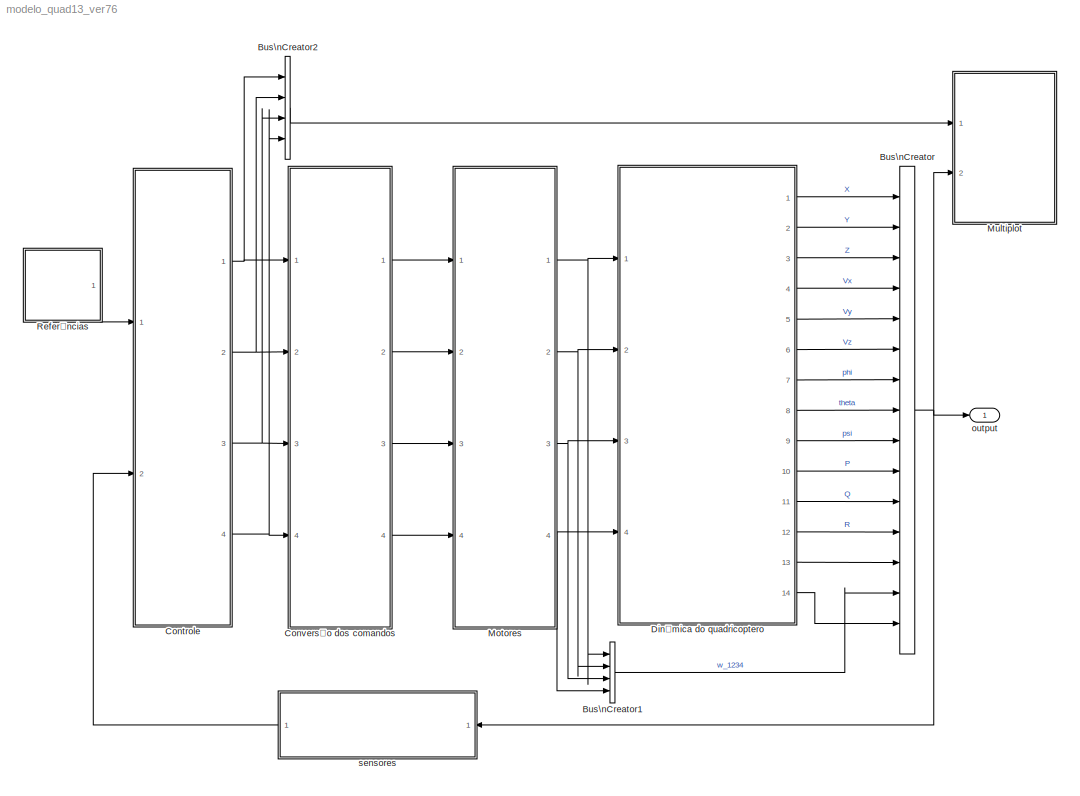
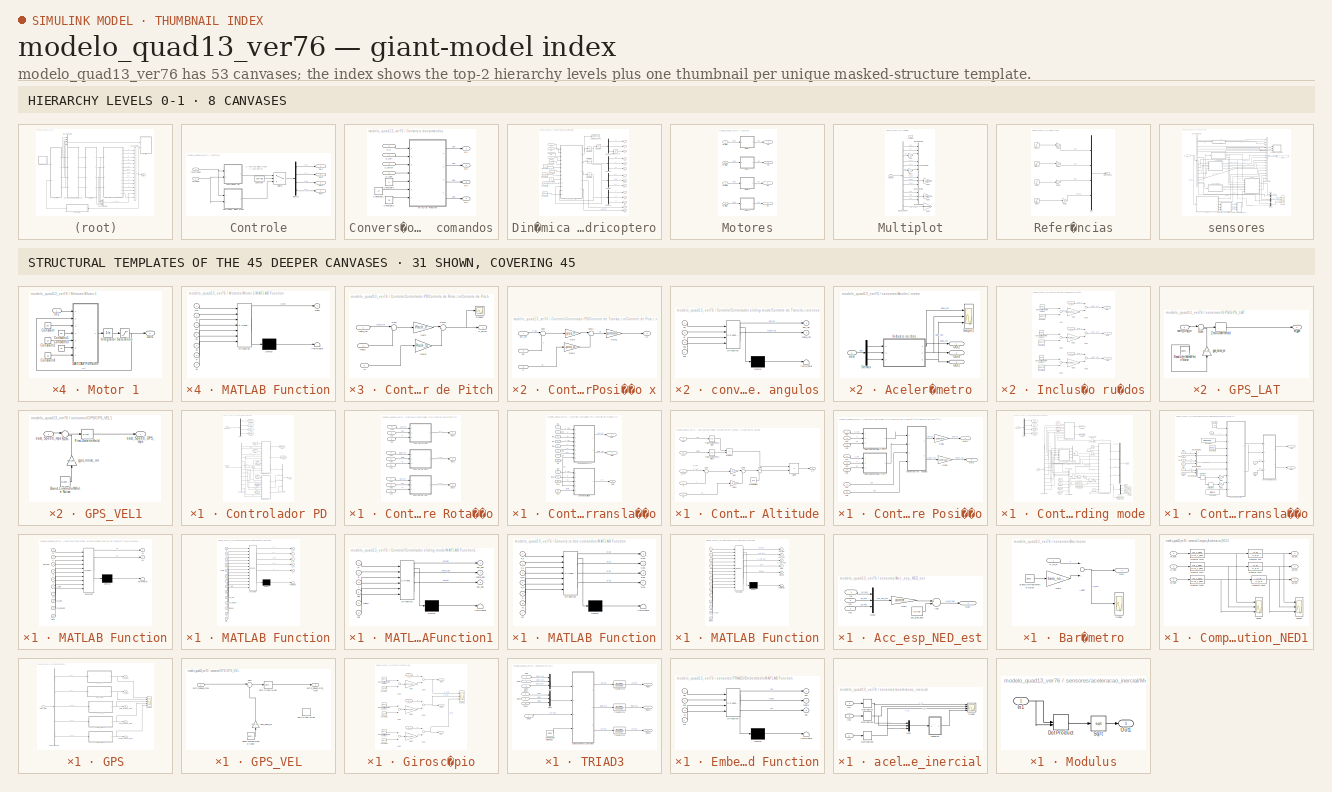
[diagram: thumbnail index - top-2 hierarchy levels (8 canvases) + 31 structural-template representatives of the remaining 45 canvases]
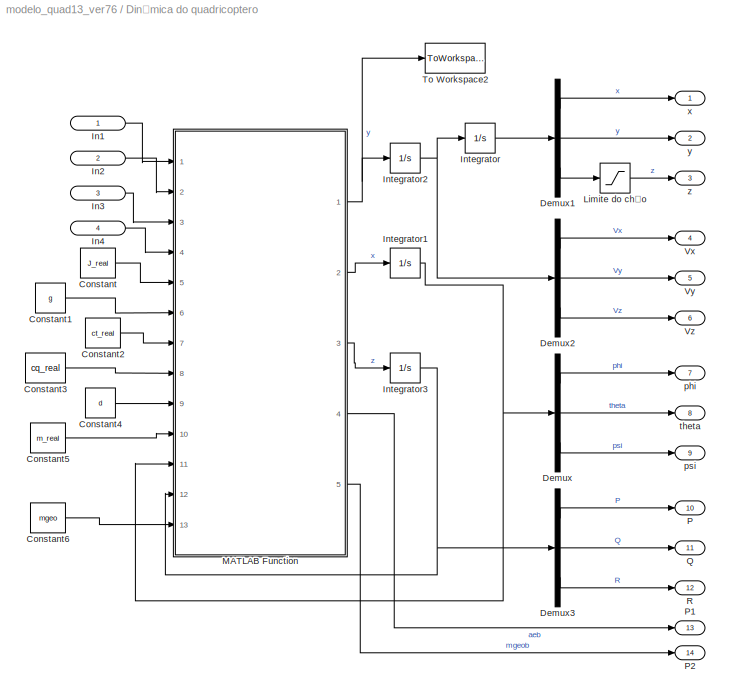
MODEL modelo_quad13_ver76
KIND model
BLOCK [BusCreator] Bus\nCreator
  DisplayOption = bar
  Inputs = 15
  Ports = [15, 1]
  SID = 190
BLOCK [BusCreator] Bus\nCreator1
  DisplayOption = bar
  Ports = [4, 1]
  SID = 10
BLOCK [BusCreator] Bus\nCreator2
  DisplayOption = bar
  Ports = [4, 1]
  SID = 2028
BLOCK [SubSystem] Controle
  Ports = [2, 4]
  RequestExecContextInheritance = off
  SID = 521
BLOCK [Constant] Controle/Constant
  SID = 631
  Value = controle
BLOCK [SubSystem] Controle/Controlador PD
  Ports = [2, 1]
  RequestExecContextInheritance = off
  SID = 621
BLOCK [BusCreator] Controle/Controlador PD/Bus\nCreator
  DisplayOption = bar
  Ports = [4, 1]
  SID = 628
BLOCK [BusSelector] Controle/Controlador PD/Bus\nSelector
  OutputSignals = X,Vx,Y,Vy,Z,Vz,phi_est,P,theta_est,Q,psi,R
  Ports = [1, 12]
  SID = 182
BLOCK [SubSystem] Controle/Controlador PD/Controle de Rotação
  Ports = [9, 3]
  RequestExecContextInheritance = off
  SID = 1341
BLOCK [SubSystem] Controle/Controlador PD/Controle de Rotação/Controle de Pitch
  Ports = [3, 1]
  RequestExecContextInheritance = off
  SID = 290
BLOCK [Gain] Controle/Controlador PD/Controle de Rotação/Controle de Pitch/Gain
  Gain = Pitch_P
  OutDataTypeStr = Inherit: Inherit via internal rule
  ParamDataTypeStr = Inherit: Inherit via internal rule
  SID = 932
  SaturateOnIntegerOverflow = off
BLOCK [Gain] Controle/Controlador PD/Controle de Rotação/Controle de Pitch/Gain1
  Gain = -Pitch_D
  OutDataTypeStr = Inherit: Inherit via internal rule
  ParamDataTypeStr = Inherit: Inherit via internal rule
  SID = 933
  SaturateOnIntegerOverflow = off
BLOCK [Inport] Controle/Controlador PD/Controle de Rotação/Controle de Pitch/Q
  IconDisplay = Signal name
  Port = 3
  SID = 293
BLOCK [Scope] Controle/Controlador PD/Controle de Rotação/Controle de Pitch/Scope3
  DataFormat = StructureWithTime
  Floating = off
  NumInputPorts = 1
  Ports = [1]
  SID = 294
  SampleTime = 0
  SaveName = ScopeData3
  ShowLegends = off
  YMax = 40
  YMin = 37.75
BLOCK [Sum] Controle/Controlador PD/Controle de Rotação/Controle de Pitch/Sum
  IconShape = round
  InputSameDT = off
  Inputs = |+-
  OutDataTypeStr = Inherit: Inherit via internal rule
  Ports = [2, 1]
  SID = 295
  SaturateOnIntegerOverflow = off
BLOCK [Sum] Controle/Controlador PD/Controle de Rotação/Controle de Pitch/Sum1
  IconShape = round
  InputSameDT = off
  Inputs = |++
  OutDataTypeStr = Inherit: Inherit via internal rule
  Ports = [2, 1]
  SID = 296
  SaturateOnIntegerOverflow = off
BLOCK [Outport] Controle/Controlador PD/Controle de Rotação/Controle de Pitch/U_pitch
  IconDisplay = Port number
  SID = 301
BLOCK [Inport] Controle/Controlador PD/Controle de Rotação/Controle de Pitch/theta
  IconDisplay = Signal name
  Port = 2
  SID = 292
BLOCK [Inport] Controle/Controlador PD/Controle de Rotação/Controle de Pitch/theta_ref
  IconDisplay = Signal name
  SID = 291
BLOCK [SubSystem] Controle/Controlador PD/Controle de Rotação/Controle de Roll
  Ports = [3, 1]
  RequestExecContextInheritance = off
  SID = 415
BLOCK [Gain] Controle/Controlador PD/Controle de Rotação/Controle de Roll/Gain
  Gain = Roll_P
  OutDataTypeStr = Inherit: Inherit via internal rule
  ParamDataTypeStr = Inherit: Inherit via internal rule
  SID = 929
  SaturateOnIntegerOverflow = off
BLOCK [Gain] Controle/Controlador PD/Controle de Rotação/Controle de Roll/Gain1
  Gain = -Roll_D
  OutDataTypeStr = Inherit: Inherit via internal rule
  ParamDataTypeStr = Inherit: Inherit via internal rule
  SID = 931
  SaturateOnIntegerOverflow = off
BLOCK [Inport] Controle/Controlador PD/Controle de Rotação/Controle de Roll/P
  IconDisplay = Signal name
  Port = 3
  SID = 418
BLOCK [Scope] Controle/Controlador PD/Controle de Rotação/Controle de Roll/Scope3
  DataFormat = StructureWithTime
  Floating = off
  NumInputPorts = 1
  Ports = [1]
  SID = 419
  SampleTime = 0
  SaveName = ScopeData3
  ShowLegends = off
  YMax = 2500
  YMin = -2500
  ZoomMode = xonly
BLOCK [Sum] Controle/Controlador PD/Controle de Rotação/Controle de Roll/Sum
  IconShape = round
  InputSameDT = off
  Inputs = |+-
  OutDataTypeStr = Inherit: Inherit via internal rule
  Ports = [2, 1]
  SID = 420
  SaturateOnIntegerOverflow = off
BLOCK [Sum] Controle/Controlador PD/Controle de Rotação/Controle de Roll/Sum1
  IconShape = round
  InputSameDT = off
  Inputs = |++
  OutDataTypeStr = Inherit: Inherit via internal rule
  Ports = [2, 1]
  SID = 930
  SaturateOnIntegerOverflow = off
BLOCK [Outport] Controle/Controlador PD/Controle de Rotação/Controle de Roll/U_roll
  IconDisplay = Port number
  SID = 424
BLOCK [Inport] Controle/Controlador PD/Controle de Rotação/Controle de Roll/phi
  IconDisplay = Signal name
  Port = 2
  SID = 417
BLOCK [Inport] Controle/Controlador PD/Controle de Rotação/Controle de Roll/phi_ref
  IconDisplay = Signal name
  SID = 416
BLOCK [SubSystem] Controle/Controlador PD/Controle de Rotação/Controle de Yaw
  Ports = [3, 1]
  RequestExecContextInheritance = off
  SID = 444
BLOCK [Gain] Controle/Controlador PD/Controle de Rotação/Controle de Yaw/Gain
  Gain = Yaw_P
  OutDataTypeStr = Inherit: Inherit via internal rule
  ParamDataTypeStr = Inherit: Inherit via internal rule
  SID = 934
  SaturateOnIntegerOverflow = off
BLOCK [Gain] Controle/Controlador PD/Controle de Rotação/Controle de Yaw/Gain1
  Gain = -Yaw_D
  OutDataTypeStr = Inherit: Inherit via internal rule
  ParamDataTypeStr = Inherit: Inherit via internal rule
  SID = 935
  SaturateOnIntegerOverflow = off
BLOCK [Inport] Controle/Controlador PD/Controle de Rotação/Controle de Yaw/R
  IconDisplay = Signal name
  Port = 3
  SID = 447
BLOCK [Scope] Controle/Controlador PD/Controle de Rotação/Controle de Yaw/Scope3
  DataFormat = StructureWithTime
  Floating = off
  NumInputPorts = 1
  Ports = [1]
  SID = 448
  SampleTime = 0
  SaveName = ScopeData3
  ShowLegends = off
  YMax = 40
  YMin = 37.75
BLOCK [Sum] Controle/Controlador PD/Controle de Rotação/Controle de Yaw/Sum
  IconShape = round
  InputSameDT = off
  Inputs = |+-
  OutDataTypeStr = Inherit: Inherit via internal rule
  Ports = [2, 1]
  SID = 449
  SaturateOnIntegerOverflow = off
BLOCK [Sum] Controle/Controlador PD/Controle de Rotação/Controle de Yaw/Sum1
  IconShape = round
  InputSameDT = off
  Inputs = |++
  OutDataTypeStr = Inherit: Inherit via internal rule
  Ports = [2, 1]
  SID = 450
  SaturateOnIntegerOverflow = off
BLOCK [Outport] Controle/Controlador PD/Controle de Rotação/Controle de Yaw/U_yaw
  IconDisplay = Port number
  SID = 453
BLOCK [Inport] Controle/Controlador PD/Controle de Rotação/Controle de Yaw/psi
  IconDisplay = Signal name
  Port = 2
  SID = 446
BLOCK [Inport] Controle/Controlador PD/Controle de Rotação/Controle de Yaw/psi_ref
  IconDisplay = Signal name
  SID = 445
BLOCK [Inport] Controle/Controlador PD/Controle de Rotação/In1
  IconDisplay = Signal name
  SID = 1342
BLOCK [Inport] Controle/Controlador PD/Controle de Rotação/In2
  IconDisplay = Signal name
  Port = 2
  SID = 1343
BLOCK [Inport] Controle/Controlador PD/Controle de Rotação/In3
  IconDisplay = Signal name
  Port = 3
  SID = 1344
BLOCK [Inport] Controle/Controlador PD/Controle de Rotação/In4
  IconDisplay = Signal name
  Port = 4
  SID = 1345
BLOCK [Inport] Controle/Controlador PD/Controle de Rotação/In5
  IconDisplay = Signal name
  Port = 5
  SID = 1371
BLOCK [Inport] Controle/Controlador PD/Controle de Rotação/In6
  IconDisplay = Signal name
  Port = 6
  SID = 1373
BLOCK [Inport] Controle/Controlador PD/Controle de Rotação/In7
  IconDisplay = Signal name
  Port = 7
  SID = 1374
BLOCK [Inport] Controle/Controlador PD/Controle de Rotação/In8
  IconDisplay = Signal name
  Port = 8
  SID = 1375
BLOCK [Inport] Controle/Controlador PD/Controle de Rotação/In9
  IconDisplay = Signal name
  Port = 9
  SID = 1376
BLOCK [Outport] Controle/Controlador PD/Controle de Rotação/Out1
  IconDisplay = Signal name
  SID = 1351
BLOCK [Outport] Controle/Controlador PD/Controle de Rotação/Out2
  IconDisplay = Signal name
  Port = 2
  SID = 1352
BLOCK [Outport] Controle/Controlador PD/Controle de Rotação/Out3
  IconDisplay = Signal name
  Port = 3
  SID = 1353
BLOCK [SubSystem] Controle/Controlador PD/Controle de Translação
  Ports = [12, 3]
  RequestExecContextInheritance = off
  SID = 1354
BLOCK [SubSystem] Controle/Controlador PD/Controle de Translação/Controle de Altitude
  Ports = [5, 1]
  RequestExecContextInheritance = off
  SID = 912
BLOCK [Product] Controle/Controlador PD/Controle de Translação/Controle de Altitude/Divide
  InputSameDT = off
  Inputs = /*
  OutDataTypeStr = Inherit: Inherit via internal rule
  Ports = [2, 1]
  RndMeth = Floor
  SID = 1142
  SaturateOnIntegerOverflow = off
BLOCK [Gain] Controle/Controlador PD/Controle de Translação/Controle de Altitude/Gain
  Gain = Z_P
  OutDataTypeStr = Inherit: Inherit via internal rule
  ParamDataTypeStr = Inherit: Inherit via internal rule
  SID = 926
  SaturateOnIntegerOverflow = off
BLOCK [Gain] Controle/Controlador PD/Controle de Translação/Controle de Altitude/Gain1
  Gain = -Z_D
  OutDataTypeStr = Inherit: Inherit via internal rule
  ParamDataTypeStr = Inherit: Inherit via internal rule
  SID = 927
  SaturateOnIntegerOverflow = off
BLOCK [Product] Controle/Controlador PD/Controle de Translação/Controle de Altitude/Product
  InputSameDT = off
  OutDataTypeStr = Inherit: Inherit via internal rule
  Ports = [2, 1]
  RndMeth = Floor
  SID = 1141
  SaturateOnIntegerOverflow = off
BLOCK [Sum] Controle/Controlador PD/Controle de Translação/Controle de Altitude/Sum
  IconShape = round
  InputSameDT = off
  Inputs = |+-
  OutDataTypeStr = Inherit: Inherit via internal rule
  Ports = [2, 1]
  SID = 919
  SaturateOnIntegerOverflow = off
BLOCK [Sum] Controle/Controlador PD/Controle de Translação/Controle de Altitude/Sum1
  IconShape = round
  InputSameDT = off
  Inputs = |++
  OutDataTypeStr = Inherit: Inherit via internal rule
  Ports = [2, 1]
  SID = 928
  SaturateOnIntegerOverflow = off
BLOCK [Sum] Controle/Controlador PD/Controle de Translação/Controle de Altitude/Sum2
  IconShape = round
  InputSameDT = off
  Inputs = |++
  OutDataTypeStr = Inherit: Inherit via internal rule
  Ports = [2, 1]
  SID = 921
  SaturateOnIntegerOverflow = off
BLOCK [Trigonometry] Controle/Controlador PD/Controle de Translação/Controle de Altitude/Trigonometric\nFunction
  Operator = cos
  Ports = [1, 1]
  SID = 1144
BLOCK [Trigonometry] Controle/Controlador PD/Controle de Translação/Controle de Altitude/Trigonometric\nFunction1
  Operator = cos
  Ports = [1, 1]
  SID = 1145
BLOCK [Outport] Controle/Controlador PD/Controle de Translação/Controle de Altitude/U_T
  IconDisplay = Port number
  SID = 925
BLOCK [Inport] Controle/Controlador PD/Controle de Translação/Controle de Altitude/Vz
  IconDisplay = Signal name
  Port = 3
  SID = 915
BLOCK [Inport] Controle/Controlador PD/Controle de Translação/Controle de Altitude/Vz1
  IconDisplay = Signal name
  Port = 4
  SID = 1143
BLOCK [Inport] Controle/Controlador PD/Controle de Translação/Controle de Altitude/Vz2
  IconDisplay = Signal name
  Port = 5
  SID = 1146
BLOCK [Inport] Controle/Controlador PD/Controle de Translação/Controle de Altitude/Z
  IconDisplay = Signal name
  Port = 2
  SID = 914
BLOCK [Inport] Controle/Controlador PD/Controle de Translação/Controle de Altitude/Z_ref
  IconDisplay = Signal name
  SID = 913
BLOCK [Constant] Controle/Controlador PD/Controle de Translação/Controle de Altitude/gravity offset
  SID = 946
  Value = m*g
BLOCK [SubSystem] Controle/Controlador PD/Controle de Translação/Controle de Posição
  Ports = [8, 2]
  RequestExecContextInheritance = off
  SID = 1321
BLOCK [SubSystem] Controle/Controlador PD/Controle de Translação/Controle de Posição/Controle de Posição x
  Ports = [3, 1]
  RequestExecContextInheritance = off
  SID = 1301
BLOCK [Gain] Controle/Controlador PD/Controle de Translação/Controle de Posição/Controle de Posição x/Gain
  Gain = pos_P
  OutDataTypeStr = Inherit: Inherit via internal rule
  ParamDataTypeStr = Inherit: Inherit via internal rule
  SID = 1305
  SaturateOnIntegerOverflow = off
BLOCK [Gain] Controle/Controlador PD/Controle de Translação/Controle de Posição/Controle de Posição x/Gain1
  Gain = -pos_D
  OutDataTypeStr = Inherit: Inherit via internal rule
  ParamDataTypeStr = Inherit: Inherit via internal rule
  SID = 1306
  SaturateOnIntegerOverflow = off
BLOCK [Gain] Controle/Controlador PD/Controle de Translação/Controle de Posição/Controle de Posição x/Gain2
  Gain = controle
  OutDataTypeStr = Inherit: Inherit via internal rule
  ParamDataTypeStr = Inherit: Inherit via internal rule
  SID = 1850
  SaturateOnIntegerOverflow = off
BLOCK [Inport] Controle/Controlador PD/Controle de Translação/Controle de Posição/Controle de Posição x/P
  IconDisplay = Signal name
  Port = 3
  SID = 1304
BLOCK [Sum] Controle/Controlador PD/Controle de Translação/Controle de Posição/Controle de Posição x/Sum
  IconShape = round
  InputSameDT = off
  Inputs = |+-
  OutDataTypeStr = Inherit: Inherit via internal rule
  Ports = [2, 1]
  SID = 1308
  SaturateOnIntegerOverflow = off
BLOCK [Sum] Controle/Controlador PD/Controle de Translação/Controle de Posição/Controle de Posição x/Sum1
  IconShape = round
  InputSameDT = off
  Inputs = |++
  OutDataTypeStr = Inherit: Inherit via internal rule
  Ports = [2, 1]
  SID = 1309
  SaturateOnIntegerOverflow = off
BLOCK [Outport] Controle/Controlador PD/Controle de Translação/Controle de Posição/Controle de Posição x/Ux
  IconDisplay = Signal name
  SID = 1310
BLOCK [Inport] Controle/Controlador PD/Controle de Translação/Controle de Posição/Controle de Posição x/phi
  IconDisplay = Signal name
  Port = 2
  SID = 1303
BLOCK [Inport] Controle/Controlador PD/Controle de Translação/Controle de Posição/Controle de Posição x/phi_ref
  IconDisplay = Signal name
  SID = 1302
BLOCK [SubSystem] Controle/Controlador PD/Controle de Translação/Controle de Posição/Controle de Posição y
  Ports = [3, 1]
  RequestExecContextInheritance = off
  SID = 1311
BLOCK [Gain] Controle/Controlador PD/Controle de Translação/Controle de Posição/Controle de Posição y/Gain
  Gain = pos_P
  OutDataTypeStr = Inherit: Inherit via internal rule
  ParamDataTypeStr = Inherit: Inherit via internal rule
  SID = 1315
  SaturateOnIntegerOverflow = off
BLOCK [Gain] Controle/Controlador PD/Controle de Translação/Controle de Posição/Controle de Posição y/Gain1
  Gain = -pos_D
  OutDataTypeStr = Inherit: Inherit via internal rule
  ParamDataTypeStr = Inherit: Inherit via internal rule
  SID = 1316
  SaturateOnIntegerOverflow = off
BLOCK [Gain] Controle/Controlador PD/Controle de Translação/Controle de Posição/Controle de Posição y/Gain2
  Gain = controle
  OutDataTypeStr = Inherit: Inherit via internal rule
  ParamDataTypeStr = Inherit: Inherit via internal rule
  SID = 1851
  SaturateOnIntegerOverflow = off
BLOCK [Inport] Controle/Controlador PD/Controle de Translação/Controle de Posição/Controle de Posição y/P
  IconDisplay = Signal name
  Port = 3
  SID = 1314
BLOCK [Sum] Controle/Controlador PD/Controle de Translação/Controle de Posição/Controle de Posição y/Sum
  IconShape = round
  InputSameDT = off
  Inputs = |+-
  OutDataTypeStr = Inherit: Inherit via internal rule
  Ports = [2, 1]
  SID = 1318
  SaturateOnIntegerOverflow = off
BLOCK [Sum] Controle/Controlador PD/Controle de Translação/Controle de Posição/Controle de Posição y/Sum1
  IconShape = round
  InputSameDT = off
  Inputs = |++
  OutDataTypeStr = Inherit: Inherit via internal rule
  Ports = [2, 1]
  SID = 1319
  SaturateOnIntegerOverflow = off
BLOCK [Outport] Controle/Controlador PD/Controle de Translação/Controle de Posição/Controle de Posição y/Ux
  IconDisplay = Signal name
  SID = 1320
BLOCK [Inport] Controle/Controlador PD/Controle de Translação/Controle de Posição/Controle de Posição y/phi
  IconDisplay = Signal name
  Port = 2
  SID = 1313
BLOCK [Inport] Controle/Controlador PD/Controle de Translação/Controle de Posição/Controle de Posição y/phi_ref
  IconDisplay = Signal name
  SID = 1312
BLOCK [Gain] Controle/Controlador PD/Controle de Translação/Controle de Posição/Gain1
  Gain = controle
  OutDataTypeStr = Inherit: Inherit via internal rule
  ParamDataTypeStr = Inherit: Inherit via internal rule
  SID = 1848
  SaturateOnIntegerOverflow = off
BLOCK [Gain] Controle/Controlador PD/Controle de Translação/Controle de Posição/Gain2
  Gain = controle
  OutDataTypeStr = Inherit: Inherit via internal rule
  ParamDataTypeStr = Inherit: Inherit via internal rule
  SID = 1849
  SaturateOnIntegerOverflow = off
BLOCK [Inport] Controle/Controlador PD/Controle de Translação/Controle de Posição/In1
  IconDisplay = Signal name
  SID = 1322
BLOCK [Inport] Controle/Controlador PD/Controle de Translação/Controle de Posição/In2
  IconDisplay = Signal name
  Port = 2
  SID = 1323
BLOCK [Inport] Controle/Controlador PD/Controle de Translação/Controle de Posição/In3
  IconDisplay = Signal name
  Port = 3
  SID = 1324
BLOCK [Inport] Controle/Controlador PD/Controle de Translação/Controle de Posição/In4
  IconDisplay = Signal name
  Port = 4
  SID = 1325
BLOCK [Inport] Controle/Controlador PD/Controle de Translação/Controle de Posição/In5
  IconDisplay = Signal name
  Port = 5
  SID = 1326
BLOCK [Inport] Controle/Controlador PD/Controle de Translação/Controle de Posição/In6
  IconDisplay = Signal name
  Port = 6
  SID = 1327
BLOCK [Inport] Controle/Controlador PD/Controle de Translação/Controle de Posição/In7
  IconDisplay = Signal name
  Port = 7
  SID = 1330
BLOCK [Inport] Controle/Controlador PD/Controle de Translação/Controle de Posição/In8
  IconDisplay = Signal name
  Port = 8
  SID = 1331
BLOCK [Outport] Controle/Controlador PD/Controle de Translação/Controle de Posição/Out1
  IconDisplay = Signal name
  SID = 1328
BLOCK [Outport] Controle/Controlador PD/Controle de Translação/Controle de Posição/Out2
  IconDisplay = Signal name
  Port = 2
  SID = 1329
BLOCK [SubSystem] Controle/Controlador PD/Controle de Translação/Controle de Posição/conversao ref. angulos
  ErrorFcn = Stateflow.Translate.translate
  PermitHierarchicalResolution = ExplicitOnly
  Ports = [4, 2]
  RequestExecContextInheritance = off
  SFBlockType = MATLAB Function
  SID = 1332
  TreatAsAtomicUnit = on
BLOCK [Demux] Controle/Controlador PD/Controle de Translação/Controle de Posição/conversao ref. angulos/ Demux 
  Outputs = 1
  Ports = [1, 1]
  SID = 1332::2181
BLOCK [S-Function] Controle/Controlador PD/Controle de Translação/Controle de Posição/conversao ref. angulos/ SFunction 
  EnableBusSupport = on
  FunctionName = sf_sfun
  PortCounts = [4 3]
  Ports = [4, 3]
  SID = 1332::2180
  Tag = Stateflow S-Function modelo_quad13_ver76 7
BLOCK [Terminator] Controle/Controlador PD/Controle de Translação/Controle de Posição/conversao ref. angulos/ Terminator 
  SID = 1332::2182
BLOCK [Inport] Controle/Controlador PD/Controle de Translação/Controle de Posição/conversao ref. angulos/phi
  IconDisplay = Port number
  Port = 4
  SID = 1332::23
BLOCK [Outport] Controle/Controlador PD/Controle de Translação/Controle de Posição/conversao ref. angulos/phi_ref
  IconDisplay = Port number
  SID = 1332::28
BLOCK [Inport] Controle/Controlador PD/Controle de Translação/Controle de Posição/conversao ref. angulos/psi
  IconDisplay = Port number
  Port = 3
  SID = 1332::22
BLOCK [Outport] Controle/Controlador PD/Controle de Translação/Controle de Posição/conversao ref. angulos/theta_ref
  IconDisplay = Port number
  Port = 2
  SID = 1332::29
BLOCK [Inport] Controle/Controlador PD/Controle de Translação/Controle de Posição/conversao ref. angulos/ux
  IconDisplay = Port number
  SID = 1332::27
BLOCK [Inport] Controle/Controlador PD/Controle de Translação/Controle de Posição/conversao ref. angulos/uy
  IconDisplay = Port number
  Port = 2
  SID = 1332::1
BLOCK [Inport] Controle/Controlador PD/Controle de Translação/In1
  IconDisplay = Signal name
  SID = 1355
BLOCK [Inport] Controle/Controlador PD/Controle de Translação/In10
  IconDisplay = Signal name
  Port = 10
  SID = 1385
BLOCK [Inport] Controle/Controlador PD/Controle de Translação/In11
  IconDisplay = Signal name
  Port = 11
  SID = 1386
BLOCK [Inport] Controle/Controlador PD/Controle de Translação/In13
  IconDisplay = Signal name
  Port = 12
  SID = 1388
BLOCK [Inport] Controle/Controlador PD/Controle de Translação/In2
  IconDisplay = Signal name
  Port = 2
  SID = 1377
BLOCK [Inport] Controle/Controlador PD/Controle de Translação/In3
  IconDisplay = Signal name
  Port = 3
  SID = 1378
BLOCK [Inport] Controle/Controlador PD/Controle de Translação/In4
  IconDisplay = Signal name
  Port = 4
  SID = 1379
BLOCK [Inport] Controle/Controlador PD/Controle de Translação/In5
  IconDisplay = Signal name
  Port = 5
  SID = 1380
BLOCK [Inport] Controle/Controlador PD/Controle de Translação/In6
  IconDisplay = Signal name
  Port = 6
  SID = 1381
BLOCK [Inport] Controle/Controlador PD/Controle de Translação/In7
  IconDisplay = Signal name
  Port = 7
  SID = 1382
BLOCK [Inport] Controle/Controlador PD/Controle de Translação/In8
  IconDisplay = Signal name
  Port = 8
  SID = 1383
BLOCK [Inport] Controle/Controlador PD/Controle de Translação/In9
  IconDisplay = Signal name
  Port = 9
  SID = 1384
BLOCK [Outport] Controle/Controlador PD/Controle de Translação/Out1
  IconDisplay = Signal name
  SID = 1368
BLOCK [Outport] Controle/Controlador PD/Controle de Translação/Out2
  IconDisplay = Signal name
  Port = 2
  SID = 1369
BLOCK [Outport] Controle/Controlador PD/Controle de Translação/Out3
  IconDisplay = Signal name
  Port = 3
  SID = 1370
BLOCK [Demux] Controle/Controlador PD/Demux
  DisplayOption = bar
  Ports = [1, 4]
  SID = 535
BLOCK [Inport] Controle/Controlador PD/Estados
  IconDisplay = Port number
  Port = 2
  SID = 623
BLOCK [From] Controle/Controlador PD/From
  GotoTag = ref_Z
  SID = 428
BLOCK [From] Controle/Controlador PD/From1
  GotoTag = ref_theta
  SID = 430
BLOCK [From] Controle/Controlador PD/From2
  GotoTag = ref_psi
  SID = 455
BLOCK [From] Controle/Controlador PD/From3
  GotoTag = ref_phi
  SID = 1390
BLOCK [From] Controle/Controlador PD/From4
  GotoTag = ref_X
  SID = 1339
BLOCK [From] Controle/Controlador PD/From5
  GotoTag = ref_Y
  SID = 1340
BLOCK [Goto] Controle/Controlador PD/Goto1
  GotoTag = ref_Z
  SID = 427
BLOCK [Goto] Controle/Controlador PD/Goto2
  GotoTag = ref_X
  SID = 1333
BLOCK [Goto] Controle/Controlador PD/Goto3
  GotoTag = ref_Y
  SID = 1334
BLOCK [Goto] Controle/Controlador PD/Goto4
  GotoTag = ref_psi
  SID = 460
BLOCK [Goto] Controle/Controlador PD/Goto5
  GotoTag = ref_phi
  SID = 608
BLOCK [Goto] Controle/Controlador PD/Goto6
  GotoTag = ref_theta
  SID = 609
BLOCK [Outport] Controle/Controlador PD/Out1
  IconDisplay = Signal name
  SID = 629
BLOCK [Inport] Controle/Controlador PD/Referências
  IconDisplay = Port number
  SID = 622
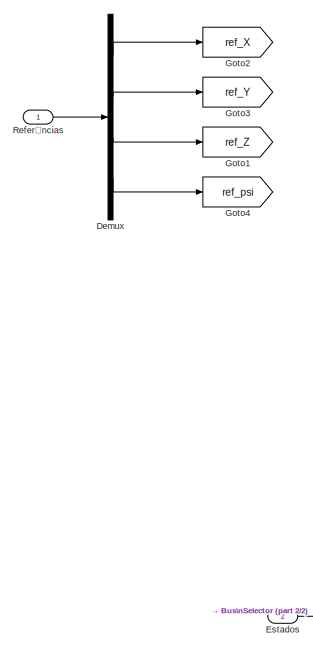
[diagram: Controle/Controlador sliding mode - part 1/2, middle left region]
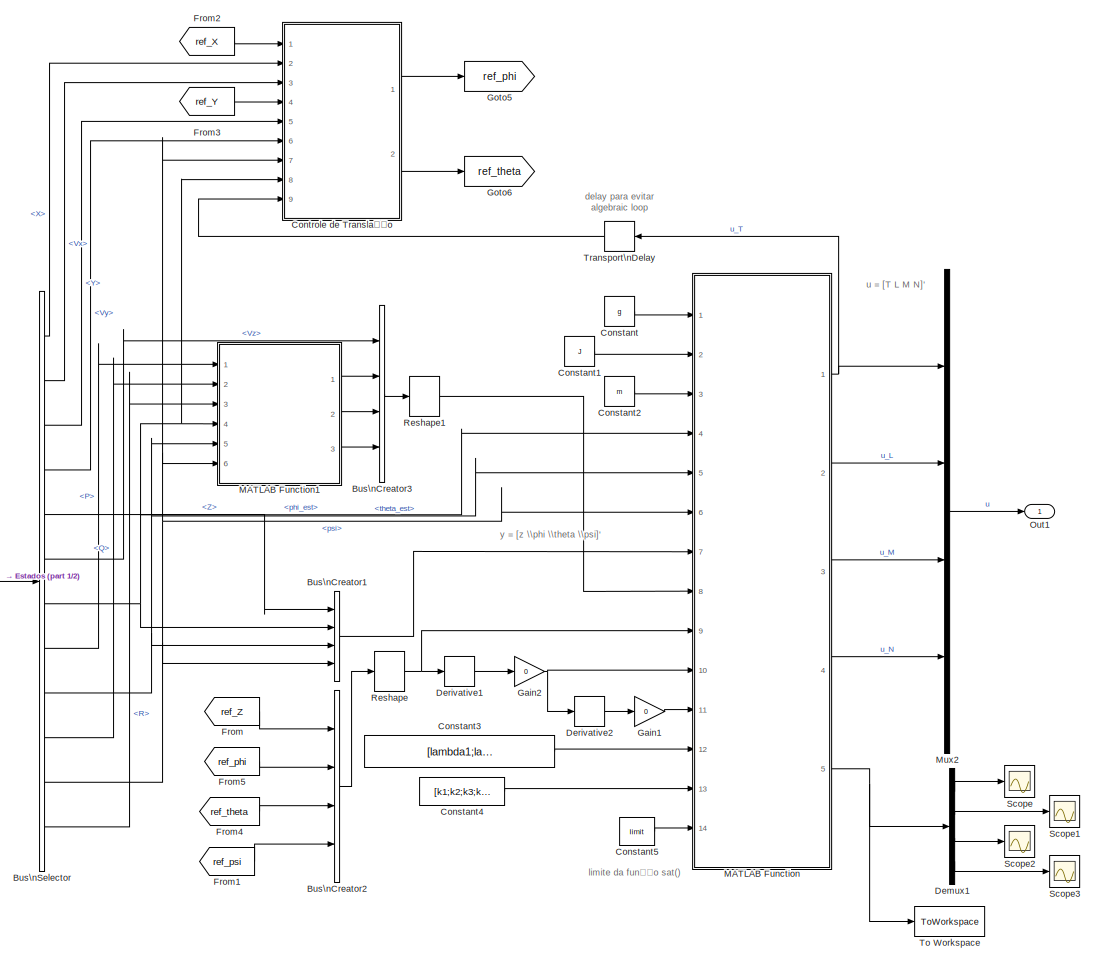
[diagram: Controle/Controlador sliding mode - part 2/2, most of the canvas]
BLOCK [SubSystem] Controle/Controlador sliding mode
  Ports = [2, 1]
  RequestExecContextInheritance = off
  SID = 749
BLOCK [BusCreator] Controle/Controlador sliding mode/Bus\nCreator1
  DisplayOption = bar
  Ports = [4, 1]
  SID = 1967
BLOCK [BusCreator] Controle/Controlador sliding mode/Bus\nCreator2
  DisplayOption = bar
  Ports = [4, 1]
  SID = 1970
BLOCK [BusCreator] Controle/Controlador sliding mode/Bus\nCreator3
  DisplayOption = bar
  Ports = [4, 1]
  SID = 2007
BLOCK [BusSelector] Controle/Controlador sliding mode/Bus\nSelector
  OutputSignals = X,Vx,Y,Vy,Z,Vz,phi_est,P,theta_est,Q,psi,R
  Ports = [1, 12]
  SID = 1461
BLOCK [Constant] Controle/Controlador sliding mode/Constant
  SID = 1799
  Value = g
BLOCK [Constant] Controle/Controlador sliding mode/Constant1
  SID = 1800
  Value = J
BLOCK [Constant] Controle/Controlador sliding mode/Constant2
  SID = 1801
  Value = m
BLOCK [Constant] Controle/Controlador sliding mode/Constant3
  SID = 1807
  Value = [lambda1;lambda2;lambda3;lambda4]
BLOCK [Constant] Controle/Controlador sliding mode/Constant4
  SID = 1835
  Value = [k1;k2;k3;k4]
BLOCK [Constant] Controle/Controlador sliding mode/Constant5
  SID = 2004
  Value = limit
BLOCK [SubSystem] Controle/Controlador sliding mode/Controle de Translação
  Ports = [9, 2]
  RequestExecContextInheritance = off
  SID = 1887
BLOCK [BusCreator] Controle/Controlador sliding mode/Controle de Translação/Bus\nCreator1
  DisplayOption = bar
  Inputs = 2
  Ports = [2, 1]
  SID = 1990
BLOCK [BusCreator] Controle/Controlador sliding mode/Controle de Translação/Bus\nCreator2
  DisplayOption = bar
  Inputs = 2
  Ports = [2, 1]
  SID = 1992
BLOCK [BusCreator] Controle/Controlador sliding mode/Controle de Translação/Bus\nCreator3
  DisplayOption = bar
  Inputs = 2
  Ports = [2, 1]
  SID = 1993
BLOCK [Constant] Controle/Controlador sliding mode/Controle de Translação/Constant
  SID = 1984
  Value = m
BLOCK [Constant] Controle/Controlador sliding mode/Controle de Translação/Constant1
  SID = 1986
  Value = [lambda5;lambda6]
BLOCK [Constant] Controle/Controlador sliding mode/Controle de Translação/Constant2
  SID = 1987
  Value = [k5;k6]
BLOCK [Constant] Controle/Controlador sliding mode/Controle de Translação/Constant3
  SID = 2005
  Value = limit_pos
BLOCK [Derivative] Controle/Controlador sliding mode/Controle de Translação/Derivative
  SID = 1991
BLOCK [Derivative] Controle/Controlador sliding mode/Controle de Translação/Derivative1
  SID = 1994
BLOCK [Gain] Controle/Controlador sliding mode/Controle de Translação/Gain
  Gain = 0
  OutDataTypeStr = Inherit: Inherit via internal rule
  ParamDataTypeStr = Inherit: Inherit via internal rule
  SID = 1995
  SaturateOnIntegerOverflow = off
BLOCK [Gain] Controle/Controlador sliding mode/Controle de Translação/Gain1
  Gain = 0
  OutDataTypeStr = Inherit: Inherit via internal rule
  ParamDataTypeStr = Inherit: Inherit via internal rule
  SID = 1996
  SaturateOnIntegerOverflow = off
BLOCK [Inport] Controle/Controlador sliding mode/Controle de Translação/In1
  IconDisplay = Signal name
  SID = 1888
BLOCK [Inport] Controle/Controlador sliding mode/Controle de Translação/In2
  IconDisplay = Signal name
  Port = 2
  SID = 1889
BLOCK [Inport] Controle/Controlador sliding mode/Controle de Translação/In3
  IconDisplay = Signal name
  Port = 3
  SID = 1890
BLOCK [Inport] Controle/Controlador sliding mode/Controle de Translação/In4
  IconDisplay = Signal name
  Port = 4
  SID = 1891
BLOCK [Inport] Controle/Controlador sliding mode/Controle de Translação/In5
  IconDisplay = Signal name
  Port = 5
  SID = 1892
BLOCK [Inport] Controle/Controlador sliding mode/Controle de Translação/In6
  IconDisplay = Signal name
  Port = 6
  SID = 1893
BLOCK [Inport] Controle/Controlador sliding mode/Controle de Translação/In7
  IconDisplay = Signal name
  Port = 7
  SID = 1894
BLOCK [Inport] Controle/Controlador sliding mode/Controle de Translação/In8
  IconDisplay = Signal name
  Port = 8
  SID = 1895
BLOCK [Inport] Controle/Controlador sliding mode/Controle de Translação/In9
  IconDisplay = Signal name
  Port = 9
  SID = 1997
BLOCK [SubSystem] Controle/Controlador sliding mode/Controle de Translação/MATLAB Function
  ErrorFcn = Stateflow.Translate.translate
  PermitHierarchicalResolution = ExplicitOnly
  Ports = [10, 2]
  RequestExecContextInheritance = off
  SFBlockType = MATLAB Function
  SID = 1983
  TreatAsAtomicUnit = on
BLOCK [Demux] Controle/Controlador sliding mode/Controle de Translação/MATLAB Function/ Demux 
  Outputs = 1
  Ports = [1, 1]
  SID = 1983::2181
BLOCK [S-Function] Controle/Controlador sliding mode/Controle de Translação/MATLAB Function/ SFunction 
  EnableBusSupport = on
  FunctionName = sf_sfun
  PortCounts = [10 3]
  Ports = [10, 3]
  SID = 1983::2180
  Tag = Stateflow S-Function modelo_quad13_ver76 11
BLOCK [Terminator] Controle/Controlador sliding mode/Controle de Translação/MATLAB Function/ Terminator 
  SID = 1983::2182
BLOCK [Inport] Controle/Controlador sliding mode/Controle de Translação/MATLAB Function/T
  IconDisplay = Port number
  Port = 2
  SID = 1983::21
BLOCK [Inport] Controle/Controlador sliding mode/Controle de Translação/MATLAB Function/k
  IconDisplay = Port number
  Port = 4
  SID = 1983::23
BLOCK [Inport] Controle/Controlador sliding mode/Controle de Translação/MATLAB Function/lambda
  IconDisplay = Port number
  Port = 3
  SID = 1983::22
BLOCK [Inport] Controle/Controlador sliding mode/Controle de Translação/MATLAB Function/limit
  IconDisplay = Port number
  Port = 10
  SID = 1983::31
BLOCK [Inport] Controle/Controlador sliding mode/Controle de Translação/MATLAB Function/m
  IconDisplay = Port number
  SID = 1983::1
BLOCK [Outport] Controle/Controlador sliding mode/Controle de Translação/MATLAB Function/ux
  IconDisplay = Port number
  SID = 1983::29
BLOCK [Outport] Controle/Controlador sliding mode/Controle de Translação/MATLAB Function/uy
  IconDisplay = Port number
  Port = 2
  SID = 1983::30
BLOCK [Inport] Controle/Controlador sliding mode/Controle de Translação/MATLAB Function/y
  IconDisplay = Port number
  Port = 5
  SID = 1983::24
BLOCK [Inport] Controle/Controlador sliding mode/Controle de Translação/MATLAB Function/y_dot
  IconDisplay = Port number
  Port = 6
  SID = 1983::25
BLOCK [Inport] Controle/Controlador sliding mode/Controle de Translação/MATLAB Function/yd
  IconDisplay = Port number
  Port = 7
  SID = 1983::26
BLOCK [Inport] Controle/Controlador sliding mode/Controle de Translação/MATLAB Function/yd_dot
  IconDisplay = Port number
  Port = 8
  SID = 1983::27
BLOCK [Inport] Controle/Controlador sliding mode/Controle de Translação/MATLAB Function/yd_dotdot
  IconDisplay = Port number
  Port = 9
  SID = 1983::28
BLOCK [Outport] Controle/Controlador sliding mode/Controle de Translação/Out1
  IconDisplay = Signal name
  SID = 1952
BLOCK [Outport] Controle/Controlador sliding mode/Controle de Translação/Out2
  IconDisplay = Signal name
  Port = 2
  SID = 1953
BLOCK [SubSystem] Controle/Controlador sliding mode/Controle de Translação/conversao ref. angulos
  ErrorFcn = Stateflow.Translate.translate
  PermitHierarchicalResolution = ExplicitOnly
  Ports = [4, 2]
  RequestExecContextInheritance = off
  SFBlockType = MATLAB Function
  SID = 1949
  TreatAsAtomicUnit = on
BLOCK [Demux] Controle/Controlador sliding mode/Controle de Translação/conversao ref. angulos/ Demux 
  Outputs = 1
  Ports = [1, 1]
  SID = 1949::2181
BLOCK [S-Function] Controle/Controlador sliding mode/Controle de Translação/conversao ref. angulos/ SFunction 
  EnableBusSupport = on
  FunctionName = sf_sfun
  PortCounts = [4 3]
  Ports = [4, 3]
  SID = 1949::2180
  Tag = Stateflow S-Function modelo_quad13_ver76 10
BLOCK [Terminator] Controle/Controlador sliding mode/Controle de Translação/conversao ref. angulos/ Terminator 
  SID = 1949::2182
BLOCK [Inport] Controle/Controlador sliding mode/Controle de Translação/conversao ref. angulos/phi
  IconDisplay = Port number
  Port = 4
  SID = 1949::23
BLOCK [Outport] Controle/Controlador sliding mode/Controle de Translação/conversao ref. angulos/phi_ref
  IconDisplay = Port number
  SID = 1949::28
BLOCK [Inport] Controle/Controlador sliding mode/Controle de Translação/conversao ref. angulos/psi
  IconDisplay = Port number
  Port = 3
  SID = 1949::22
BLOCK [Outport] Controle/Controlador sliding mode/Controle de Translação/conversao ref. angulos/theta_ref
  IconDisplay = Port number
  Port = 2
  SID = 1949::29
BLOCK [Inport] Controle/Controlador sliding mode/Controle de Translação/conversao ref. angulos/ux
  IconDisplay = Port number
  SID = 1949::27
BLOCK [Inport] Controle/Controlador sliding mode/Controle de Translação/conversao ref. angulos/uy
  IconDisplay = Port number
  Port = 2
  SID = 1949::1
BLOCK [Demux] Controle/Controlador sliding mode/Demux
  DisplayOption = bar
  Ports = [1, 4]
  SID = 1572
BLOCK [Demux] Controle/Controlador sliding mode/Demux1
  DisplayOption = bar
  Ports = [1, 4]
  SID = 2176
BLOCK [Derivative] Controle/Controlador sliding mode/Derivative1
  SID = 1806
BLOCK [Derivative] Controle/Controlador sliding mode/Derivative2
  SID = 1814
BLOCK [Inport] Controle/Controlador sliding mode/Estados
  IconDisplay = Port number
  Port = 2
  SID = 1459
BLOCK [From] Controle/Controlador sliding mode/From
  GotoTag = ref_Z
  SID = 1812
BLOCK [From] Controle/Controlador sliding mode/From1
  GotoTag = ref_psi
  SID = 1813
BLOCK [From] Controle/Controlador sliding mode/From2
  GotoTag = ref_X
  SID = 1957
BLOCK [From] Controle/Controlador sliding mode/From3
  GotoTag = ref_Y
  SID = 1958
BLOCK [From] Controle/Controlador sliding mode/From4
  GotoTag = ref_theta
  SID = 1959
BLOCK [From] Controle/Controlador sliding mode/From5
  GotoTag = ref_phi
  SID = 1960
BLOCK [Gain] Controle/Controlador sliding mode/Gain1
  Gain = 0
  OutDataTypeStr = Inherit: Inherit via internal rule
  ParamDataTypeStr = Inherit: Inherit via internal rule
  SID = 1878
  SaturateOnIntegerOverflow = off
BLOCK [Gain] Controle/Controlador sliding mode/Gain2
  Gain = 0
  OutDataTypeStr = Inherit: Inherit via internal rule
  ParamDataTypeStr = Inherit: Inherit via internal rule
  SID = 1879
  SaturateOnIntegerOverflow = off
BLOCK [Goto] Controle/Controlador sliding mode/Goto1
  GotoTag = ref_Z
  SID = 1579
BLOCK [Goto] Controle/Controlador sliding mode/Goto2
  GotoTag = ref_X
  SID = 1580
BLOCK [Goto] Controle/Controlador sliding mode/Goto3
  GotoTag = ref_Y
  SID = 1581
BLOCK [Goto] Controle/Controlador sliding mode/Goto4
  GotoTag = ref_psi
  SID = 1582
BLOCK [Goto] Controle/Controlador sliding mode/Goto5
  GotoTag = ref_phi
  SID = 1955
BLOCK [Goto] Controle/Controlador sliding mode/Goto6
  GotoTag = ref_theta
  SID = 1956
BLOCK [SubSystem] Controle/Controlador sliding mode/MATLAB Function
  ErrorFcn = Stateflow.Translate.translate
  PermitHierarchicalResolution = ExplicitOnly
  Ports = [14, 5]
  RequestExecContextInheritance = off
  SFBlockType = MATLAB Function
  SID = 1798
  TreatAsAtomicUnit = on
BLOCK [Demux] Controle/Controlador sliding mode/MATLAB Function/ Demux 
  Outputs = 1
  Ports = [1, 1]
  SID = 1798::2181
BLOCK [S-Function] Controle/Controlador sliding mode/MATLAB Function/ SFunction 
  EnableBusSupport = on
  FunctionName = sf_sfun
  PortCounts = [14 6]
  Ports = [14, 6]
  SID = 1798::2180
  Tag = Stateflow S-Function modelo_quad13_ver76 8
BLOCK [Terminator] Controle/Controlador sliding mode/MATLAB Function/ Terminator 
  SID = 1798::2182
BLOCK [Inport] Controle/Controlador sliding mode/MATLAB Function/J
  IconDisplay = Port number
  Port = 2
  SID = 1798::25
BLOCK [Inport] Controle/Controlador sliding mode/MATLAB Function/Phi
  IconDisplay = Port number
  Port = 4
  SID = 1798::27
BLOCK [Inport] Controle/Controlador sliding mode/MATLAB Function/Psi
  IconDisplay = Port number
  Port = 6
  SID = 1798::29
BLOCK [Inport] Controle/Controlador sliding mode/MATLAB Function/Theta
  IconDisplay = Port number
  Port = 5
  SID = 1798::28
BLOCK [Inport] Controle/Controlador sliding mode/MATLAB Function/g
  IconDisplay = Port number
  SID = 1798::24
BLOCK [Inport] Controle/Controlador sliding mode/MATLAB Function/k
  IconDisplay = Port number
  Port = 13
  SID = 1798::39
BLOCK [Inport] Controle/Controlador sliding mode/MATLAB Function/lambda
  IconDisplay = Port number
  Port = 12
  SID = 1798::37
BLOCK [Inport] Controle/Controlador sliding mode/MATLAB Function/limit
  IconDisplay = Port number
  Port = 14
  SID = 1798::45
BLOCK [Inport] Controle/Controlador sliding mode/MATLAB Function/m
  IconDisplay = Port number
  Port = 3
  SID = 1798::26
BLOCK [Outport] Controle/Controlador sliding mode/MATLAB Function/s
  IconDisplay = Port number
  Port = 5
  SID = 1798::46
BLOCK [Outport] Controle/Controlador sliding mode/MATLAB Function/u_L
  IconDisplay = Port number
  Port = 2
  SID = 1798::22
BLOCK [Outport] Controle/Controlador sliding mode/MATLAB Function/u_M
  IconDisplay = Port number
  Port = 3
  SID = 1798::43
BLOCK [Outport] Controle/Controlador sliding mode/MATLAB Function/u_N
  IconDisplay = Port number
  Port = 4
  SID = 1798::44
BLOCK [Outport] Controle/Controlador sliding mode/MATLAB Function/u_T
  IconDisplay = Port number
  SID = 1798::40
BLOCK [Inport] Controle/Controlador sliding mode/MATLAB Function/y
  IconDisplay = Port number
  Port = 7
  SID = 1798::33
BLOCK [Inport] Controle/Controlador sliding mode/MATLAB Function/y_dot
  IconDisplay = Port number
  Port = 8
  SID = 1798::34
BLOCK [Inport] Controle/Controlador sliding mode/MATLAB Function/yd
  IconDisplay = Port number
  Port = 9
  SID = 1798::35
BLOCK [Inport] Controle/Controlador sliding mode/MATLAB Function/yd_dot
  IconDisplay = Port number
  Port = 10
  SID = 1798::36
BLOCK [Inport] Controle/Controlador sliding mode/MATLAB Function/yd_dotdot
  IconDisplay = Port number
  Port = 11
  SID = 1798::38
BLOCK [SubSystem] Controle/Controlador sliding mode/MATLAB Function1
  ErrorFcn = Stateflow.Translate.translate
  PermitHierarchicalResolution = ExplicitOnly
  Ports = [6, 3]
  RequestExecContextInheritance = off
  SFBlockType = MATLAB Function
  SID = 1808
  TreatAsAtomicUnit = on
BLOCK [Demux] Controle/Controlador sliding mode/MATLAB Function1/ Demux 
  Outputs = 1
  Ports = [1, 1]
  SID = 1808::2181
BLOCK [S-Function] Controle/Controlador sliding mode/MATLAB Function1/ SFunction 
  EnableBusSupport = on
  FunctionName = sf_sfun
  PortCounts = [6 4]
  Ports = [6, 4]
  SID = 1808::2180
  Tag = Stateflow S-Function modelo_quad13_ver76 9
BLOCK [Terminator] Controle/Controlador sliding mode/MATLAB Function1/ Terminator 
  SID = 1808::2182
BLOCK [Inport] Controle/Controlador sliding mode/MATLAB Function1/p
  IconDisplay = Port number
  SID = 1808::1
BLOCK [Inport] Controle/Controlador sliding mode/MATLAB Function1/phi
  IconDisplay = Port number
  Port = 4
  SID = 1808::23
BLOCK [Outport] Controle/Controlador sliding mode/MATLAB Function1/phi_dot
  IconDisplay = Port number
  SID = 1808::5
BLOCK [Inport] Controle/Controlador sliding mode/MATLAB Function1/psi
  IconDisplay = Port number
  Port = 6
  SID = 1808::25
BLOCK [Outport] Controle/Controlador sliding mode/MATLAB Function1/psi_dot
  IconDisplay = Port number
  Port = 3
  SID = 1808::27
BLOCK [Inport] Controle/Controlador sliding mode/MATLAB Function1/q
  IconDisplay = Port number
  Port = 2
  SID = 1808::21
BLOCK [Inport] Controle/Controlador sliding mode/MATLAB Function1/r
  IconDisplay = Port number
  Port = 3
  SID = 1808::22
BLOCK [Inport] Controle/Controlador sliding mode/MATLAB Function1/theta
  IconDisplay = Port number
  Port = 5
  SID = 1808::24
BLOCK [Outport] Controle/Controlador sliding mode/MATLAB Function1/theta_dot
  IconDisplay = Port number
  Port = 2
  SID = 1808::26
BLOCK [Mux] Controle/Controlador sliding mode/Mux2
  DisplayOption = bar
  Ports = [4, 1]
  SID = 1870
BLOCK [Outport] Controle/Controlador sliding mode/Out1
  IconDisplay = Signal name
  SID = 1869
BLOCK [Inport] Controle/Controlador sliding mode/Referências
  IconDisplay = Port number
  SID = 1458
BLOCK [Reshape] Controle/Controlador sliding mode/Reshape
  OutputDimensionality = Customize
  OutputDimensions = [4,1]
  Ports = [1, 1]
  SID = 1978
BLOCK [Reshape] Controle/Controlador sliding mode/Reshape1
  OutputDimensionality = Customize
  OutputDimensions = [4,1]
  Ports = [1, 1]
  SID = 2008
BLOCK [Scope] Controle/Controlador sliding mode/Scope
  DataFormat = StructureWithTime
  Floating = off
  NumInputPorts = 1
  Ports = [1]
  SID = 2011
  SampleTime = 0
  ShowLegends = off
  TimeRange = 100
  YMin = -1
  ZoomMode = xonly
BLOCK [Scope] Controle/Controlador sliding mode/Scope1
  DataFormat = StructureWithTime
  Floating = off
  NumInputPorts = 1
  Ports = [1]
  SID = 2177
  SampleTime = 0
  SaveName = ScopeData4
  ShowLegends = off
  TimeRange = 100
  YMin = -1
  ZoomMode = xonly
BLOCK [Scope] Controle/Controlador sliding mode/Scope2
  DataFormat = StructureWithTime
  Floating = off
  NumInputPorts = 1
  Ports = [1]
  SID = 2178
  SampleTime = 0
  SaveName = ScopeData5
  ShowLegends = off
  TimeRange = 100
  YMin = -1
  ZoomMode = xonly
BLOCK [Scope] Controle/Controlador sliding mode/Scope3
  DataFormat = StructureWithTime
  Floating = off
  NumInputPorts = 1
  Ports = [1]
  SID = 2179
  SampleTime = 0
  SaveName = ScopeData6
  ShowLegends = off
  TimeRange = 100
  YMin = -1
  ZoomMode = xonly
BLOCK [ToWorkspace] Controle/Controlador sliding mode/To Workspace
  MaxDataPoints = inf
  Ports = [1]
  SID = 2156
  SampleTime = -1
  VariableName = funcao_chav
BLOCK [TransportDelay] Controle/Controlador sliding mode/Transport\nDelay
  DelayTime = 0.01
  InitialOutput = m*g
  Ports = [1, 1]
  SID = 2001
BLOCK [Demux] Controle/Demux
  DisplayOption = bar
  Ports = [1, 4]
  SID = 632
BLOCK [Outport] Controle/Out1
  IconDisplay = Signal name
  SID = 530
BLOCK [Outport] Controle/Out2
  IconDisplay = Signal name
  Port = 2
  SID = 531
BLOCK [Outport] Controle/Out3
  IconDisplay = Signal name
  Port = 3
  SID = 532
BLOCK [Outport] Controle/Out4
  IconDisplay = Signal name
  Port = 4
  SID = 533
BLOCK [Switch] Controle/Switch
  Criteria = u2 > Threshold
  InputSameDT = off
  SID = 874
  SaturateOnIntegerOverflow = off
BLOCK [Inport] Controle/estados
  IconDisplay = Port number
  Port = 2
  SID = 534
BLOCK [Inport] Controle/referências
  IconDisplay = Port number
  SID = 529
BLOCK [SubSystem] Conversão dos comandos
  Ports = [4, 4]
  RequestExecContextInheritance = off
  SID = 313
BLOCK [Constant] Conversão dos comandos/Constant1
  SID = 944
  Value = ct
BLOCK [Constant] Conversão dos comandos/Constant2
  SID = 945
  Value = cq
BLOCK [Constant] Conversão dos comandos/Constant4
  SID = 943
  Value = d
BLOCK [SubSystem] Conversão dos comandos/MATLAB Function
  ErrorFcn = Stateflow.Translate.translate
  PermitHierarchicalResolution = ExplicitOnly
  Ports = [7, 4]
  RequestExecContextInheritance = off
  SFBlockType = MATLAB Function
  SID = 882
  TreatAsAtomicUnit = on
BLOCK [Demux] Conversão dos comandos/MATLAB Function/ Demux 
  Outputs = 1
  Ports = [1, 1]
  SID = 882::2181
BLOCK [S-Function] Conversão dos comandos/MATLAB Function/ SFunction 
  EnableBusSupport = on
  FunctionName = sf_sfun
  PortCounts = [7 5]
  Ports = [7, 5]
  SID = 882::2180
  Tag = Stateflow S-Function modelo_quad13_ver76 2
BLOCK [Terminator] Conversão dos comandos/MATLAB Function/ Terminator 
  SID = 882::2182
BLOCK [Inport] Conversão dos comandos/MATLAB Function/cq
  IconDisplay = Port number
  Port = 7
  SID = 882::29
BLOCK [Inport] Conversão dos comandos/MATLAB Function/ct
  IconDisplay = Port number
  Port = 6
  SID = 882::28
BLOCK [Inport] Conversão dos comandos/MATLAB Function/d
  IconDisplay = Port number
  Port = 5
  SID = 882::27
BLOCK [Inport] Conversão dos comandos/MATLAB Function/u_L
  IconDisplay = Port number
  Port = 2
  SID = 882::21
BLOCK [Inport] Conversão dos comandos/MATLAB Function/u_M
  IconDisplay = Port number
  Port = 3
  SID = 882::22
BLOCK [Inport] Conversão dos comandos/MATLAB Function/u_N
  IconDisplay = Port number
  Port = 4
  SID = 882::23
BLOCK [Inport] Conversão dos comandos/MATLAB Function/u_T
  IconDisplay = Port number
  SID = 882::1
BLOCK [Outport] Conversão dos comandos/MATLAB Function/w1d
  IconDisplay = Port number
  SID = 882::5
BLOCK [Outport] Conversão dos comandos/MATLAB Function/w2d
  IconDisplay = Port number
  Port = 2
  SID = 882::24
BLOCK [Outport] Conversão dos comandos/MATLAB Function/w3d
  IconDisplay = Port number
  Port = 3
  SID = 882::25
BLOCK [Outport] Conversão dos comandos/MATLAB Function/w4d
  IconDisplay = Port number
  Port = 4
  SID = 882::26
BLOCK [Inport] Conversão dos comandos/U_pitch
  IconDisplay = Signal name
  Port = 3
  SID = 364
BLOCK [Inport] Conversão dos comandos/U_roll
  IconDisplay = Signal name
  Port = 2
  SID = 363
BLOCK [Inport] Conversão dos comandos/U_yaw
  IconDisplay = Signal name
  Port = 4
  SID = 365
BLOCK [Inport] Conversão dos comandos/U_z
  IconDisplay = Signal name
  SID = 314
BLOCK [Outport] Conversão dos comandos/w1
  IconDisplay = Signal name
  SID = 359
BLOCK [Outport] Conversão dos comandos/w2
  IconDisplay = Signal name
  Port = 2
  SID = 360
BLOCK [Outport] Conversão dos comandos/w3
  IconDisplay = Signal name
  Port = 3
  SID = 361
BLOCK [Outport] Conversão dos comandos/w4
  IconDisplay = Signal name
  Port = 4
  SID = 362
BLOCK [SubSystem] Dinâmica do quadricoptero
  Ports = [4, 14]
  RequestExecContextInheritance = off
  SID = 468
BLOCK [Constant] Dinâmica do quadricoptero/Constant
  SID = 937
  Value = J_real
BLOCK [Constant] Dinâmica do quadricoptero/Constant1
  SID = 938
  Value = g
BLOCK [Constant] Dinâmica do quadricoptero/Constant2
  SID = 939
  Value = ct_real
BLOCK [Constant] Dinâmica do quadricoptero/Constant3
  SID = 940
  Value = cq_real
BLOCK [Constant] Dinâmica do quadricoptero/Constant4
  SID = 941
  Value = d
BLOCK [Constant] Dinâmica do quadricoptero/Constant5
  SID = 942
  Value = m_real
BLOCK [Constant] Dinâmica do quadricoptero/Constant6
  SID = 2455
  Value = mgeo
BLOCK [Demux] Dinâmica do quadricoptero/Demux
  DisplayOption = bar
  Outputs = 3
  Ports = [1, 3]
  SID = 1021
BLOCK [Demux] Dinâmica do quadricoptero/Demux1
  DisplayOption = bar
  Outputs = 3
  Ports = [1, 3]
  SID = 1023
BLOCK [Demux] Dinâmica do quadricoptero/Demux2
  DisplayOption = bar
  Outputs = 3
  Ports = [1, 3]
  SID = 1024
BLOCK [Demux] Dinâmica do quadricoptero/Demux3
  DisplayOption = bar
  Outputs = 3
  Ports = [1, 3]
  SID = 1025
BLOCK [Inport] Dinâmica do quadricoptero/In1
  IconDisplay = Signal name
  SID = 469
BLOCK [Inport] Dinâmica do quadricoptero/In2
  IconDisplay = Signal name
  Port = 2
  SID = 470
BLOCK [Inport] Dinâmica do quadricoptero/In3
  IconDisplay = Signal name
  Port = 3
  SID = 471
BLOCK [Inport] Dinâmica do quadricoptero/In4
  IconDisplay = Signal name
  Port = 4
  SID = 472
BLOCK [Integrator] Dinâmica do quadricoptero/Integrator
  InitialCondition = [x0;y0;z0]
  Ports = [1, 1]
  SID = 889
BLOCK [Integrator] Dinâmica do quadricoptero/Integrator1
  InitialCondition = [phi0;theta0;psi0]
  Ports = [1, 1]
  SID = 896
BLOCK [Integrator] Dinâmica do quadricoptero/Integrator2
  InitialCondition = [vx0;vy0;vz0;]
  Ports = [1, 1]
  SID = 900
BLOCK [Integrator] Dinâmica do quadricoptero/Integrator3
  InitialCondition = [p0;q0;r0]
  Ports = [1, 1]
  SID = 901
BLOCK [Saturate] Dinâmica do quadricoptero/Limite do chão
  InputPortMap = u0
  LowerLimit = -Inf
  Ports = [1, 1]
  SID = 2074
  UpperLimit = 0
BLOCK [SubSystem] Dinâmica do quadricoptero/MATLAB Function
  ErrorFcn = Stateflow.Translate.translate
  PermitHierarchicalResolution = ExplicitOnly
  Ports = [13, 5]
  RequestExecContextInheritance = off
  SFBlockType = MATLAB Function
  SID = 888
  TreatAsAtomicUnit = on
BLOCK [Demux] Dinâmica do quadricoptero/MATLAB Function/ Demux 
  Outputs = 1
  Ports = [1, 1]
  SID = 888::2183
BLOCK [S-Function] Dinâmica do quadricoptero/MATLAB Function/ SFunction 
  EnableBusSupport = on
  FunctionName = sf_sfun
  PortCounts = [13 6]
  Ports = [13, 6]
  SID = 888::2182
  Tag = Stateflow S-Function modelo_quad13_ver76 1
BLOCK [Terminator] Dinâmica do quadricoptero/MATLAB Function/ Terminator 
  SID = 888::2184
BLOCK [Inport] Dinâmica do quadricoptero/MATLAB Function/Ang
  IconDisplay = Port number
  Port = 11
  SID = 888::35
BLOCK [Outport] Dinâmica do quadricoptero/MATLAB Function/Ang_dot
  IconDisplay = Port number
  Port = 2
  SID = 888::24
BLOCK [Inport] Dinâmica do quadricoptero/MATLAB Function/J
  IconDisplay = Port number
  Port = 5
  SID = 888::42
BLOCK [Inport] Dinâmica do quadricoptero/MATLAB Function/V_Ang
  IconDisplay = Port number
  Port = 12
  SID = 888::36
BLOCK [Outport] Dinâmica do quadricoptero/MATLAB Function/V_Ang_dot
  IconDisplay = Port number
  Port = 3
  SID = 888::25
BLOCK [Outport] Dinâmica do quadricoptero/MATLAB Function/Vel_dot
  IconDisplay = Port number
  SID = 888::5
BLOCK [Outport] Dinâmica do quadricoptero/MATLAB Function/aeb
  IconDisplay = Port number
  Port = 4
  SID = 888::48
BLOCK [Inport] Dinâmica do quadricoptero/MATLAB Function/cq
  IconDisplay = Port number
  Port = 8
  SID = 888::45
BLOCK [Inport] Dinâmica do quadricoptero/MATLAB Function/ct
  IconDisplay = Port number
  Port = 7
  SID = 888::44
BLOCK [Inport] Dinâmica do quadricoptero/MATLAB Function/d
  IconDisplay = Port number
  Port = 9
  SID = 888::46
BLOCK [Inport] Dinâmica do quadricoptero/MATLAB Function/g
  IconDisplay = Port number
  Port = 6
  SID = 888::43
BLOCK [Inport] Dinâmica do quadricoptero/MATLAB Function/m
  IconDisplay = Port number
  Port = 10
  SID = 888::47
BLOCK [Inport] Dinâmica do quadricoptero/MATLAB Function/mgeo
  IconDisplay = Port number
  Port = 13
  SID = 888::2181
BLOCK [Outport] Dinâmica do quadricoptero/MATLAB Function/mgeob
  IconDisplay = Port number
  Port = 5
  SID = 888::2180
BLOCK [Inport] Dinâmica do quadricoptero/MATLAB Function/w1
  IconDisplay = Port number
  SID = 888::1
BLOCK [Inport] Dinâmica do quadricoptero/MATLAB Function/w2
  IconDisplay = Port number
  Port = 2
  SID = 888::21
BLOCK [Inport] Dinâmica do quadricoptero/MATLAB Function/w3
  IconDisplay = Port number
  Port = 3
  SID = 888::22
BLOCK [Inport] Dinâmica do quadricoptero/MATLAB Function/w4
  IconDisplay = Port number
  Port = 4
  SID = 888::23
BLOCK [Outport] Dinâmica do quadricoptero/P
  IconDisplay = Signal name
  Port = 10
  SID = 482
BLOCK [Outport] Dinâmica do quadricoptero/P1
  IconDisplay = Signal name
  Port = 13
  SID = 2134
BLOCK [Outport] Dinâmica do quadricoptero/P2
  IconDisplay = Signal name
  Port = 14
  SID = 2243
BLOCK [Outport] Dinâmica do quadricoptero/Q
  IconDisplay = Signal name
  Port = 11
  SID = 483
BLOCK [Outport] Dinâmica do quadricoptero/R
  IconDisplay = Signal name
  Port = 12
  SID = 484
BLOCK [ToWorkspace] Dinâmica do quadricoptero/To Workspace2
  MaxDataPoints = inf
  Ports = [1]
  SID = 2127
  SampleTime = -1
  VariableName = vel_dot
BLOCK [Outport] Dinâmica do quadricoptero/Vx
  IconDisplay = Signal name
  Port = 4
  SID = 476
BLOCK [Outport] Dinâmica do quadricoptero/Vy
  IconDisplay = Signal name
  Port = 5
  SID = 477
BLOCK [Outport] Dinâmica do quadricoptero/Vz
  IconDisplay = Signal name
  Port = 6
  SID = 478
BLOCK [Outport] Dinâmica do quadricoptero/phi
  IconDisplay = Signal name
  Port = 7
  SID = 479
BLOCK [Outport] Dinâmica do quadricoptero/psi
  IconDisplay = Signal name
  Port = 9
  SID = 481
BLOCK [Outport] Dinâmica do quadricoptero/theta
  IconDisplay = Signal name
  Port = 8
  SID = 480
BLOCK [Outport] Dinâmica do quadricoptero/x
  IconDisplay = Signal name
  SID = 473
BLOCK [Outport] Dinâmica do quadricoptero/y
  IconDisplay = Signal name
  Port = 2
  SID = 474
BLOCK [Outport] Dinâmica do quadricoptero/z
  IconDisplay = Signal name
  Port = 3
  SID = 475
BLOCK [SubSystem] Motores
  Ports = [4, 4]
  RequestExecContextInheritance = off
  SID = 303
BLOCK [SubSystem] Motores/Motor 1
  Ports = [1, 1]
  RequestExecContextInheritance = off
  SID = 1249
BLOCK [Constant] Motores/Motor 1/Constant
  SID = 1253
  Value = ke
BLOCK [Constant] Motores/Motor 1/Constant1
  SID = 1254
  Value = cq
BLOCK [Constant] Motores/Motor 1/Constant2
  SID = 1255
  Value = kt
BLOCK [Constant] Motores/Motor 1/Constant3
  SID = 1256
  Value = R
BLOCK [Constant] Motores/Motor 1/Constant4
  SID = 1257
  Value = Ja
BLOCK [Inport] Motores/Motor 1/In1
  IconDisplay = Signal name
  SID = 1250
BLOCK [Integrator] Motores/Motor 1/Integrator
  InitialCondition = w1_0
  Ports = [1, 1]
  SID = 1252
BLOCK [SubSystem] Motores/Motor 1/MATLAB Function
  ErrorFcn = Stateflow.Translate.translate
  PermitHierarchicalResolution = ExplicitOnly
  Ports = [7, 1]
  RequestExecContextInheritance = off
  SFBlockType = MATLAB Function
  SID = 1247
  TreatAsAtomicUnit = on
BLOCK [Demux] Motores/Motor 1/MATLAB Function/ Demux 
  Outputs = 1
  Ports = [1, 1]
  SID = 1247::2181
BLOCK [S-Function] Motores/Motor 1/MATLAB Function/ SFunction 
  EnableBusSupport = on
  FunctionName = sf_sfun
  PortCounts = [7 2]
  Ports = [7, 2]
  SID = 1247::2180
  Tag = Stateflow S-Function modelo_quad13_ver76 3
BLOCK [Terminator] Motores/Motor 1/MATLAB Function/ Terminator 
  SID = 1247::2182
BLOCK [Inport] Motores/Motor 1/MATLAB Function/Ja
  IconDisplay = Port number
  Port = 7
  SID = 1247::26
BLOCK [Inport] Motores/Motor 1/MATLAB Function/R
  IconDisplay = Port number
  Port = 6
  SID = 1247::25
BLOCK [Inport] Motores/Motor 1/MATLAB Function/cq
  IconDisplay = Port number
  Port = 4
  SID = 1247::23
BLOCK [Inport] Motores/Motor 1/MATLAB Function/ke
  IconDisplay = Port number
  Port = 3
  SID = 1247::22
BLOCK [Inport] Motores/Motor 1/MATLAB Function/kt
  IconDisplay = Port number
  Port = 5
  SID = 1247::24
BLOCK [Inport] Motores/Motor 1/MATLAB Function/w
  IconDisplay = Port number
  Port = 2
  SID = 1247::1
BLOCK [Inport] Motores/Motor 1/MATLAB Function/wd
  IconDisplay = Port number
  SID = 1247::27
BLOCK [Outport] Motores/Motor 1/MATLAB Function/wder
  IconDisplay = Port number
  SID = 1247::28
BLOCK [Outport] Motores/Motor 1/Out1
  IconDisplay = Signal name
  SID = 1251
BLOCK [Saturate] Motores/Motor 1/Saturation
  InputPortMap = u0
  LowerLimit = 0
  Ports = [1, 1]
  SID = 1248
  UpperLimit = max_w
BLOCK [SubSystem] Motores/Motor 2
  Ports = [1, 1]
  RequestExecContextInheritance = off
  SID = 1258
BLOCK [Constant] Motores/Motor 2/Constant
  SID = 1260
  Value = ke
BLOCK [Constant] Motores/Motor 2/Constant1
  SID = 1261
  Value = cq
BLOCK [Constant] Motores/Motor 2/Constant2
  SID = 1262
  Value = kt
BLOCK [Constant] Motores/Motor 2/Constant3
  SID = 1263
  Value = R
BLOCK [Constant] Motores/Motor 2/Constant4
  SID = 1264
  Value = Ja
BLOCK [Inport] Motores/Motor 2/In1
  IconDisplay = Signal name
  SID = 1259
BLOCK [Integrator] Motores/Motor 2/Integrator
  InitialCondition = w2_0
  Ports = [1, 1]
  SID = 1265
BLOCK [SubSystem] Motores/Motor 2/MATLAB Function
  ErrorFcn = Stateflow.Translate.translate
  PermitHierarchicalResolution = ExplicitOnly
  Ports = [7, 1]
  RequestExecContextInheritance = off
  SFBlockType = MATLAB Function
  SID = 1266
  TreatAsAtomicUnit = on
BLOCK [Demux] Motores/Motor 2/MATLAB Function/ Demux 
  Outputs = 1
  Ports = [1, 1]
  SID = 1266::2181
BLOCK [S-Function] Motores/Motor 2/MATLAB Function/ SFunction 
  EnableBusSupport = on
  FunctionName = sf_sfun
  PortCounts = [7 2]
  Ports = [7, 2]
  SID = 1266::2180
  Tag = Stateflow S-Function modelo_quad13_ver76 4
BLOCK [Terminator] Motores/Motor 2/MATLAB Function/ Terminator 
  SID = 1266::2182
BLOCK [Inport] Motores/Motor 2/MATLAB Function/Ja
  IconDisplay = Port number
  Port = 7
  SID = 1266::26
BLOCK [Inport] Motores/Motor 2/MATLAB Function/R
  IconDisplay = Port number
  Port = 6
  SID = 1266::25
BLOCK [Inport] Motores/Motor 2/MATLAB Function/cq
  IconDisplay = Port number
  Port = 4
  SID = 1266::23
BLOCK [Inport] Motores/Motor 2/MATLAB Function/ke
  IconDisplay = Port number
  Port = 3
  SID = 1266::22
BLOCK [Inport] Motores/Motor 2/MATLAB Function/kt
  IconDisplay = Port number
  Port = 5
  SID = 1266::24
BLOCK [Inport] Motores/Motor 2/MATLAB Function/w
  IconDisplay = Port number
  Port = 2
  SID = 1266::1
BLOCK [Inport] Motores/Motor 2/MATLAB Function/wd
  IconDisplay = Port number
  SID = 1266::27
BLOCK [Outport] Motores/Motor 2/MATLAB Function/wder
  IconDisplay = Port number
  SID = 1266::28
BLOCK [Outport] Motores/Motor 2/Out1
  IconDisplay = Signal name
  SID = 1268
BLOCK [Saturate] Motores/Motor 2/Saturation
  InputPortMap = u0
  LowerLimit = 0
  Ports = [1, 1]
  SID = 1267
  UpperLimit = max_w
BLOCK [SubSystem] Motores/Motor 3
  Ports = [1, 1]
  RequestExecContextInheritance = off
  SID = 1269
BLOCK [Constant] Motores/Motor 3/Constant
  SID = 1271
  Value = ke
BLOCK [Constant] Motores/Motor 3/Constant1
  SID = 1272
  Value = cq
BLOCK [Constant] Motores/Motor 3/Constant2
  SID = 1273
  Value = kt
BLOCK [Constant] Motores/Motor 3/Constant3
  SID = 1274
  Value = R
BLOCK [Constant] Motores/Motor 3/Constant4
  SID = 1275
  Value = Ja
BLOCK [Inport] Motores/Motor 3/In1
  IconDisplay = Signal name
  SID = 1270
BLOCK [Integrator] Motores/Motor 3/Integrator
  InitialCondition = w3_0
  Ports = [1, 1]
  SID = 1276
BLOCK [SubSystem] Motores/Motor 3/MATLAB Function
  ErrorFcn = Stateflow.Translate.translate
  PermitHierarchicalResolution = ExplicitOnly
  Ports = [7, 1]
  RequestExecContextInheritance = off
  SFBlockType = MATLAB Function
  SID = 1277
  TreatAsAtomicUnit = on
BLOCK [Demux] Motores/Motor 3/MATLAB Function/ Demux 
  Outputs = 1
  Ports = [1, 1]
  SID = 1277::2181
BLOCK [S-Function] Motores/Motor 3/MATLAB Function/ SFunction 
  EnableBusSupport = on
  FunctionName = sf_sfun
  PortCounts = [7 2]
  Ports = [7, 2]
  SID = 1277::2180
  Tag = Stateflow S-Function modelo_quad13_ver76 5
BLOCK [Terminator] Motores/Motor 3/MATLAB Function/ Terminator 
  SID = 1277::2182
BLOCK [Inport] Motores/Motor 3/MATLAB Function/Ja
  IconDisplay = Port number
  Port = 7
  SID = 1277::26
BLOCK [Inport] Motores/Motor 3/MATLAB Function/R
  IconDisplay = Port number
  Port = 6
  SID = 1277::25
BLOCK [Inport] Motores/Motor 3/MATLAB Function/cq
  IconDisplay = Port number
  Port = 4
  SID = 1277::23
BLOCK [Inport] Motores/Motor 3/MATLAB Function/ke
  IconDisplay = Port number
  Port = 3
  SID = 1277::22
BLOCK [Inport] Motores/Motor 3/MATLAB Function/kt
  IconDisplay = Port number
  Port = 5
  SID = 1277::24
BLOCK [Inport] Motores/Motor 3/MATLAB Function/w
  IconDisplay = Port number
  Port = 2
  SID = 1277::1
BLOCK [Inport] Motores/Motor 3/MATLAB Function/wd
  IconDisplay = Port number
  SID = 1277::27
BLOCK [Outport] Motores/Motor 3/MATLAB Function/wder
  IconDisplay = Port number
  SID = 1277::28
BLOCK [Outport] Motores/Motor 3/Out1
  IconDisplay = Signal name
  SID = 1279
BLOCK [Saturate] Motores/Motor 3/Saturation
  InputPortMap = u0
  LowerLimit = 0
  Ports = [1, 1]
  SID = 1278
  UpperLimit = max_w
BLOCK [SubSystem] Motores/Motor 4
  Ports = [1, 1]
  RequestExecContextInheritance = off
  SID = 1280
BLOCK [Constant] Motores/Motor 4/Constant
  SID = 1282
  Value = ke
BLOCK [Constant] Motores/Motor 4/Constant1
  SID = 1283
  Value = cq
BLOCK [Constant] Motores/Motor 4/Constant2
  SID = 1284
  Value = kt
BLOCK [Constant] Motores/Motor 4/Constant3
  SID = 1285
  Value = R
BLOCK [Constant] Motores/Motor 4/Constant4
  SID = 1286
  Value = Ja
BLOCK [Inport] Motores/Motor 4/In1
  IconDisplay = Signal name
  SID = 1281
BLOCK [Integrator] Motores/Motor 4/Integrator
  InitialCondition = w4_0
  Ports = [1, 1]
  SID = 1287
BLOCK [SubSystem] Motores/Motor 4/MATLAB Function
  ErrorFcn = Stateflow.Translate.translate
  PermitHierarchicalResolution = ExplicitOnly
  Ports = [7, 1]
  RequestExecContextInheritance = off
  SFBlockType = MATLAB Function
  SID = 1288
  TreatAsAtomicUnit = on
BLOCK [Demux] Motores/Motor 4/MATLAB Function/ Demux 
  Outputs = 1
  Ports = [1, 1]
  SID = 1288::2181
BLOCK [S-Function] Motores/Motor 4/MATLAB Function/ SFunction 
  EnableBusSupport = on
  FunctionName = sf_sfun
  PortCounts = [7 2]
  Ports = [7, 2]
  SID = 1288::2180
  Tag = Stateflow S-Function modelo_quad13_ver76 6
BLOCK [Terminator] Motores/Motor 4/MATLAB Function/ Terminator 
  SID = 1288::2182
BLOCK [Inport] Motores/Motor 4/MATLAB Function/Ja
  IconDisplay = Port number
  Port = 7
  SID = 1288::26
BLOCK [Inport] Motores/Motor 4/MATLAB Function/R
  IconDisplay = Port number
  Port = 6
  SID = 1288::25
BLOCK [Inport] Motores/Motor 4/MATLAB Function/cq
  IconDisplay = Port number
  Port = 4
  SID = 1288::23
BLOCK [Inport] Motores/Motor 4/MATLAB Function/ke
  IconDisplay = Port number
  Port = 3
  SID = 1288::22
BLOCK [Inport] Motores/Motor 4/MATLAB Function/kt
  IconDisplay = Port number
  Port = 5
  SID = 1288::24
BLOCK [Inport] Motores/Motor 4/MATLAB Function/w
  IconDisplay = Port number
  Port = 2
  SID = 1288::1
BLOCK [Inport] Motores/Motor 4/MATLAB Function/wd
  IconDisplay = Port number
  SID = 1288::27
BLOCK [Outport] Motores/Motor 4/MATLAB Function/wder
  IconDisplay = Port number
  SID = 1288::28
BLOCK [Outport] Motores/Motor 4/Out1
  IconDisplay = Signal name
  SID = 1290
BLOCK [Saturate] Motores/Motor 4/Saturation
  InputPortMap = u0
  LowerLimit = 0
  Ports = [1, 1]
  SID = 1289
  UpperLimit = max_w
BLOCK [Inport] Motores/throttle1
  IconDisplay = Signal name
  SID = 304
BLOCK [Inport] Motores/throttle2
  IconDisplay = Signal name
  Port = 2
  SID = 310
BLOCK [Inport] Motores/throttle3
  IconDisplay = Signal name
  Port = 3
  SID = 311
BLOCK [Inport] Motores/throttle4
  IconDisplay = Signal name
  Port = 4
  SID = 312
BLOCK [Outport] Motores/w1
  IconDisplay = Signal name
  SID = 305
BLOCK [Outport] Motores/w2
  IconDisplay = Signal name
  Port = 2
  SID = 306
BLOCK [Outport] Motores/w3
  IconDisplay = Signal name
  Port = 3
  SID = 307
BLOCK [Outport] Motores/w4
  IconDisplay = Signal name
  Port = 4
  SID = 308
BLOCK [SubSystem] Multiplot
  Ports = [2]
  RequestExecContextInheritance = off
  SID = 2023
BLOCK [BusCreator] Multiplot/Bus\nCreator1
  DisplayOption = bar
  Inputs = 3
  Ports = [3, 1]
  SID = 2032
BLOCK [BusCreator] Multiplot/Bus\nCreator2
  DisplayOption = bar
  Inputs = 3
  Ports = [3, 1]
  SID = 2021
BLOCK [BusCreator] Multiplot/Bus\nCreator3
  DisplayOption = bar
  Inputs = 3
  Ports = [3, 1]
  SID = 2033
BLOCK [BusCreator] Multiplot/Bus\nCreator4
  DisplayOption = bar
  Inputs = 3
  Ports = [3, 1]
  SID = 2034
BLOCK [BusSelector] Multiplot/Bus\nSelector
  OutputSignals = X,Y,Z,Vx,Vy,Vz,phi,theta,psi,P,Q,R,w_1234
  Ports = [1, 13]
  SID = 2030
BLOCK [Gain] Multiplot/Gain
  Gain = -1
  OutDataTypeStr = Inherit: Inherit via internal rule
  ParamDataTypeStr = Inherit: Inherit via internal rule
  SID = 2044
  SaturateOnIntegerOverflow = off
BLOCK [Gain] Multiplot/Gain1
  Gain = -1
  OutDataTypeStr = Inherit: Inherit via internal rule
  ParamDataTypeStr = Inherit: Inherit via internal rule
  SID = 2045
  SaturateOnIntegerOverflow = off
BLOCK [Gain] Multiplot/Gain2
  Gain = 180/pi
  OutDataTypeStr = Inherit: Inherit via internal rule
  ParamDataTypeStr = Inherit: Inherit via internal rule
  SID = 2046
  SaturateOnIntegerOverflow = off
BLOCK [Gain] Multiplot/Gain3
  Gain = 180/pi
  OutDataTypeStr = Inherit: Inherit via internal rule
  ParamDataTypeStr = Inherit: Inherit via internal rule
  SID = 2050
  SaturateOnIntegerOverflow = off
BLOCK [Gain] Multiplot/Gain4
  Gain = 9.54929
  OutDataTypeStr = Inherit: Inherit via internal rule
  ParamDataTypeStr = Inherit: Inherit via internal rule
  SID = 2051
  SaturateOnIntegerOverflow = off
BLOCK [Inport] Multiplot/controles
  IconDisplay = Port number
  SID = 2027
BLOCK [Inport] Multiplot/estados
  IconDisplay = Port number
  Port = 2
  SID = 2029
BLOCK [SubSystem] Referências
  Ports = [0, 1]
  RequestExecContextInheritance = off
  SID = 431
BLOCK [Gain] Referências/Gain1
  OutDataTypeStr = Inherit: Inherit via internal rule
  ParamDataTypeStr = Inherit: Inherit via internal rule
  SID = 465
  SaturateOnIntegerOverflow = off
BLOCK [Gain] Referências/Gain2
  OutDataTypeStr = Inherit: Inherit via internal rule
  ParamDataTypeStr = Inherit: Inherit via internal rule
  SID = 1335
  SaturateOnIntegerOverflow = off
BLOCK [Gain] Referências/Gain3
  Gain = -1
  OutDataTypeStr = Inherit: Inherit via internal rule
  ParamDataTypeStr = Inherit: Inherit via internal rule
  SID = 467
  SaturateOnIntegerOverflow = off
BLOCK [Gain] Referências/Gain4
  OutDataTypeStr = Inherit: Inherit via internal rule
  ParamDataTypeStr = Inherit: Inherit via internal rule
  SID = 1337
  SaturateOnIntegerOverflow = off
BLOCK [Mux] Referências/Mux
  DisplayOption = bar
  Ports = [4, 1]
  SID = 537
BLOCK [Step] Referências/Step1
  After = 15*pi/180
  SID = 1885
  SampleTime = 0
  Time = 75
BLOCK [Step] Referências/Step2
  After = 10
  SID = 1886
  SampleTime = 0
  Time = 5
BLOCK [Step] Referências/Step_x
  After = 10
  SID = 1338
  SampleTime = 0
  Time = 10
BLOCK [Step] Referências/Step_y
  After = 10
  SID = 1336
  SampleTime = 0
  Time = 30
BLOCK [Outport] Referências/referências\n
  IconDisplay = Port number
  SID = 433
BLOCK [Outport] output
  IconDisplay = Port number
  SID = 3
BLOCK [SubSystem] sensores
  Ports = [1, 1]
  RequestExecContextInheritance = off
  SID = 1735
BLOCK [SubSystem] sensores/Acc_esp_NED_est
  Ports = [3, 1]
  RequestExecContextInheritance = off
  SID = 2448
BLOCK [Sum] sensores/Acc_esp_NED_est/Add
  InputSameDT = off
  Inputs = +-
  OutDataTypeStr = Inherit: Inherit via internal rule
  Ports = [2, 1]
  SID = 2447
  SaturateOnIntegerOverflow = off
BLOCK [Gain] sensores/Acc_esp_NED_est/Gain
  Gain = correct_acc
  OutDataTypeStr = Inherit: Inherit via internal rule
  ParamDataTypeStr = Inherit: Inherit via internal rule
  SID = 2454
  SaturateOnIntegerOverflow = off
BLOCK [Inport] sensores/Acc_esp_NED_est/In1
  IconDisplay = Signal name
  SID = 2449
BLOCK [Inport] sensores/Acc_esp_NED_est/In2
  IconDisplay = Signal name
  Port = 2
  SID = 2450
BLOCK [Inport] sensores/Acc_esp_NED_est/In3
  IconDisplay = Signal name
  Port = 3
  SID = 2452
BLOCK [Mux] sensores/Acc_esp_NED_est/Mux2
  DisplayOption = bar
  Inputs = 3
  Ports = [3, 1]
  SID = 2445
BLOCK [Outport] sensores/Acc_esp_NED_est/Out1
  IconDisplay = Signal name
  SID = 2451
BLOCK [Constant] sensores/Acc_esp_NED_est/acc_grav_ned
  SID = 2446
  Value = [0 0 g]'
BLOCK [SubSystem] sensores/Acelerômetro
  Ports = [1, 3]
  RequestExecContextInheritance = off
  SID = 2079
BLOCK [Demux] sensores/Acelerômetro/Demux
  DisplayOption = bar
  Outputs = 3
  Ports = [1, 3]
  SID = 2141
BLOCK [SubSystem] sensores/Acelerômetro/Inclusão ruídos
  Ports = [3, 3]
  RequestExecContextInheritance = off
  SID = 1760
BLOCK [Sum] sensores/Acelerômetro/Inclusão ruídos/Add
  InputSameDT = off
  OutDataTypeStr = Inherit: Inherit via internal rule
  Ports = [2, 1]
  SID = 1764
  SaturateOnIntegerOverflow = off
BLOCK [Sum] sensores/Acelerômetro/Inclusão ruídos/Add1
  InputSameDT = off
  OutDataTypeStr = Inherit: Inherit via internal rule
  Ports = [2, 1]
  SID = 1818
  SaturateOnIntegerOverflow = off
BLOCK [Sum] sensores/Acelerômetro/Inclusão ruídos/Add2
  InputSameDT = off
  OutDataTypeStr = Inherit: Inherit via internal rule
  Ports = [2, 1]
  SID = 2158
  SaturateOnIntegerOverflow = off
BLOCK [Sum] sensores/Acelerômetro/Inclusão ruídos/Add3
  InputSameDT = off
  OutDataTypeStr = Inherit: Inherit via internal rule
  Ports = [2, 1]
  SID = 1816
  SaturateOnIntegerOverflow = off
BLOCK [Sum] sensores/Acelerômetro/Inclusão ruídos/Add4
  InputSameDT = off
  OutDataTypeStr = Inherit: Inherit via internal rule
  Ports = [2, 1]
  SID = 1819
  SaturateOnIntegerOverflow = off
BLOCK [Sum] sensores/Acelerômetro/Inclusão ruídos/Add5
  InputSameDT = off
  OutDataTypeStr = Inherit: Inherit via internal rule
  Ports = [2, 1]
  SID = 2159
  SaturateOnIntegerOverflow = off
BLOCK [Reference] sensores/Acelerômetro/Inclusão ruídos/Band-Limited\nWhite Noise  REF=simulink/Sources/Band-Limited\nWhite Noise
  Cov = varAccx
  Ports = [0, 1]
  SID = 1767
  SourceBlock = simulink/Sources/Band-Limited\nWhite Noise
  SourceType = Band-Limited White Noise.
  Ts = Tsr
  VectorParams1D = on
  seed = [23341]
BLOCK [Reference] sensores/Acelerômetro/Inclusão ruídos/Band-Limited\nWhite Noise1  REF=simulink/Sources/Band-Limited\nWhite Noise
  Cov = varAccy
  Ports = [0, 1]
  SID = 1768
  SourceBlock = simulink/Sources/Band-Limited\nWhite Noise
  SourceType = Band-Limited White Noise.
  Ts = Tsr
  VectorParams1D = on
  seed = [23341]
BLOCK [Reference] sensores/Acelerômetro/Inclusão ruídos/Band-Limited\nWhite Noise2  REF=simulink/Sources/Band-Limited\nWhite Noise
  Cov = varAccy
  Ports = [0, 1]
  SID = 2160
  SourceBlock = simulink/Sources/Band-Limited\nWhite Noise
  SourceType = Band-Limited White Noise.
  Ts = Tsr
  VectorParams1D = on
  seed = [23341]
BLOCK [Constant] sensores/Acelerômetro/Inclusão ruídos/Constant
  SID = 1770
  Value = baccx
BLOCK [Constant] sensores/Acelerômetro/Inclusão ruídos/Constant1
  SID = 1771
  Value = baccy
BLOCK [Constant] sensores/Acelerômetro/Inclusão ruídos/Constant2
  SID = 2161
  Value = baccz
BLOCK [Gain] sensores/Acelerômetro/Inclusão ruídos/Gain
  Gain = accel_noise
  OutDataTypeStr = Inherit: Inherit via internal rule
  ParamDataTypeStr = Inherit: Inherit via internal rule
  SID = 1817
  SaturateOnIntegerOverflow = off
BLOCK [Gain] sensores/Acelerômetro/Inclusão ruídos/Gain1
  Gain = accel_noise
  OutDataTypeStr = Inherit: Inherit via internal rule
  ParamDataTypeStr = Inherit: Inherit via internal rule
  SID = 1820
  SaturateOnIntegerOverflow = off
BLOCK [Gain] sensores/Acelerômetro/Inclusão ruídos/Gain2
  Gain = accel_noise
  OutDataTypeStr = Inherit: Inherit via internal rule
  ParamDataTypeStr = Inherit: Inherit via internal rule
  SID = 2162
  SaturateOnIntegerOverflow = off
BLOCK [Outport] sensores/Acelerômetro/Inclusão ruídos/Out1
  IconDisplay = Signal name
  SID = 1773
BLOCK [Outport] sensores/Acelerômetro/Inclusão ruídos/Out2
  IconDisplay = Signal name
  Port = 2
  SID = 1774
BLOCK [Outport] sensores/Acelerômetro/Inclusão ruídos/Out3
  IconDisplay = Signal name
  Port = 3
  SID = 2163
BLOCK [Inport] sensores/Acelerômetro/Inclusão ruídos/P_Q_R
  IconDisplay = Signal name
  SID = 1761
BLOCK [Inport] sensores/Acelerômetro/Inclusão ruídos/P_Q_R1
  IconDisplay = Signal name
  Port = 2
  SID = 1762
BLOCK [Inport] sensores/Acelerômetro/Inclusão ruídos/P_Q_R2
  IconDisplay = Signal name
  Port = 3
  SID = 2157
BLOCK [Outport] sensores/Acelerômetro/Out1
  IconDisplay = Signal name
  Port = 3
  SID = 2317
BLOCK [Outport] sensores/Acelerômetro/Out2
  IconDisplay = Signal name
  SID = 2085
BLOCK [Outport] sensores/Acelerômetro/Out4
  IconDisplay = Signal name
  Port = 2
  SID = 2087
BLOCK [Scope] sensores/Acelerômetro/Scope1
  DataFormat = StructureWithTime
  Floating = off
  LimitDataPoints = off
  NumInputPorts = 3
  Ports = [3]
  SID = 2472
  SampleTime = 0
  SaveName = ScopeData9
  ShowLegends = off
  YMax = 1~1~-8.75
  YMin = -0.75~-0.75~-10.75
BLOCK [Inport] sensores/Acelerômetro/aeb
  IconDisplay = Signal name
  SID = 2081
BLOCK [SubSystem] sensores/Barômetro
  Ports = [1, 1]
  RequestExecContextInheritance = off
  SID = 2052
BLOCK [Sum] sensores/Barômetro/Add3
  InputSameDT = off
  OutDataTypeStr = Inherit: Inherit via internal rule
  Ports = [2, 1]
  SID = 2059
  SaturateOnIntegerOverflow = off
BLOCK [Reference] sensores/Barômetro/Band-Limited\nWhite Noise  REF=simulink/Sources/Band-Limited\nWhite Noise
  Cov = varbar
  Ports = [0, 1]
  SID = 2062
  SourceBlock = simulink/Sources/Band-Limited\nWhite Noise
  SourceType = Band-Limited White Noise.
  Ts = Ts_bar
  VectorParams1D = on
  seed = [23341]
BLOCK [Gain] sensores/Barômetro/Gain
  Gain = baro_noise
  OutDataTypeStr = Inherit: Inherit via internal rule
  ParamDataTypeStr = Inherit: Inherit via internal rule
  SID = 2068
  SaturateOnIntegerOverflow = off
BLOCK [Outport] sensores/Barômetro/Out1
  IconDisplay = Signal name
  SID = 2071
BLOCK [Inport] sensores/Barômetro/P_Q_R
  IconDisplay = Signal name
  SID = 2053
BLOCK [Scope] sensores/Barômetro/Scope
  DataFormat = StructureWithTime
  Floating = off
  LimitDataPoints = off
  NumInputPorts = 1
  Ports = [1]
  SID = 2475
  SampleTime = 0
  SaveName = ScopeData12
  ShowLegends = off
  YMax = 3
  YMin = -13
BLOCK [BusCreator] sensores/Bus\nCreator
  DisplayOption = bar
  Inputs = 16
  Ports = [16, 1]
  SID = 1741
BLOCK [BusSelector] sensores/Bus\nSelector
  OutputSignals = X,Y,Z,Vx,Vy,Vz,phi,theta,psi,P,Q,R,aeb,w_1234,mgeob
  Ports = [1, 15]
  SID = 1740
BLOCK [SubSystem] sensores/Compute_Acceleration_NED1
  Ports = [3, 3]
  RequestExecContextInheritance = off
  SID = 2427
BLOCK [Scope] sensores/Compute_Acceleration_NED1/Scope
  DataFormat = StructureWithTime
  Floating = off
  LimitDataPoints = off
  NumInputPorts = 3
  Ports = [3]
  SID = 2464
  SampleTime = 0
  SaveName = ScopeData1
  ShowLegends = off
  YMax = 1~1~0
  YMin = -1~-1~-2.5
BLOCK [Scope] sensores/Compute_Acceleration_NED1/Scope1
  DataFormat = StructureWithTime
  Floating = off
  LimitDataPoints = off
  NumInputPorts = 3
  Ports = [3]
  SID = 2465
  SampleTime = 0
  SaveName = ScopeData2
  ShowLegends = off
  YMax = 50~75~100
  YMin = -50~-75~-125
BLOCK [TransferFcn] sensores/Compute_Acceleration_NED1/Transfer Fcn
  Denominator = [t_d 1]
  Numerator = [1 0]
  SID = 2457
BLOCK [TransferFcn] sensores/Compute_Acceleration_NED1/Transfer Fcn1
  Denominator = [t_d 1]
  Numerator = [1 0]
  SID = 2458
BLOCK [TransferFcn] sensores/Compute_Acceleration_NED1/Transfer Fcn2
  Denominator = [t_d 1]
  Numerator = [1 0]
  SID = 2459
BLOCK [TransferFcn] sensores/Compute_Acceleration_NED1/Transfer Fcn3
  Denominator = [1 w_f_gps]
  Numerator = [w_f_gps]
  SID = 2478
BLOCK [TransferFcn] sensores/Compute_Acceleration_NED1/Transfer Fcn4
  Denominator = [1 w_f_gps]
  Numerator = [w_f_gps]
  SID = 2480
BLOCK [TransferFcn] sensores/Compute_Acceleration_NED1/Transfer Fcn5
  Denominator = [1 w_f_gps]
  Numerator = [w_f_gps]
  SID = 2481
BLOCK [Outport] sensores/Compute_Acceleration_NED1/ad_est
  IconDisplay = Port number
  Port = 3
  SID = 2441
BLOCK [Outport] sensores/Compute_Acceleration_NED1/ae_est
  IconDisplay = Port number
  Port = 2
  SID = 2440
BLOCK [Outport] sensores/Compute_Acceleration_NED1/an_est
  IconDisplay = Port number
  SID = 2439
BLOCK [Inport] sensores/Compute_Acceleration_NED1/vx_ned
  IconDisplay = Port number
  SID = 2442
BLOCK [Inport] sensores/Compute_Acceleration_NED1/vy_ned
  IconDisplay = Port number
  Port = 2
  SID = 2443
BLOCK [Inport] sensores/Compute_Acceleration_NED1/vz_ned
  IconDisplay = Port number
  Port = 3
  SID = 2444
BLOCK [SubSystem] sensores/GPS
  Ports = [1, 5]
  RequestExecContextInheritance = off
  SID = 2359
BLOCK [BusSelector] sensores/GPS/Bus\nSelector
  OutputSignals = X,Y,Vx,Vy,Vz
  Ports = [1, 5]
  SID = 2361
BLOCK [SubSystem] sensores/GPS/GPS_LAT
  Ports = [1, 1]
  RequestExecContextInheritance = off
  SID = 2362
BLOCK [Reference] sensores/GPS/GPS_LAT/Band-Limited\nWhite Noise  REF=simulink/Sources/Band-Limited\nWhite Noise
  Cov = var_disp_gps
  Ports = [0, 1]
  SID = 2364
  SourceBlock = simulink/Sources/Band-Limited\nWhite Noise
  SourceType = Band-Limited White Noise.
  Ts = Tnoise_gps
  VectorParams1D = on
  seed = [9941]
BLOCK [Sum] sensores/GPS/GPS_LAT/Sum
  IconShape = round
  InputSameDT = off
  Inputs = |++
  OutDataTypeStr = Inherit: Inherit via internal rule
  Ports = [2, 1]
  SID = 2367
  SaturateOnIntegerOverflow = off
BLOCK [ZeroOrderHold] sensores/GPS/GPS_LAT/Zero-Order\nHold
  SID = 2368
  SampleTime = TsGPS
BLOCK [Gain] sensores/GPS/GPS_LAT/gps_noise_on
  Gain = gps_noise_on
  OutDataTypeStr = Inherit: Inherit via internal rule
  ParamDataTypeStr = Inherit: Inherit via internal rule
  SID = 2369
  SaturateOnIntegerOverflow = off
BLOCK [Inport] sensores/GPS/GPS_LAT/north_Disp_m
  IconDisplay = Port number
  SID = 2363
BLOCK [Outport] sensores/GPS/GPS_LAT/xn_gps
  IconDisplay = Port number
  SID = 2370
BLOCK [SubSystem] sensores/GPS/GPS_LON
  Ports = [1, 1]
  RequestExecContextInheritance = off
  SID = 2371
BLOCK [Reference] sensores/GPS/GPS_LON/Band-Limited\nWhite Noise  REF=simulink/Sources/Band-Limited\nWhite Noise
  Cov = var_disp_gps
  Ports = [0, 1]
  SID = 2373
  SourceBlock = simulink/Sources/Band-Limited\nWhite Noise
  SourceType = Band-Limited White Noise.
  Ts = Tnoise_gps
  VectorParams1D = on
  seed = [334421]
BLOCK [Sum] sensores/GPS/GPS_LON/Sum
  IconShape = round
  InputSameDT = off
  Inputs = |++
  OutDataTypeStr = Inherit: Inherit via internal rule
  Ports = [2, 1]
  SID = 2376
  SaturateOnIntegerOverflow = off
BLOCK [ZeroOrderHold] sensores/GPS/GPS_LON/Zero-Order\nHold
  SID = 2377
  SampleTime = TsGPS
BLOCK [Inport] sensores/GPS/GPS_LON/east_Disp_m
  IconDisplay = Port number
  SID = 2372
BLOCK [Gain] sensores/GPS/GPS_LON/gps_noise_on
  Gain = gps_noise_on
  OutDataTypeStr = Inherit: Inherit via internal rule
  ParamDataTypeStr = Inherit: Inherit via internal rule
  SID = 2378
  SaturateOnIntegerOverflow = off
BLOCK [Outport] sensores/GPS/GPS_LON/ye_gps
  IconDisplay = Port number
  SID = 2379
BLOCK [SubSystem] sensores/GPS/GPS_VEL
  Ports = [1, 1]
  RequestExecContextInheritance = off
  SID = 2380
BLOCK [Reference] sensores/GPS/GPS_VEL/Band-Limited\nWhite Noise  REF=simulink/Sources/Band-Limited\nWhite Noise
  Cov = var_vel_gps
  Ports = [0, 1]
  SID = 2382
  SourceBlock = simulink/Sources/Band-Limited\nWhite Noise
  SourceType = Band-Limited White Noise.
  Ts = Tnoise_gps
  VectorParams1D = on
  seed = [991141]
BLOCK [Reference] sensores/GPS/GPS_VEL/First-Order\nHold  REF=simulink/Discrete/First-Order\nHold
  DisableCoverage = on
  Ports = [1, 1]
  SID = 2467
  SourceBlock = simulink/Discrete/First-Order\nHold
  SourceType = First-Order Hold
  Ts = TsGPS
BLOCK [Sum] sensores/GPS/GPS_VEL/Sum
  IconShape = round
  InputSameDT = off
  Inputs = |++
  OutDataTypeStr = Inherit: Inherit via internal rule
  Ports = [2, 1]
  SID = 2383
  SaturateOnIntegerOverflow = off
BLOCK [ZeroOrderHold] sensores/GPS/GPS_VEL/Zero-Order\nHold
  SID = 2468
  SampleTime = TsGPS
BLOCK [Gain] sensores/GPS/GPS_VEL/gps_noise_on
  Gain = gps_noise_on
  OutDataTypeStr = Inherit: Inherit via internal rule
  ParamDataTypeStr = Inherit: Inherit via internal rule
  SID = 2394
  SaturateOnIntegerOverflow = off
BLOCK [Outport] sensores/GPS/GPS_VEL/north_Speed_GPS_mps
  IconDisplay = Port number
  SID = 2395
BLOCK [Inport] sensores/GPS/GPS_VEL/north_Speed_mps
  IconDisplay = Port number
  SID = 2381
BLOCK [SubSystem] sensores/GPS/GPS_VEL1
  Ports = [1, 1]
  RequestExecContextInheritance = off
  SID = 2396
BLOCK [Reference] sensores/GPS/GPS_VEL1/Band-Limited\nWhite Noise  REF=simulink/Sources/Band-Limited\nWhite Noise
  Cov = var_vel_gps
  Ports = [0, 1]
  SID = 2398
  SourceBlock = simulink/Sources/Band-Limited\nWhite Noise
  SourceType = Band-Limited White Noise.
  Ts = Tnoise_gps
  VectorParams1D = on
  seed = [994551]
BLOCK [Reference] sensores/GPS/GPS_VEL1/First-Order\nHold  REF=simulink/Discrete/First-Order\nHold
  DisableCoverage = on
  Ports = [1, 1]
  SID = 2469
  SourceBlock = simulink/Discrete/First-Order\nHold
  SourceType = First-Order Hold
  Ts = TsGPS
BLOCK [Sum] sensores/GPS/GPS_VEL1/Sum
  IconShape = round
  InputSameDT = off
  Inputs = |++
  OutDataTypeStr = Inherit: Inherit via internal rule
  Ports = [2, 1]
  SID = 2399
  SaturateOnIntegerOverflow = off
BLOCK [Outport] sensores/GPS/GPS_VEL1/east_Speed_GPS_mps
  IconDisplay = Port number
  SID = 2402
BLOCK [Inport] sensores/GPS/GPS_VEL1/east_Speed_mps
  IconDisplay = Port number
  SID = 2397
BLOCK [Gain] sensores/GPS/GPS_VEL1/gps_noise_on
  Gain = gps_noise_on
  OutDataTypeStr = Inherit: Inherit via internal rule
  ParamDataTypeStr = Inherit: Inherit via internal rule
  SID = 2401
  SaturateOnIntegerOverflow = off
BLOCK [SubSystem] sensores/GPS/GPS_VEL2
  Ports = [1, 1]
  RequestExecContextInheritance = off
  SID = 2403
BLOCK [Reference] sensores/GPS/GPS_VEL2/Band-Limited\nWhite Noise  REF=simulink/Sources/Band-Limited\nWhite Noise
  Cov = var_vel_gps
  Ports = [0, 1]
  SID = 2405
  SourceBlock = simulink/Sources/Band-Limited\nWhite Noise
  SourceType = Band-Limited White Noise.
  Ts = Tnoise_gps
  VectorParams1D = on
  seed = [997741]
BLOCK [Reference] sensores/GPS/GPS_VEL2/First-Order\nHold  REF=simulink/Discrete/First-Order\nHold
  DisableCoverage = on
  Ports = [1, 1]
  SID = 2470
  SourceBlock = simulink/Discrete/First-Order\nHold
  SourceType = First-Order Hold
  Ts = TsGPS
BLOCK [Sum] sensores/GPS/GPS_VEL2/Sum
  IconShape = round
  InputSameDT = off
  Inputs = |++
  OutDataTypeStr = Inherit: Inherit via internal rule
  Ports = [2, 1]
  SID = 2406
  SaturateOnIntegerOverflow = off
BLOCK [Outport] sensores/GPS/GPS_VEL2/down_Speed_GPS_mps
  IconDisplay = Port number
  SID = 2409
BLOCK [Inport] sensores/GPS/GPS_VEL2/down_Speed_mps
  IconDisplay = Port number
  SID = 2404
BLOCK [Gain] sensores/GPS/GPS_VEL2/gps_noise_on
  Gain = gps_noise_on
  OutDataTypeStr = Inherit: Inherit via internal rule
  ParamDataTypeStr = Inherit: Inherit via internal rule
  SID = 2408
  SaturateOnIntegerOverflow = off
BLOCK [Scope] sensores/GPS/Scope1
  DataFormat = StructureWithTime
  Floating = off
  LimitDataPoints = off
  NumInputPorts = 5
  Ports = [5]
  SID = 2476
  SampleTime = 0
  SaveName = ScopeData13
  ShowLegends = off
  TimeRange = 100
  YMax = 12.5~12.5~3~3~2
  YMin = -2.5~-2.5~-1~-3~-5
BLOCK [Outport] sensores/GPS/down_Speed_GPS
  IconDisplay = Port number
  Port = 5
  SID = 2414
BLOCK [Outport] sensores/GPS/east_Speed_GPS
  IconDisplay = Port number
  Port = 4
  SID = 2413
BLOCK [Outport] sensores/GPS/north_Speed_GPS
  IconDisplay = Port number
  Port = 3
  SID = 2412
BLOCK [Inport] sensores/GPS/plant_state
  IconDisplay = Port number
  SID = 2360
BLOCK [Outport] sensores/GPS/xn_gps
  IconDisplay = Port number
  SID = 2415
BLOCK [Outport] sensores/GPS/y2_gps
  IconDisplay = Port number
  Port = 2
  SID = 2416
BLOCK [SubSystem] sensores/Giroscópio
  Ports = [3, 3]
  RequestExecContextInheritance = off
  SID = 1743
BLOCK [Sum] sensores/Giroscópio/Add1
  InputSameDT = off
  OutDataTypeStr = Inherit: Inherit via internal rule
  Ports = [2, 1]
  SID = 1827
  SaturateOnIntegerOverflow = off
BLOCK [Sum] sensores/Giroscópio/Add2
  InputSameDT = off
  OutDataTypeStr = Inherit: Inherit via internal rule
  Ports = [2, 1]
  SID = 1830
  SaturateOnIntegerOverflow = off
BLOCK [Sum] sensores/Giroscópio/Add3
  InputSameDT = off
  OutDataTypeStr = Inherit: Inherit via internal rule
  Ports = [2, 1]
  SID = 1824
  SaturateOnIntegerOverflow = off
BLOCK [Sum] sensores/Giroscópio/Add4
  InputSameDT = off
  OutDataTypeStr = Inherit: Inherit via internal rule
  Ports = [2, 1]
  SID = 1825
  SaturateOnIntegerOverflow = off
BLOCK [Sum] sensores/Giroscópio/Add5
  InputSameDT = off
  OutDataTypeStr = Inherit: Inherit via internal rule
  Ports = [2, 1]
  SID = 1828
  SaturateOnIntegerOverflow = off
BLOCK [Sum] sensores/Giroscópio/Add6
  InputSameDT = off
  OutDataTypeStr = Inherit: Inherit via internal rule
  Ports = [2, 1]
  SID = 1831
  SaturateOnIntegerOverflow = off
BLOCK [Reference] sensores/Giroscópio/Band-Limited\nWhite Noise  REF=simulink/Sources/Band-Limited\nWhite Noise
  Cov = varGyrp
  Ports = [0, 1]
  SID = 1733
  SourceBlock = simulink/Sources/Band-Limited\nWhite Noise
  SourceType = Band-Limited White Noise.
  Ts = Tsr
  VectorParams1D = on
  seed = [23341]
BLOCK [Reference] sensores/Giroscópio/Band-Limited\nWhite Noise1  REF=simulink/Sources/Band-Limited\nWhite Noise
  Cov = varGyrq
  Ports = [0, 1]
  SID = 1755
  SourceBlock = simulink/Sources/Band-Limited\nWhite Noise
  SourceType = Band-Limited White Noise.
  Ts = Tsr
  VectorParams1D = on
  seed = [23341]
BLOCK [Reference] sensores/Giroscópio/Band-Limited\nWhite Noise2  REF=simulink/Sources/Band-Limited\nWhite Noise
  Cov = varGyrr
  Ports = [0, 1]
  SID = 1758
  SourceBlock = simulink/Sources/Band-Limited\nWhite Noise
  SourceType = Band-Limited White Noise.
  Ts = Tsr
  VectorParams1D = on
  seed = [23341]
BLOCK [Constant] sensores/Giroscópio/Constant
  SID = 1753
  Value = bgyrp
BLOCK [Constant] sensores/Giroscópio/Constant1
  SID = 1756
  Value = bgyrq
BLOCK [Constant] sensores/Giroscópio/Constant2
  SID = 1759
  Value = bgyrr
BLOCK [Gain] sensores/Giroscópio/Gain
  Gain = gyro_noise
  OutDataTypeStr = Inherit: Inherit via internal rule
  ParamDataTypeStr = Inherit: Inherit via internal rule
  SID = 1826
  SaturateOnIntegerOverflow = off
BLOCK [Gain] sensores/Giroscópio/Gain1
  Gain = gyro_noise
  OutDataTypeStr = Inherit: Inherit via internal rule
  ParamDataTypeStr = Inherit: Inherit via internal rule
  SID = 1829
  SaturateOnIntegerOverflow = off
BLOCK [Gain] sensores/Giroscópio/Gain2
  Gain = gyro_noise
  OutDataTypeStr = Inherit: Inherit via internal rule
  ParamDataTypeStr = Inherit: Inherit via internal rule
  SID = 1832
  SaturateOnIntegerOverflow = off
BLOCK [Outport] sensores/Giroscópio/Out1
  IconDisplay = Signal name
  SID = 1746
BLOCK [Outport] sensores/Giroscópio/Out2
  IconDisplay = Signal name
  Port = 2
  SID = 1751
BLOCK [Outport] sensores/Giroscópio/Out3
  IconDisplay = Signal name
  Port = 3
  SID = 1752
BLOCK [Inport] sensores/Giroscópio/P_Q_R
  IconDisplay = Signal name
  SID = 1744
BLOCK [Inport] sensores/Giroscópio/P_Q_R1
  IconDisplay = Signal name
  Port = 2
  SID = 1749
BLOCK [Inport] sensores/Giroscópio/P_Q_R2
  IconDisplay = Signal name
  Port = 3
  SID = 1750
BLOCK [Scope] sensores/Giroscópio/Scope1
  DataFormat = StructureWithTime
  Floating = off
  LimitDataPoints = off
  NumInputPorts = 3
  Ports = [3]
  SID = 2473
  SampleTime = 0
  SaveName = ScopeData10
  ShowLegends = off
  YMax = 0.4~0.2~0.3
  YMin = -0.35~-0.3~-0.35
BLOCK [Inport] sensores/In1
  IconDisplay = Signal name
  SID = 1736
BLOCK [SubSystem] sensores/Magnetometro
  Ports = [1, 3]
  RequestExecContextInheritance = off
  SID = 2244
BLOCK [Demux] sensores/Magnetometro/Demux
  DisplayOption = bar
  Outputs = 3
  Ports = [1, 3]
  SID = 2247
BLOCK [SubSystem] sensores/Magnetometro/Inclusão ruídos
  Ports = [3, 3]
  RequestExecContextInheritance = off
  SID = 2248
BLOCK [Sum] sensores/Magnetometro/Inclusão ruídos/Add
  InputSameDT = off
  OutDataTypeStr = Inherit: Inherit via internal rule
  Ports = [2, 1]
  SID = 2252
  SaturateOnIntegerOverflow = off
BLOCK [Sum] sensores/Magnetometro/Inclusão ruídos/Add1
  InputSameDT = off
  OutDataTypeStr = Inherit: Inherit via internal rule
  Ports = [2, 1]
  SID = 2253
  SaturateOnIntegerOverflow = off
BLOCK [Sum] sensores/Magnetometro/Inclusão ruídos/Add2
  InputSameDT = off
  OutDataTypeStr = Inherit: Inherit via internal rule
  Ports = [2, 1]
  SID = 2254
  SaturateOnIntegerOverflow = off
BLOCK [Sum] sensores/Magnetometro/Inclusão ruídos/Add3
  InputSameDT = off
  OutDataTypeStr = Inherit: Inherit via internal rule
  Ports = [2, 1]
  SID = 2255
  SaturateOnIntegerOverflow = off
BLOCK [Sum] sensores/Magnetometro/Inclusão ruídos/Add4
  InputSameDT = off
  OutDataTypeStr = Inherit: Inherit via internal rule
  Ports = [2, 1]
  SID = 2256
  SaturateOnIntegerOverflow = off
BLOCK [Sum] sensores/Magnetometro/Inclusão ruídos/Add5
  InputSameDT = off
  OutDataTypeStr = Inherit: Inherit via internal rule
  Ports = [2, 1]
  SID = 2257
  SaturateOnIntegerOverflow = off
BLOCK [Reference] sensores/Magnetometro/Inclusão ruídos/Band-Limited\nWhite Noise  REF=simulink/Sources/Band-Limited\nWhite Noise
  Cov = varMagx
  Ports = [0, 1]
  SID = 2258
  SourceBlock = simulink/Sources/Band-Limited\nWhite Noise
  SourceType = Band-Limited White Noise.
  Ts = Tsr
  VectorParams1D = on
  seed = [23341]
BLOCK [Reference] sensores/Magnetometro/Inclusão ruídos/Band-Limited\nWhite Noise1  REF=simulink/Sources/Band-Limited\nWhite Noise
  Cov = varMagy
  Ports = [0, 1]
  SID = 2259
  SourceBlock = simulink/Sources/Band-Limited\nWhite Noise
  SourceType = Band-Limited White Noise.
  Ts = Tsr
  VectorParams1D = on
  seed = [23341]
BLOCK [Reference] sensores/Magnetometro/Inclusão ruídos/Band-Limited\nWhite Noise2  REF=simulink/Sources/Band-Limited\nWhite Noise
  Cov = varMagy
  Ports = [0, 1]
  SID = 2260
  SourceBlock = simulink/Sources/Band-Limited\nWhite Noise
  SourceType = Band-Limited White Noise.
  Ts = Tsr
  VectorParams1D = on
  seed = [23341]
BLOCK [Constant] sensores/Magnetometro/Inclusão ruídos/Constant
  SID = 2261
  Value = bmagx
BLOCK [Constant] sensores/Magnetometro/Inclusão ruídos/Constant1
  SID = 2262
  Value = bmagy
BLOCK [Constant] sensores/Magnetometro/Inclusão ruídos/Constant2
  SID = 2263
  Value = bmagz
BLOCK [Gain] sensores/Magnetometro/Inclusão ruídos/Gain
  Gain = mag_noise
  OutDataTypeStr = Inherit: Inherit via internal rule
  ParamDataTypeStr = Inherit: Inherit via internal rule
  SID = 2264
  SaturateOnIntegerOverflow = off
BLOCK [Gain] sensores/Magnetometro/Inclusão ruídos/Gain1
  Gain = mag_noise
  OutDataTypeStr = Inherit: Inherit via internal rule
  ParamDataTypeStr = Inherit: Inherit via internal rule
  SID = 2265
  SaturateOnIntegerOverflow = off
BLOCK [Gain] sensores/Magnetometro/Inclusão ruídos/Gain2
  Gain = mag_noise
  OutDataTypeStr = Inherit: Inherit via internal rule
  ParamDataTypeStr = Inherit: Inherit via internal rule
  SID = 2266
  SaturateOnIntegerOverflow = off
BLOCK [Outport] sensores/Magnetometro/Inclusão ruídos/Out1
  IconDisplay = Signal name
  SID = 2267
BLOCK [Outport] sensores/Magnetometro/Inclusão ruídos/Out2
  IconDisplay = Signal name
  Port = 2
  SID = 2268
BLOCK [Outport] sensores/Magnetometro/Inclusão ruídos/Out3
  IconDisplay = Signal name
  Port = 3
  SID = 2269
BLOCK [Inport] sensores/Magnetometro/Inclusão ruídos/P_Q_R
  IconDisplay = Signal name
  SID = 2249
BLOCK [Inport] sensores/Magnetometro/Inclusão ruídos/P_Q_R1
  IconDisplay = Signal name
  Port = 2
  SID = 2250
BLOCK [Inport] sensores/Magnetometro/Inclusão ruídos/P_Q_R2
  IconDisplay = Signal name
  Port = 3
  SID = 2251
BLOCK [Scope] sensores/Magnetometro/Scope1
  DataFormat = StructureWithTime
  Floating = off
  LimitDataPoints = off
  NumInputPorts = 3
  Ports = [3]
  SID = 2474
  SampleTime = 0
  SaveName = ScopeData11
  ShowLegends = off
  YMax = 3.3e-05~2e-06~3.7e-05
  YMin = 2.1e-05~-1.2e-05~2.6e-05
BLOCK [Inport] sensores/Magnetometro/aeb
  IconDisplay = Signal name
  SID = 2245
BLOCK [Outport] sensores/Magnetometro/magx
  IconDisplay = Signal name
  SID = 2279
BLOCK [Outport] sensores/Magnetometro/magx1
  IconDisplay = Signal name
  Port = 2
  SID = 2315
BLOCK [Outport] sensores/Magnetometro/magx2
  IconDisplay = Signal name
  Port = 3
  SID = 2316
BLOCK [Mux] sensores/Mux
  DisplayOption = bar
  Inputs = 2
  Ports = [2, 1]
  SID = 2200
BLOCK [Mux] sensores/Mux1
  DisplayOption = bar
  Inputs = 2
  Ports = [2, 1]
  SID = 2201
BLOCK [Mux] sensores/Mux2
  DisplayOption = bar
  Inputs = 2
  Ports = [2, 1]
  SID = 2453
BLOCK [Outport] sensores/Out1
  IconDisplay = Signal name
  SID = 1738
BLOCK [Scope] sensores/Scope
  DataFormat = StructureWithTime
  Floating = off
  LimitDataPoints = off
  NumInputPorts = 3
  Ports = [3]
  SID = 2199
  SampleTime = 0
  SaveName = ScopeData8
  ShowLegends = off
  YMax = 2~0.25~1.75
  YMin = -2.5~-1.5~-1.75
BLOCK [SubSystem] sensores/TRIAD3
  Ports = [7, 3]
  RequestExecContextInheritance = off
  SID = 2320
BLOCK [SubSystem] sensores/TRIAD3/Embedded\nMATLAB Function
  ErrorFcn = Stateflow.Translate.translate
  PermitHierarchicalResolution = ExplicitOnly
  Ports = [4, 3]
  RequestExecContextInheritance = off
  SFBlockType = MATLAB Function
  SID = 2353
  TreatAsAtomicUnit = on
BLOCK [Demux] sensores/TRIAD3/Embedded\nMATLAB Function/ Demux 
  Outputs = 1
  Ports = [1, 1]
  SID = 2353::24
BLOCK [S-Function] sensores/TRIAD3/Embedded\nMATLAB Function/ SFunction 
  EnableBusSupport = on
  FunctionName = sf_sfun
  PortCounts = [4 4]
  Ports = [4, 4]
  SID = 2353::23
  Tag = Stateflow S-Function modelo_quad13_ver76 12
BLOCK [Terminator] sensores/TRIAD3/Embedded\nMATLAB Function/ Terminator 
  SID = 2353::25
BLOCK [Inport] sensores/TRIAD3/Embedded\nMATLAB Function/ab
  IconDisplay = Port number
  SID = 2353::1
BLOCK [Inport] sensores/TRIAD3/Embedded\nMATLAB Function/ar
  IconDisplay = Port number
  Port = 3
  SID = 2353::19
BLOCK [Inport] sensores/TRIAD3/Embedded\nMATLAB Function/mb
  IconDisplay = Port number
  Port = 2
  SID = 2353::18
BLOCK [Inport] sensores/TRIAD3/Embedded\nMATLAB Function/mr
  IconDisplay = Port number
  Port = 4
  SID = 2353::20
BLOCK [Outport] sensores/TRIAD3/Embedded\nMATLAB Function/phi
  IconDisplay = Port number
  SID = 2353::5
BLOCK [Outport] sensores/TRIAD3/Embedded\nMATLAB Function/psi
  IconDisplay = Port number
  Port = 3
  SID = 2353::22
BLOCK [Outport] sensores/TRIAD3/Embedded\nMATLAB Function/theta
  IconDisplay = Port number
  Port = 2
  SID = 2353::21
BLOCK [Mux] sensores/TRIAD3/Mux
  DisplayOption = bar
  Inputs = 3
  Ports = [3, 1]
  SID = 2354
BLOCK [Mux] sensores/TRIAD3/Mux1
  DisplayOption = bar
  Inputs = 3
  Ports = [3, 1]
  SID = 2355
BLOCK [TransferFcn] sensores/TRIAD3/Transfer Fcn1
  Denominator = [1 w_f_triad]
  Numerator = [w_f_triad]
  SID = 2483
BLOCK [TransferFcn] sensores/TRIAD3/Transfer Fcn2
  Denominator = [1 w_f_triad]
  Numerator = [w_f_triad]
  SID = 2484
BLOCK [TransferFcn] sensores/TRIAD3/Transfer Fcn3
  Denominator = [1 w_f_triad]
  Numerator = [w_f_triad]
  SID = 2482
BLOCK [Inport] sensores/TRIAD3/aeb
  IconDisplay = Signal name
  SID = 2321
BLOCK [Inport] sensores/TRIAD3/aeb1
  IconDisplay = Signal name
  Port = 2
  SID = 2348
BLOCK [Inport] sensores/TRIAD3/aeb2
  IconDisplay = Signal name
  Port = 3
  SID = 2349
BLOCK [Inport] sensores/TRIAD3/aeb3
  IconDisplay = Signal name
  Port = 4
  SID = 2350
BLOCK [Inport] sensores/TRIAD3/aeb4
  IconDisplay = Signal name
  Port = 5
  SID = 2351
BLOCK [Inport] sensores/TRIAD3/aeb5
  IconDisplay = Signal name
  Port = 6
  SID = 2352
BLOCK [Inport] sensores/TRIAD3/aeb6
  IconDisplay = Signal name
  Port = 7
  SID = 2358
BLOCK [Constant] sensores/TRIAD3/geomagnetic field\nNED
  SID = 2356
  Value = mgeo
BLOCK [Outport] sensores/TRIAD3/magx
  IconDisplay = Signal name
  SID = 2345
BLOCK [Outport] sensores/TRIAD3/magx1
  IconDisplay = Signal name
  Port = 2
  SID = 2346
BLOCK [Outport] sensores/TRIAD3/magx2
  IconDisplay = Signal name
  Port = 3
  SID = 2347
BLOCK [SubSystem] sensores/aceleracao_inercial
  Ports = [3]
  RequestExecContextInheritance = off
  SID = 2187
BLOCK [Derivative] sensores/aceleracao_inercial/Derivative
  SID = 2181
BLOCK [Derivative] sensores/aceleracao_inercial/Derivative1
  SID = 2182
BLOCK [Derivative] sensores/aceleracao_inercial/Derivative2
  SID = 2183
BLOCK [Inport] sensores/aceleracao_inercial/In1
  IconDisplay = Port number
  SID = 2188
BLOCK [Inport] sensores/aceleracao_inercial/In3
  IconDisplay = Port number
  Port = 2
  SID = 2190
BLOCK [Inport] sensores/aceleracao_inercial/In4
  IconDisplay = Port number
  Port = 3
  SID = 2192
BLOCK [SubSystem] sensores/aceleracao_inercial/Modulus
  Ports = [1, 1]
  RequestExecContextInheritance = off
  SID = 2196
BLOCK [DotProduct] sensores/aceleracao_inercial/Modulus/Dot Product
  OutDataTypeStr = Inherit: Inherit via internal rule
  SID = 2194
BLOCK [Inport] sensores/aceleracao_inercial/Modulus/In1
  IconDisplay = Port number
  SID = 2197
BLOCK [Outport] sensores/aceleracao_inercial/Modulus/Out1
  IconDisplay = Port number
  SID = 2198
BLOCK [Sqrt] sensores/aceleracao_inercial/Modulus/Sqrt
  SID = 2195
BLOCK [Mux] sensores/aceleracao_inercial/Mux
  DisplayOption = bar
  Inputs = 3
  Ports = [3, 1]
  SID = 2186
BLOCK [Scope] sensores/aceleracao_inercial/Scope
  DataFormat = StructureWithTime
  Floating = off
  LimitDataPoints = off
  NumInputPorts = 4
  Ports = [4]
  SID = 2184
  SampleTime = 0
  SaveName = ScopeData7
  ShowLegends = off
  YMax = 1.75~2~2~2.5
  YMin = -1~-1~-2.5~0
ANNOTATION Controle: 0: controle Sliding Mode\n1: controle PD
ANNOTATION Controle/Controlador PD/Controle de Translação/Controle de Altitude: h_ref
ANNOTATION Controle/Controlador sliding mode: delay para evitar\n algebraic loop
ANNOTATION Controle/Controlador sliding mode: limite da função sat()
ANNOTATION Controle/Controlador sliding mode: u = [T L M N]'
ANNOTATION Controle/Controlador sliding mode: y = [z \\phi \\theta \\psi]'
LINE Bus\nCreator1:1 -> Bus\nCreator:14
LINE Bus\nCreator2:1 -> Multiplot:1
NET Bus\nCreator:1 -> Multiplot:2, output:1, sensores:1
LINE Controle/Constant:1 -> Controle/Switch:2
LINE Controle/Controlador PD/Bus\nCreator:1 -> Controle/Controlador PD/Out1:1
LINE Controle/Controlador PD/Bus\nSelector:1 -> Controle/Controlador PD/Controle de Translação:2
LINE Controle/Controlador PD/Bus\nSelector:10 -> Controle/Controlador PD/Controle de Rotação:6
NET Controle/Controlador PD/Bus\nSelector:11 -> Controle/Controlador PD/Controle de Rotação:8, Controle/Controlador PD/Controle de Translação:7
LINE Controle/Controlador PD/Bus\nSelector:12 -> Controle/Controlador PD/Controle de Rotação:9
LINE Controle/Controlador PD/Bus\nSelector:2 -> Controle/Controlador PD/Controle de Translação:3
LINE Controle/Controlador PD/Bus\nSelector:3 -> Controle/Controlador PD/Controle de Translação:5
LINE Controle/Controlador PD/Bus\nSelector:4 -> Controle/Controlador PD/Controle de Translação:6
LINE Controle/Controlador PD/Bus\nSelector:5 -> Controle/Controlador PD/Controle de Translação:10
LINE Controle/Controlador PD/Bus\nSelector:6 -> Controle/Controlador PD/Controle de Translação:11
NET Controle/Controlador PD/Bus\nSelector:7 -> Controle/Controlador PD/Controle de Rotação:2, Controle/Controlador PD/Controle de Translação:8
LINE Controle/Controlador PD/Bus\nSelector:8 -> Controle/Controlador PD/Controle de Rotação:3
NET Controle/Controlador PD/Bus\nSelector:9 -> Controle/Controlador PD/Controle de Rotação:5, Controle/Controlador PD/Controle de Translação:12
LINE Controle/Controlador PD/Controle de Rotação/Controle de Pitch/Gain1:1 -> Controle/Controlador PD/Controle de Rotação/Controle de Pitch/Sum1:2
LINE Controle/Controlador PD/Controle de Rotação/Controle de Pitch/Gain:1 -> Controle/Controlador PD/Controle de Rotação/Controle de Pitch/Sum1:1
LINE Controle/Controlador PD/Controle de Rotação/Controle de Pitch/Q:1 -> Controle/Controlador PD/Controle de Rotação/Controle de Pitch/Gain1:1
NET Controle/Controlador PD/Controle de Rotação/Controle de Pitch/Sum1:1 -> Controle/Controlador PD/Controle de Rotação/Controle de Pitch/Scope3:1, Controle/Controlador PD/Controle de Rotação/Controle de Pitch/U_pitch:1
LINE Controle/Controlador PD/Controle de Rotação/Controle de Pitch/Sum:1 -> Controle/Controlador PD/Controle de Rotação/Controle de Pitch/Gain:1
LINE Controle/Controlador PD/Controle de Rotação/Controle de Pitch/theta:1 -> Controle/Controlador PD/Controle de Rotação/Controle de Pitch/Sum:2
LINE Controle/Controlador PD/Controle de Rotação/Controle de Pitch/theta_ref:1 -> Controle/Controlador PD/Controle de Rotação/Controle de Pitch/Sum:1
LINE Controle/Controlador PD/Controle de Rotação/Controle de Pitch:1 -> Controle/Controlador PD/Controle de Rotação/Out2:1
LINE Controle/Controlador PD/Controle de Rotação/Controle de Roll/Gain1:1 -> Controle/Controlador PD/Controle de Rotação/Controle de Roll/Sum1:2
LINE Controle/Controlador PD/Controle de Rotação/Controle de Roll/Gain:1 -> Controle/Controlador PD/Controle de Rotação/Controle de Roll/Sum1:1
LINE Controle/Controlador PD/Controle de Rotação/Controle de Roll/P:1 -> Controle/Controlador PD/Controle de Rotação/Controle de Roll/Gain1:1
NET Controle/Controlador PD/Controle de Rotação/Controle de Roll/Sum1:1 -> Controle/Controlador PD/Controle de Rotação/Controle de Roll/Scope3:1, Controle/Controlador PD/Controle de Rotação/Controle de Roll/U_roll:1
LINE Controle/Controlador PD/Controle de Rotação/Controle de Roll/Sum:1 -> Controle/Controlador PD/Controle de Rotação/Controle de Roll/Gain:1
LINE Controle/Controlador PD/Controle de Rotação/Controle de Roll/phi:1 -> Controle/Controlador PD/Controle de Rotação/Controle de Roll/Sum:2
LINE Controle/Controlador PD/Controle de Rotação/Controle de Roll/phi_ref:1 -> Controle/Controlador PD/Controle de Rotação/Controle de Roll/Sum:1
LINE Controle/Controlador PD/Controle de Rotação/Controle de Roll:1 -> Controle/Controlador PD/Controle de Rotação/Out1:1
LINE Controle/Controlador PD/Controle de Rotação/Controle de Yaw/Gain1:1 -> Controle/Controlador PD/Controle de Rotação/Controle de Yaw/Sum1:2
LINE Controle/Controlador PD/Controle de Rotação/Controle de Yaw/Gain:1 -> Controle/Controlador PD/Controle de Rotação/Controle de Yaw/Sum1:1
LINE Controle/Controlador PD/Controle de Rotação/Controle de Yaw/R:1 -> Controle/Controlador PD/Controle de Rotação/Controle de Yaw/Gain1:1
NET Controle/Controlador PD/Controle de Rotação/Controle de Yaw/Sum1:1 -> Controle/Controlador PD/Controle de Rotação/Controle de Yaw/Scope3:1, Controle/Controlador PD/Controle de Rotação/Controle de Yaw/U_yaw:1
LINE Controle/Controlador PD/Controle de Rotação/Controle de Yaw/Sum:1 -> Controle/Controlador PD/Controle de Rotação/Controle de Yaw/Gain:1
LINE Controle/Controlador PD/Controle de Rotação/Controle de Yaw/psi:1 -> Controle/Controlador PD/Controle de Rotação/Controle de Yaw/Sum:2
LINE Controle/Controlador PD/Controle de Rotação/Controle de Yaw/psi_ref:1 -> Controle/Controlador PD/Controle de Rotação/Controle de Yaw/Sum:1
LINE Controle/Controlador PD/Controle de Rotação/Controle de Yaw:1 -> Controle/Controlador PD/Controle de Rotação/Out3:1
LINE Controle/Controlador PD/Controle de Rotação/In1:1 -> Controle/Controlador PD/Controle de Rotação/Controle de Roll:1
LINE Controle/Controlador PD/Controle de Rotação/In2:1 -> Controle/Controlador PD/Controle de Rotação/Controle de Roll:2
LINE Controle/Controlador PD/Controle de Rotação/In3:1 -> Controle/Controlador PD/Controle de Rotação/Controle de Roll:3
LINE Controle/Controlador PD/Controle de Rotação/In4:1 -> Controle/Controlador PD/Controle de Rotação/Controle de Pitch:1
LINE Controle/Controlador PD/Controle de Rotação/In5:1 -> Controle/Controlador PD/Controle de Rotação/Controle de Pitch:2
LINE Controle/Controlador PD/Controle de Rotação/In6:1 -> Controle/Controlador PD/Controle de Rotação/Controle de Pitch:3
LINE Controle/Controlador PD/Controle de Rotação/In7:1 -> Controle/Controlador PD/Controle de Rotação/Controle de Yaw:1
LINE Controle/Controlador PD/Controle de Rotação/In8:1 -> Controle/Controlador PD/Controle de Rotação/Controle de Yaw:2
LINE Controle/Controlador PD/Controle de Rotação/In9:1 -> Controle/Controlador PD/Controle de Rotação/Controle de Yaw:3
LINE Controle/Controlador PD/Controle de Rotação:1 -> Controle/Controlador PD/Bus\nCreator:2
LINE Controle/Controlador PD/Controle de Rotação:2 -> Controle/Controlador PD/Bus\nCreator:3
LINE Controle/Controlador PD/Controle de Rotação:3 -> Controle/Controlador PD/Bus\nCreator:4
LINE Controle/Controlador PD/Controle de Translação/Controle de Altitude/Divide:1 -> Controle/Controlador PD/Controle de Translação/Controle de Altitude/U_T:1
LINE Controle/Controlador PD/Controle de Translação/Controle de Altitude/Gain1:1 -> Controle/Controlador PD/Controle de Translação/Controle de Altitude/Sum1:2
LINE Controle/Controlador PD/Controle de Translação/Controle de Altitude/Gain:1 -> Controle/Controlador PD/Controle de Translação/Controle de Altitude/Sum1:1
LINE Controle/Controlador PD/Controle de Translação/Controle de Altitude/Product:1 -> Controle/Controlador PD/Controle de Translação/Controle de Altitude/Divide:1
LINE Controle/Controlador PD/Controle de Translação/Controle de Altitude/Sum1:1 -> Controle/Controlador PD/Controle de Translação/Controle de Altitude/Sum2:1
LINE Controle/Controlador PD/Controle de Translação/Controle de Altitude/Sum2:1 -> Controle/Controlador PD/Controle de Translação/Controle de Altitude/Divide:2
LINE Controle/Controlador PD/Controle de Translação/Controle de Altitude/Sum:1 -> Controle/Controlador PD/Controle de Translação/Controle de Altitude/Gain:1
LINE Controle/Controlador PD/Controle de Translação/Controle de Altitude/Trigonometric\nFunction1:1 -> Controle/Controlador PD/Controle de Translação/Controle de Altitude/Product:2
LINE Controle/Controlador PD/Controle de Translação/Controle de Altitude/Trigonometric\nFunction:1 -> Controle/Controlador PD/Controle de Translação/Controle de Altitude/Product:1
LINE Controle/Controlador PD/Controle de Translação/Controle de Altitude/Vz1:1 -> Controle/Controlador PD/Controle de Translação/Controle de Altitude/Trigonometric\nFunction:1
LINE Controle/Controlador PD/Controle de Translação/Controle de Altitude/Vz2:1 -> Controle/Controlador PD/Controle de Translação/Controle de Altitude/Trigonometric\nFunction1:1
LINE Controle/Controlador PD/Controle de Translação/Controle de Altitude/Vz:1 -> Controle/Controlador PD/Controle de Translação/Controle de Altitude/Gain1:1
LINE Controle/Controlador PD/Controle de Translação/Controle de Altitude/Z:1 -> Controle/Controlador PD/Controle de Translação/Controle de Altitude/Sum:2
LINE Controle/Controlador PD/Controle de Translação/Controle de Altitude/Z_ref:1 -> Controle/Controlador PD/Controle de Translação/Controle de Altitude/Sum:1
LINE Controle/Controlador PD/Controle de Translação/Controle de Altitude/gravity offset:1 -> Controle/Controlador PD/Controle de Translação/Controle de Altitude/Sum2:2
LINE Controle/Controlador PD/Controle de Translação/Controle de Altitude:1 -> Controle/Controlador PD/Controle de Translação/Out3:1
LINE Controle/Controlador PD/Controle de Translação/Controle de Posição/Controle de Posição x/Gain1:1 -> Controle/Controlador PD/Controle de Translação/Controle de Posição/Controle de Posição x/Sum1:2
LINE Controle/Controlador PD/Controle de Translação/Controle de Posição/Controle de Posição x/Gain2:1 -> Controle/Controlador PD/Controle de Translação/Controle de Posição/Controle de Posição x/Ux:1
LINE Controle/Controlador PD/Controle de Translação/Controle de Posição/Controle de Posição x/Gain:1 -> Controle/Controlador PD/Controle de Translação/Controle de Posição/Controle de Posição x/Sum1:1
LINE Controle/Controlador PD/Controle de Translação/Controle de Posição/Controle de Posição x/P:1 -> Controle/Controlador PD/Controle de Translação/Controle de Posição/Controle de Posição x/Gain1:1
LINE Controle/Controlador PD/Controle de Translação/Controle de Posição/Controle de Posição x/Sum1:1 -> Controle/Controlador PD/Controle de Translação/Controle de Posição/Controle de Posição x/Gain2:1
LINE Controle/Controlador PD/Controle de Translação/Controle de Posição/Controle de Posição x/Sum:1 -> Controle/Controlador PD/Controle de Translação/Controle de Posição/Controle de Posição x/Gain:1
LINE Controle/Controlador PD/Controle de Translação/Controle de Posição/Controle de Posição x/phi:1 -> Controle/Controlador PD/Controle de Translação/Controle de Posição/Controle de Posição x/Sum:2
LINE Controle/Controlador PD/Controle de Translação/Controle de Posição/Controle de Posição x/phi_ref:1 -> Controle/Controlador PD/Controle de Translação/Controle de Posição/Controle de Posição x/Sum:1
LINE Controle/Controlador PD/Controle de Translação/Controle de Posição/Controle de Posição x:1 -> Controle/Controlador PD/Controle de Translação/Controle de Posição/conversao ref. angulos:1
LINE Controle/Controlador PD/Controle de Translação/Controle de Posição/Controle de Posição y/Gain1:1 -> Controle/Controlador PD/Controle de Translação/Controle de Posição/Controle de Posição y/Sum1:2
LINE Controle/Controlador PD/Controle de Translação/Controle de Posição/Controle de Posição y/Gain2:1 -> Controle/Controlador PD/Controle de Translação/Controle de Posição/Controle de Posição y/Ux:1
LINE Controle/Controlador PD/Controle de Translação/Controle de Posição/Controle de Posição y/Gain:1 -> Controle/Controlador PD/Controle de Translação/Controle de Posição/Controle de Posição y/Sum1:1
LINE Controle/Controlador PD/Controle de Translação/Controle de Posição/Controle de Posição y/P:1 -> Controle/Controlador PD/Controle de Translação/Controle de Posição/Controle de Posição y/Gain1:1
LINE Controle/Controlador PD/Controle de Translação/Controle de Posição/Controle de Posição y/Sum1:1 -> Controle/Controlador PD/Controle de Translação/Controle de Posição/Controle de Posição y/Gain2:1
LINE Controle/Controlador PD/Controle de Translação/Controle de Posição/Controle de Posição y/Sum:1 -> Controle/Controlador PD/Controle de Translação/Controle de Posição/Controle de Posição y/Gain:1
LINE Controle/Controlador PD/Controle de Translação/Controle de Posição/Controle de Posição y/phi:1 -> Controle/Controlador PD/Controle de Translação/Controle de Posição/Controle de Posição y/Sum:2
LINE Controle/Controlador PD/Controle de Translação/Controle de Posição/Controle de Posição y/phi_ref:1 -> Controle/Controlador PD/Controle de Translação/Controle de Posição/Controle de Posição y/Sum:1
LINE Controle/Controlador PD/Controle de Translação/Controle de Posição/Controle de Posição y:1 -> Controle/Controlador PD/Controle de Translação/Controle de Posição/conversao ref. angulos:2
LINE Controle/Controlador PD/Controle de Translação/Controle de Posição/Gain1:1 -> Controle/Controlador PD/Controle de Translação/Controle de Posição/Out1:1
LINE Controle/Controlador PD/Controle de Translação/Controle de Posição/Gain2:1 -> Controle/Controlador PD/Controle de Translação/Controle de Posição/Out2:1
LINE Controle/Controlador PD/Controle de Translação/Controle de Posição/In1:1 -> Controle/Controlador PD/Controle de Translação/Controle de Posição/Controle de Posição x:1
LINE Controle/Controlador PD/Controle de Translação/Controle de Posição/In2:1 -> Controle/Controlador PD/Controle de Translação/Controle de Posição/Controle de Posição x:2
LINE Controle/Controlador PD/Controle de Translação/Controle de Posição/In3:1 -> Controle/Controlador PD/Controle de Translação/Controle de Posição/Controle de Posição x:3
LINE Controle/Controlador PD/Controle de Translação/Controle de Posição/In4:1 -> Controle/Controlador PD/Controle de Translação/Controle de Posição/Controle de Posição y:1
LINE Controle/Controlador PD/Controle de Translação/Controle de Posição/In5:1 -> Controle/Controlador PD/Controle de Translação/Controle de Posição/Controle de Posição y:2
LINE Controle/Controlador PD/Controle de Translação/Controle de Posição/In6:1 -> Controle/Controlador PD/Controle de Translação/Controle de Posição/Controle de Posição y:3
LINE Controle/Controlador PD/Controle de Translação/Controle de Posição/In7:1 -> Controle/Controlador PD/Controle de Translação/Controle de Posição/conversao ref. angulos:3
LINE Controle/Controlador PD/Controle de Translação/Controle de Posição/In8:1 -> Controle/Controlador PD/Controle de Translação/Controle de Posição/conversao ref. angulos:4
LINE Controle/Controlador PD/Controle de Translação/Controle de Posição/conversao ref. angulos/ Demux :1 -> Controle/Controlador PD/Controle de Translação/Controle de Posição/conversao ref. angulos/ Terminator :1
LINE Controle/Controlador PD/Controle de Translação/Controle de Posição/conversao ref. angulos/ SFunction :1 -> Controle/Controlador PD/Controle de Translação/Controle de Posição/conversao ref. angulos/ Demux :1
LINE Controle/Controlador PD/Controle de Translação/Controle de Posição/conversao ref. angulos/ SFunction :2 -> Controle/Controlador PD/Controle de Translação/Controle de Posição/conversao ref. angulos/phi_ref:1
LINE Controle/Controlador PD/Controle de Translação/Controle de Posição/conversao ref. angulos/ SFunction :3 -> Controle/Controlador PD/Controle de Translação/Controle de Posição/conversao ref. angulos/theta_ref:1
LINE Controle/Controlador PD/Controle de Translação/Controle de Posição/conversao ref. angulos/phi:1 -> Controle/Controlador PD/Controle de Translação/Controle de Posição/conversao ref. angulos/ SFunction :4
LINE Controle/Controlador PD/Controle de Translação/Controle de Posição/conversao ref. angulos/psi:1 -> Controle/Controlador PD/Controle de Translação/Controle de Posição/conversao ref. angulos/ SFunction :3
LINE Controle/Controlador PD/Controle de Translação/Controle de Posição/conversao ref. angulos/ux:1 -> Controle/Controlador PD/Controle de Translação/Controle de Posição/conversao ref. angulos/ SFunction :1
LINE Controle/Controlador PD/Controle de Translação/Controle de Posição/conversao ref. angulos/uy:1 -> Controle/Controlador PD/Controle de Translação/Controle de Posição/conversao ref. angulos/ SFunction :2
LINE Controle/Controlador PD/Controle de Translação/Controle de Posição/conversao ref. angulos:1 -> Controle/Controlador PD/Controle de Translação/Controle de Posição/Gain1:1
LINE Controle/Controlador PD/Controle de Translação/Controle de Posição/conversao ref. angulos:2 -> Controle/Controlador PD/Controle de Translação/Controle de Posição/Gain2:1
LINE Controle/Controlador PD/Controle de Translação/Controle de Posição:1 -> Controle/Controlador PD/Controle de Translação/Out1:1
LINE Controle/Controlador PD/Controle de Translação/Controle de Posição:2 -> Controle/Controlador PD/Controle de Translação/Out2:1
LINE Controle/Controlador PD/Controle de Translação/In10:1 -> Controle/Controlador PD/Controle de Translação/Controle de Altitude:2
LINE Controle/Controlador PD/Controle de Translação/In11:1 -> Controle/Controlador PD/Controle de Translação/Controle de Altitude:3
LINE Controle/Controlador PD/Controle de Translação/In13:1 -> Controle/Controlador PD/Controle de Translação/Controle de Altitude:5
LINE Controle/Controlador PD/Controle de Translação/In1:1 -> Controle/Controlador PD/Controle de Translação/Controle de Posição:1
LINE Controle/Controlador PD/Controle de Translação/In2:1 -> Controle/Controlador PD/Controle de Translação/Controle de Posição:2
LINE Controle/Controlador PD/Controle de Translação/In3:1 -> Controle/Controlador PD/Controle de Translação/Controle de Posição:3
LINE Controle/Controlador PD/Controle de Translação/In4:1 -> Controle/Controlador PD/Controle de Translação/Controle de Posição:4
LINE Controle/Controlador PD/Controle de Translação/In5:1 -> Controle/Controlador PD/Controle de Translação/Controle de Posição:5
LINE Controle/Controlador PD/Controle de Translação/In6:1 -> Controle/Controlador PD/Controle de Translação/Controle de Posição:6
LINE Controle/Controlador PD/Controle de Translação/In7:1 -> Controle/Controlador PD/Controle de Translação/Controle de Posição:7
NET Controle/Controlador PD/Controle de Translação/In8:1 -> Controle/Controlador PD/Controle de Translação/Controle de Altitude:4, Controle/Controlador PD/Controle de Translação/Controle de Posição:8
LINE Controle/Controlador PD/Controle de Translação/In9:1 -> Controle/Controlador PD/Controle de Translação/Controle de Altitude:1
LINE Controle/Controlador PD/Controle de Translação:1 -> Controle/Controlador PD/Goto5:1
LINE Controle/Controlador PD/Controle de Translação:2 -> Controle/Controlador PD/Goto6:1
LINE Controle/Controlador PD/Controle de Translação:3 -> Controle/Controlador PD/Bus\nCreator:1
LINE Controle/Controlador PD/Demux:1 -> Controle/Controlador PD/Goto2:1
LINE Controle/Controlador PD/Demux:2 -> Controle/Controlador PD/Goto3:1
LINE Controle/Controlador PD/Demux:3 -> Controle/Controlador PD/Goto1:1
LINE Controle/Controlador PD/Demux:4 -> Controle/Controlador PD/Goto4:1
LINE Controle/Controlador PD/Estados:1 -> Controle/Controlador PD/Bus\nSelector:1
LINE Controle/Controlador PD/From1:1 -> Controle/Controlador PD/Controle de Rotação:4
LINE Controle/Controlador PD/From2:1 -> Controle/Controlador PD/Controle de Rotação:7
LINE Controle/Controlador PD/From3:1 -> Controle/Controlador PD/Controle de Rotação:1
LINE Controle/Controlador PD/From4:1 -> Controle/Controlador PD/Controle de Translação:1
LINE Controle/Controlador PD/From5:1 -> Controle/Controlador PD/Controle de Translação:4
LINE Controle/Controlador PD/From:1 -> Controle/Controlador PD/Controle de Translação:9
LINE Controle/Controlador PD/Referências:1 -> Controle/Controlador PD/Demux:1
LINE Controle/Controlador PD:1 -> Controle/Switch:1
LINE Controle/Controlador sliding mode/Bus\nCreator1:1 -> Controle/Controlador sliding mode/MATLAB Function:7
LINE Controle/Controlador sliding mode/Bus\nCreator2:1 -> Controle/Controlador sliding mode/Reshape:1
LINE Controle/Controlador sliding mode/Bus\nCreator3:1 -> Controle/Controlador sliding mode/Reshape1:1
LINE Controle/Controlador sliding mode/Bus\nSelector:1 -> Controle/Controlador sliding mode/Controle de Translação:2
LINE Controle/Controlador sliding mode/Bus\nSelector:10 -> Controle/Controlador sliding mode/MATLAB Function1:2
NET Controle/Controlador sliding mode/Bus\nSelector:11 -> Controle/Controlador sliding mode/Bus\nCreator1:4, Controle/Controlador sliding mode/Controle de Translação:7, Controle/Controlador sliding mode/MATLAB Function1:6, Controle/Controlador sliding mode/MATLAB Function:6
LINE Controle/Controlador sliding mode/Bus\nSelector:12 -> Controle/Controlador sliding mode/MATLAB Function1:3
LINE Controle/Controlador sliding mode/Bus\nSelector:2 -> Controle/Controlador sliding mode/Controle de Translação:3
LINE Controle/Controlador sliding mode/Bus\nSelector:3 -> Controle/Controlador sliding mode/Controle de Translação:5
LINE Controle/Controlador sliding mode/Bus\nSelector:4 -> Controle/Controlador sliding mode/Controle de Translação:6
LINE Controle/Controlador sliding mode/Bus\nSelector:5 -> Controle/Controlador sliding mode/Bus\nCreator1:1
LINE Controle/Controlador sliding mode/Bus\nSelector:6 -> Controle/Controlador sliding mode/Bus\nCreator3:1
NET Controle/Controlador sliding mode/Bus\nSelector:7 -> Controle/Controlador sliding mode/Bus\nCreator1:2, Controle/Controlador sliding mode/Controle de Translação:8, Controle/Controlador sliding mode/MATLAB Function1:4, Controle/Controlador sliding mode/MATLAB Function:4
LINE Controle/Controlador sliding mode/Bus\nSelector:8 -> Controle/Controlador sliding mode/MATLAB Function1:1
NET Controle/Controlador sliding mode/Bus\nSelector:9 -> Controle/Controlador sliding mode/Bus\nCreator1:3, Controle/Controlador sliding mode/MATLAB Function1:5, Controle/Controlador sliding mode/MATLAB Function:5
LINE Controle/Controlador sliding mode/Constant1:1 -> Controle/Controlador sliding mode/MATLAB Function:2
LINE Controle/Controlador sliding mode/Constant2:1 -> Controle/Controlador sliding mode/MATLAB Function:3
LINE Controle/Controlador sliding mode/Constant3:1 -> Controle/Controlador sliding mode/MATLAB Function:12
LINE Controle/Controlador sliding mode/Constant4:1 -> Controle/Controlador sliding mode/MATLAB Function:13
LINE Controle/Controlador sliding mode/Constant5:1 -> Controle/Controlador sliding mode/MATLAB Function:14
LINE Controle/Controlador sliding mode/Constant:1 -> Controle/Controlador sliding mode/MATLAB Function:1
LINE Controle/Controlador sliding mode/Controle de Translação/Bus\nCreator1:1 -> Controle/Controlador sliding mode/Controle de Translação/MATLAB Function:5
LINE Controle/Controlador sliding mode/Controle de Translação/Bus\nCreator2:1 -> Controle/Controlador sliding mode/Controle de Translação/MATLAB Function:6
NET Controle/Controlador sliding mode/Controle de Translação/Bus\nCreator3:1 -> Controle/Controlador sliding mode/Controle de Translação/Derivative:1, Controle/Controlador sliding mode/Controle de Translação/MATLAB Function:7
LINE Controle/Controlador sliding mode/Controle de Translação/Constant1:1 -> Controle/Controlador sliding mode/Controle de Translação/MATLAB Function:3
LINE Controle/Controlador sliding mode/Controle de Translação/Constant2:1 -> Controle/Controlador sliding mode/Controle de Translação/MATLAB Function:4
LINE Controle/Controlador sliding mode/Controle de Translação/Constant3:1 -> Controle/Controlador sliding mode/Controle de Translação/MATLAB Function:10
LINE Controle/Controlador sliding mode/Controle de Translação/Constant:1 -> Controle/Controlador sliding mode/Controle de Translação/MATLAB Function:1
LINE Controle/Controlador sliding mode/Controle de Translação/Derivative1:1 -> Controle/Controlador sliding mode/Controle de Translação/Gain1:1
NET Controle/Controlador sliding mode/Controle de Translação/Derivative:1 -> Controle/Controlador sliding mode/Controle de Translação/Derivative1:1, Controle/Controlador sliding mode/Controle de Translação/Gain:1
LINE Controle/Controlador sliding mode/Controle de Translação/Gain1:1 -> Controle/Controlador sliding mode/Controle de Translação/MATLAB Function:9
LINE Controle/Controlador sliding mode/Controle de Translação/Gain:1 -> Controle/Controlador sliding mode/Controle de Translação/MATLAB Function:8
LINE Controle/Controlador sliding mode/Controle de Translação/In1:1 -> Controle/Controlador sliding mode/Controle de Translação/Bus\nCreator3:1
LINE Controle/Controlador sliding mode/Controle de Translação/In2:1 -> Controle/Controlador sliding mode/Controle de Translação/Bus\nCreator1:1
LINE Controle/Controlador sliding mode/Controle de Translação/In3:1 -> Controle/Controlador sliding mode/Controle de Translação/Bus\nCreator2:1
LINE Controle/Controlador sliding mode/Controle de Translação/In4:1 -> Controle/Controlador sliding mode/Controle de Translação/Bus\nCreator3:2
LINE Controle/Controlador sliding mode/Controle de Translação/In5:1 -> Controle/Controlador sliding mode/Controle de Translação/Bus\nCreator1:2
LINE Controle/Controlador sliding mode/Controle de Translação/In6:1 -> Controle/Controlador sliding mode/Controle de Translação/Bus\nCreator2:2
LINE Controle/Controlador sliding mode/Controle de Translação/In7:1 -> Controle/Controlador sliding mode/Controle de Translação/conversao ref. angulos:3
LINE Controle/Controlador sliding mode/Controle de Translação/In8:1 -> Controle/Controlador sliding mode/Controle de Translação/conversao ref. angulos:4
LINE Controle/Controlador sliding mode/Controle de Translação/In9:1 -> Controle/Controlador sliding mode/Controle de Translação/MATLAB Function:2
LINE Controle/Controlador sliding mode/Controle de Translação/MATLAB Function/ Demux :1 -> Controle/Controlador sliding mode/Controle de Translação/MATLAB Function/ Terminator :1
LINE Controle/Controlador sliding mode/Controle de Translação/MATLAB Function/ SFunction :1 -> Controle/Controlador sliding mode/Controle de Translação/MATLAB Function/ Demux :1
LINE Controle/Controlador sliding mode/Controle de Translação/MATLAB Function/ SFunction :2 -> Controle/Controlador sliding mode/Controle de Translação/MATLAB Function/ux:1
LINE Controle/Controlador sliding mode/Controle de Translação/MATLAB Function/ SFunction :3 -> Controle/Controlador sliding mode/Controle de Translação/MATLAB Function/uy:1
LINE Controle/Controlador sliding mode/Controle de Translação/MATLAB Function/T:1 -> Controle/Controlador sliding mode/Controle de Translação/MATLAB Function/ SFunction :2
LINE Controle/Controlador sliding mode/Controle de Translação/MATLAB Function/k:1 -> Controle/Controlador sliding mode/Controle de Translação/MATLAB Function/ SFunction :4
LINE Controle/Controlador sliding mode/Controle de Translação/MATLAB Function/lambda:1 -> Controle/Controlador sliding mode/Controle de Translação/MATLAB Function/ SFunction :3
LINE Controle/Controlador sliding mode/Controle de Translação/MATLAB Function/limit:1 -> Controle/Controlador sliding mode/Controle de Translação/MATLAB Function/ SFunction :10
LINE Controle/Controlador sliding mode/Controle de Translação/MATLAB Function/m:1 -> Controle/Controlador sliding mode/Controle de Translação/MATLAB Function/ SFunction :1
LINE Controle/Controlador sliding mode/Controle de Translação/MATLAB Function/y:1 -> Controle/Controlador sliding mode/Controle de Translação/MATLAB Function/ SFunction :5
LINE Controle/Controlador sliding mode/Controle de Translação/MATLAB Function/y_dot:1 -> Controle/Controlador sliding mode/Controle de Translação/MATLAB Function/ SFunction :6
LINE Controle/Controlador sliding mode/Controle de Translação/MATLAB Function/yd:1 -> Controle/Controlador sliding mode/Controle de Translação/MATLAB Function/ SFunction :7
LINE Controle/Controlador sliding mode/Controle de Translação/MATLAB Function/yd_dot:1 -> Controle/Controlador sliding mode/Controle de Translação/MATLAB Function/ SFunction :8
LINE Controle/Controlador sliding mode/Controle de Translação/MATLAB Function/yd_dotdot:1 -> Controle/Controlador sliding mode/Controle de Translação/MATLAB Function/ SFunction :9
LINE Controle/Controlador sliding mode/Controle de Translação/MATLAB Function:1 -> Controle/Controlador sliding mode/Controle de Translação/conversao ref. angulos:1
LINE Controle/Controlador sliding mode/Controle de Translação/MATLAB Function:2 -> Controle/Controlador sliding mode/Controle de Translação/conversao ref. angulos:2
LINE Controle/Controlador sliding mode/Controle de Translação/conversao ref. angulos/ Demux :1 -> Controle/Controlador sliding mode/Controle de Translação/conversao ref. angulos/ Terminator :1
LINE Controle/Controlador sliding mode/Controle de Translação/conversao ref. angulos/ SFunction :1 -> Controle/Controlador sliding mode/Controle de Translação/conversao ref. angulos/ Demux :1
LINE Controle/Controlador sliding mode/Controle de Translação/conversao ref. angulos/ SFunction :2 -> Controle/Controlador sliding mode/Controle de Translação/conversao ref. angulos/phi_ref:1
LINE Controle/Controlador sliding mode/Controle de Translação/conversao ref. angulos/ SFunction :3 -> Controle/Controlador sliding mode/Controle de Translação/conversao ref. angulos/theta_ref:1
LINE Controle/Controlador sliding mode/Controle de Translação/conversao ref. angulos/phi:1 -> Controle/Controlador sliding mode/Controle de Translação/conversao ref. angulos/ SFunction :4
LINE Controle/Controlador sliding mode/Controle de Translação/conversao ref. angulos/psi:1 -> Controle/Controlador sliding mode/Controle de Translação/conversao ref. angulos/ SFunction :3
LINE Controle/Controlador sliding mode/Controle de Translação/conversao ref. angulos/ux:1 -> Controle/Controlador sliding mode/Controle de Translação/conversao ref. angulos/ SFunction :1
LINE Controle/Controlador sliding mode/Controle de Translação/conversao ref. angulos/uy:1 -> Controle/Controlador sliding mode/Controle de Translação/conversao ref. angulos/ SFunction :2
LINE Controle/Controlador sliding mode/Controle de Translação/conversao ref. angulos:1 -> Controle/Controlador sliding mode/Controle de Translação/Out1:1
LINE Controle/Controlador sliding mode/Controle de Translação/conversao ref. angulos:2 -> Controle/Controlador sliding mode/Controle de Translação/Out2:1
LINE Controle/Controlador sliding mode/Controle de Translação:1 -> Controle/Controlador sliding mode/Goto5:1
LINE Controle/Controlador sliding mode/Controle de Translação:2 -> Controle/Controlador sliding mode/Goto6:1
LINE Controle/Controlador sliding mode/Demux1:1 -> Controle/Controlador sliding mode/Scope:1
LINE Controle/Controlador sliding mode/Demux1:2 -> Controle/Controlador sliding mode/Scope1:1
LINE Controle/Controlador sliding mode/Demux1:3 -> Controle/Controlador sliding mode/Scope2:1
LINE Controle/Controlador sliding mode/Demux1:4 -> Controle/Controlador sliding mode/Scope3:1
LINE Controle/Controlador sliding mode/Demux:1 -> Controle/Controlador sliding mode/Goto2:1
LINE Controle/Controlador sliding mode/Demux:2 -> Controle/Controlador sliding mode/Goto3:1
LINE Controle/Controlador sliding mode/Demux:3 -> Controle/Controlador sliding mode/Goto1:1
LINE Controle/Controlador sliding mode/Demux:4 -> Controle/Controlador sliding mode/Goto4:1
LINE Controle/Controlador sliding mode/Derivative1:1 -> Controle/Controlador sliding mode/Gain2:1
LINE Controle/Controlador sliding mode/Derivative2:1 -> Controle/Controlador sliding mode/Gain1:1
LINE Controle/Controlador sliding mode/Estados:1 -> Controle/Controlador sliding mode/Bus\nSelector:1
LINE Controle/Controlador sliding mode/From1:1 -> Controle/Controlador sliding mode/Bus\nCreator2:4
LINE Controle/Controlador sliding mode/From2:1 -> Controle/Controlador sliding mode/Controle de Translação:1
LINE Controle/Controlador sliding mode/From3:1 -> Controle/Controlador sliding mode/Controle de Translação:4
LINE Controle/Controlador sliding mode/From4:1 -> Controle/Controlador sliding mode/Bus\nCreator2:3
LINE Controle/Controlador sliding mode/From5:1 -> Controle/Controlador sliding mode/Bus\nCreator2:2
LINE Controle/Controlador sliding mode/From:1 -> Controle/Controlador sliding mode/Bus\nCreator2:1
LINE Controle/Controlador sliding mode/Gain1:1 -> Controle/Controlador sliding mode/MATLAB Function:11
NET Controle/Controlador sliding mode/Gain2:1 -> Controle/Controlador sliding mode/Derivative2:1, Controle/Controlador sliding mode/MATLAB Function:10
LINE Controle/Controlador sliding mode/MATLAB Function/ Demux :1 -> Controle/Controlador sliding mode/MATLAB Function/ Terminator :1
LINE Controle/Controlador sliding mode/MATLAB Function/ SFunction :1 -> Controle/Controlador sliding mode/MATLAB Function/ Demux :1
LINE Controle/Controlador sliding mode/MATLAB Function/ SFunction :2 -> Controle/Controlador sliding mode/MATLAB Function/u_T:1
LINE Controle/Controlador sliding mode/MATLAB Function/ SFunction :3 -> Controle/Controlador sliding mode/MATLAB Function/u_L:1
LINE Controle/Controlador sliding mode/MATLAB Function/ SFunction :4 -> Controle/Controlador sliding mode/MATLAB Function/u_M:1
LINE Controle/Controlador sliding mode/MATLAB Function/ SFunction :5 -> Controle/Controlador sliding mode/MATLAB Function/u_N:1
LINE Controle/Controlador sliding mode/MATLAB Function/ SFunction :6 -> Controle/Controlador sliding mode/MATLAB Function/s:1
LINE Controle/Controlador sliding mode/MATLAB Function/J:1 -> Controle/Controlador sliding mode/MATLAB Function/ SFunction :2
LINE Controle/Controlador sliding mode/MATLAB Function/Phi:1 -> Controle/Controlador sliding mode/MATLAB Function/ SFunction :4
LINE Controle/Controlador sliding mode/MATLAB Function/Psi:1 -> Controle/Controlador sliding mode/MATLAB Function/ SFunction :6
LINE Controle/Controlador sliding mode/MATLAB Function/Theta:1 -> Controle/Controlador sliding mode/MATLAB Function/ SFunction :5
LINE Controle/Controlador sliding mode/MATLAB Function/g:1 -> Controle/Controlador sliding mode/MATLAB Function/ SFunction :1
LINE Controle/Controlador sliding mode/MATLAB Function/k:1 -> Controle/Controlador sliding mode/MATLAB Function/ SFunction :13
LINE Controle/Controlador sliding mode/MATLAB Function/lambda:1 -> Controle/Controlador sliding mode/MATLAB Function/ SFunction :12
LINE Controle/Controlador sliding mode/MATLAB Function/limit:1 -> Controle/Controlador sliding mode/MATLAB Function/ SFunction :14
LINE Controle/Controlador sliding mode/MATLAB Function/m:1 -> Controle/Controlador sliding mode/MATLAB Function/ SFunction :3
LINE Controle/Controlador sliding mode/MATLAB Function/y:1 -> Controle/Controlador sliding mode/MATLAB Function/ SFunction :7
LINE Controle/Controlador sliding mode/MATLAB Function/y_dot:1 -> Controle/Controlador sliding mode/MATLAB Function/ SFunction :8
LINE Controle/Controlador sliding mode/MATLAB Function/yd:1 -> Controle/Controlador sliding mode/MATLAB Function/ SFunction :9
LINE Controle/Controlador sliding mode/MATLAB Function/yd_dot:1 -> Controle/Controlador sliding mode/MATLAB Function/ SFunction :10
LINE Controle/Controlador sliding mode/MATLAB Function/yd_dotdot:1 -> Controle/Controlador sliding mode/MATLAB Function/ SFunction :11
LINE Controle/Controlador sliding mode/MATLAB Function1/ Demux :1 -> Controle/Controlador sliding mode/MATLAB Function1/ Terminator :1
LINE Controle/Controlador sliding mode/MATLAB Function1/ SFunction :1 -> Controle/Controlador sliding mode/MATLAB Function1/ Demux :1
LINE Controle/Controlador sliding mode/MATLAB Function1/ SFunction :2 -> Controle/Controlador sliding mode/MATLAB Function1/phi_dot:1
LINE Controle/Controlador sliding mode/MATLAB Function1/ SFunction :3 -> Controle/Controlador sliding mode/MATLAB Function1/theta_dot:1
LINE Controle/Controlador sliding mode/MATLAB Function1/ SFunction :4 -> Controle/Controlador sliding mode/MATLAB Function1/psi_dot:1
LINE Controle/Controlador sliding mode/MATLAB Function1/p:1 -> Controle/Controlador sliding mode/MATLAB Function1/ SFunction :1
LINE Controle/Controlador sliding mode/MATLAB Function1/phi:1 -> Controle/Controlador sliding mode/MATLAB Function1/ SFunction :4
LINE Controle/Controlador sliding mode/MATLAB Function1/psi:1 -> Controle/Controlador sliding mode/MATLAB Function1/ SFunction :6
LINE Controle/Controlador sliding mode/MATLAB Function1/q:1 -> Controle/Controlador sliding mode/MATLAB Function1/ SFunction :2
LINE Controle/Controlador sliding mode/MATLAB Function1/r:1 -> Controle/Controlador sliding mode/MATLAB Function1/ SFunction :3
LINE Controle/Controlador sliding mode/MATLAB Function1/theta:1 -> Controle/Controlador sliding mode/MATLAB Function1/ SFunction :5
LINE Controle/Controlador sliding mode/MATLAB Function1:1 -> Controle/Controlador sliding mode/Bus\nCreator3:2
LINE Controle/Controlador sliding mode/MATLAB Function1:2 -> Controle/Controlador sliding mode/Bus\nCreator3:3
LINE Controle/Controlador sliding mode/MATLAB Function1:3 -> Controle/Controlador sliding mode/Bus\nCreator3:4
NET Controle/Controlador sliding mode/MATLAB Function:1 -> Controle/Controlador sliding mode/Mux2:1, Controle/Controlador sliding mode/Transport\nDelay:1
LINE Controle/Controlador sliding mode/MATLAB Function:2 -> Controle/Controlador sliding mode/Mux2:2
LINE Controle/Controlador sliding mode/MATLAB Function:3 -> Controle/Controlador sliding mode/Mux2:3
LINE Controle/Controlador sliding mode/MATLAB Function:4 -> Controle/Controlador sliding mode/Mux2:4
NET Controle/Controlador sliding mode/MATLAB Function:5 -> Controle/Controlador sliding mode/Demux1:1, Controle/Controlador sliding mode/To Workspace:1
LINE Controle/Controlador sliding mode/Mux2:1 -> Controle/Controlador sliding mode/Out1:1
LINE Controle/Controlador sliding mode/Referências:1 -> Controle/Controlador sliding mode/Demux:1
LINE Controle/Controlador sliding mode/Reshape1:1 -> Controle/Controlador sliding mode/MATLAB Function:8
NET Controle/Controlador sliding mode/Reshape:1 -> Controle/Controlador sliding mode/Derivative1:1, Controle/Controlador sliding mode/MATLAB Function:9
LINE Controle/Controlador sliding mode/Transport\nDelay:1 -> Controle/Controlador sliding mode/Controle de Translação:9
LINE Controle/Controlador sliding mode:1 -> Controle/Switch:3
LINE Controle/Demux:1 -> Controle/Out1:1
LINE Controle/Demux:2 -> Controle/Out2:1
LINE Controle/Demux:3 -> Controle/Out3:1
LINE Controle/Demux:4 -> Controle/Out4:1
LINE Controle/Switch:1 -> Controle/Demux:1
NET Controle/estados:1 -> Controle/Controlador PD:2, Controle/Controlador sliding mode:2
NET Controle/referências:1 -> Controle/Controlador PD:1, Controle/Controlador sliding mode:1
NET Controle:1 -> Bus\nCreator2:1, Conversão dos comandos:1
NET Controle:2 -> Bus\nCreator2:2, Conversão dos comandos:2
NET Controle:3 -> Bus\nCreator2:3, Conversão dos comandos:3
NET Controle:4 -> Bus\nCreator2:4, Conversão dos comandos:4
LINE Conversão dos comandos/Constant1:1 -> Conversão dos comandos/MATLAB Function:6
LINE Conversão dos comandos/Constant2:1 -> Conversão dos comandos/MATLAB Function:7
LINE Conversão dos comandos/Constant4:1 -> Conversão dos comandos/MATLAB Function:5
LINE Conversão dos comandos/MATLAB Function/ Demux :1 -> Conversão dos comandos/MATLAB Function/ Terminator :1
LINE Conversão dos comandos/MATLAB Function/ SFunction :1 -> Conversão dos comandos/MATLAB Function/ Demux :1
LINE Conversão dos comandos/MATLAB Function/ SFunction :2 -> Conversão dos comandos/MATLAB Function/w1d:1
LINE Conversão dos comandos/MATLAB Function/ SFunction :3 -> Conversão dos comandos/MATLAB Function/w2d:1
LINE Conversão dos comandos/MATLAB Function/ SFunction :4 -> Conversão dos comandos/MATLAB Function/w3d:1
LINE Conversão dos comandos/MATLAB Function/ SFunction :5 -> Conversão dos comandos/MATLAB Function/w4d:1
LINE Conversão dos comandos/MATLAB Function/cq:1 -> Conversão dos comandos/MATLAB Function/ SFunction :7
LINE Conversão dos comandos/MATLAB Function/ct:1 -> Conversão dos comandos/MATLAB Function/ SFunction :6
LINE Conversão dos comandos/MATLAB Function/d:1 -> Conversão dos comandos/MATLAB Function/ SFunction :5
LINE Conversão dos comandos/MATLAB Function/u_L:1 -> Conversão dos comandos/MATLAB Function/ SFunction :2
LINE Conversão dos comandos/MATLAB Function/u_M:1 -> Conversão dos comandos/MATLAB Function/ SFunction :3
LINE Conversão dos comandos/MATLAB Function/u_N:1 -> Conversão dos comandos/MATLAB Function/ SFunction :4
LINE Conversão dos comandos/MATLAB Function/u_T:1 -> Conversão dos comandos/MATLAB Function/ SFunction :1
LINE Conversão dos comandos/MATLAB Function:1 -> Conversão dos comandos/w1:1
LINE Conversão dos comandos/MATLAB Function:2 -> Conversão dos comandos/w2:1
LINE Conversão dos comandos/MATLAB Function:3 -> Conversão dos comandos/w3:1
LINE Conversão dos comandos/MATLAB Function:4 -> Conversão dos comandos/w4:1
LINE Conversão dos comandos/U_pitch:1 -> Conversão dos comandos/MATLAB Function:3
LINE Conversão dos comandos/U_roll:1 -> Conversão dos comandos/MATLAB Function:2
LINE Conversão dos comandos/U_yaw:1 -> Conversão dos comandos/MATLAB Function:4
LINE Conversão dos comandos/U_z:1 -> Conversão dos comandos/MATLAB Function:1
LINE Conversão dos comandos:1 -> Motores:1
LINE Conversão dos comandos:2 -> Motores:2
LINE Conversão dos comandos:3 -> Motores:3
LINE Conversão dos comandos:4 -> Motores:4
LINE Dinâmica do quadricoptero/Constant1:1 -> Dinâmica do quadricoptero/MATLAB Function:6
LINE Dinâmica do quadricoptero/Constant2:1 -> Dinâmica do quadricoptero/MATLAB Function:7
LINE Dinâmica do quadricoptero/Constant3:1 -> Dinâmica do quadricoptero/MATLAB Function:8
LINE Dinâmica do quadricoptero/Constant4:1 -> Dinâmica do quadricoptero/MATLAB Function:9
LINE Dinâmica do quadricoptero/Constant5:1 -> Dinâmica do quadricoptero/MATLAB Function:10
LINE Dinâmica do quadricoptero/Constant6:1 -> Dinâmica do quadricoptero/MATLAB Function:13
LINE Dinâmica do quadricoptero/Constant:1 -> Dinâmica do quadricoptero/MATLAB Function:5
LINE Dinâmica do quadricoptero/Demux1:1 -> Dinâmica do quadricoptero/x:1
LINE Dinâmica do quadricoptero/Demux1:2 -> Dinâmica do quadricoptero/y:1
LINE Dinâmica do quadricoptero/Demux1:3 -> Dinâmica do quadricoptero/Limite do chão:1
LINE Dinâmica do quadricoptero/Demux2:1 -> Dinâmica do quadricoptero/Vx:1
LINE Dinâmica do quadricoptero/Demux2:2 -> Dinâmica do quadricoptero/Vy:1
LINE Dinâmica do quadricoptero/Demux2:3 -> Dinâmica do quadricoptero/Vz:1
LINE Dinâmica do quadricoptero/Demux3:1 -> Dinâmica do quadricoptero/P:1
LINE Dinâmica do quadricoptero/Demux3:2 -> Dinâmica do quadricoptero/Q:1
LINE Dinâmica do quadricoptero/Demux3:3 -> Dinâmica do quadricoptero/R:1
LINE Dinâmica do quadricoptero/Demux:1 -> Dinâmica do quadricoptero/phi:1
LINE Dinâmica do quadricoptero/Demux:2 -> Dinâmica do quadricoptero/theta:1
LINE Dinâmica do quadricoptero/Demux:3 -> Dinâmica do quadricoptero/psi:1
LINE Dinâmica do quadricoptero/In1:1 -> Dinâmica do quadricoptero/MATLAB Function:1
LINE Dinâmica do quadricoptero/In2:1 -> Dinâmica do quadricoptero/MATLAB Function:2
LINE Dinâmica do quadricoptero/In3:1 -> Dinâmica do quadricoptero/MATLAB Function:3
LINE Dinâmica do quadricoptero/In4:1 -> Dinâmica do quadricoptero/MATLAB Function:4
NET Dinâmica do quadricoptero/Integrator1:1 -> Dinâmica do quadricoptero/Demux:1, Dinâmica do quadricoptero/MATLAB Function:11
NET Dinâmica do quadricoptero/Integrator2:1 -> Dinâmica do quadricoptero/Demux2:1, Dinâmica do quadricoptero/Integrator:1
NET Dinâmica do quadricoptero/Integrator3:1 -> Dinâmica do quadricoptero/Demux3:1, Dinâmica do quadricoptero/MATLAB Function:12
LINE Dinâmica do quadricoptero/Integrator:1 -> Dinâmica do quadricoptero/Demux1:1
LINE Dinâmica do quadricoptero/Limite do chão:1 -> Dinâmica do quadricoptero/z:1
LINE Dinâmica do quadricoptero/MATLAB Function/ Demux :1 -> Dinâmica do quadricoptero/MATLAB Function/ Terminator :1
LINE Dinâmica do quadricoptero/MATLAB Function/ SFunction :1 -> Dinâmica do quadricoptero/MATLAB Function/ Demux :1
LINE Dinâmica do quadricoptero/MATLAB Function/ SFunction :2 -> Dinâmica do quadricoptero/MATLAB Function/Vel_dot:1
LINE Dinâmica do quadricoptero/MATLAB Function/ SFunction :3 -> Dinâmica do quadricoptero/MATLAB Function/Ang_dot:1
LINE Dinâmica do quadricoptero/MATLAB Function/ SFunction :4 -> Dinâmica do quadricoptero/MATLAB Function/V_Ang_dot:1
LINE Dinâmica do quadricoptero/MATLAB Function/ SFunction :5 -> Dinâmica do quadricoptero/MATLAB Function/aeb:1
LINE Dinâmica do quadricoptero/MATLAB Function/ SFunction :6 -> Dinâmica do quadricoptero/MATLAB Function/mgeob:1
LINE Dinâmica do quadricoptero/MATLAB Function/Ang:1 -> Dinâmica do quadricoptero/MATLAB Function/ SFunction :11
LINE Dinâmica do quadricoptero/MATLAB Function/J:1 -> Dinâmica do quadricoptero/MATLAB Function/ SFunction :5
LINE Dinâmica do quadricoptero/MATLAB Function/V_Ang:1 -> Dinâmica do quadricoptero/MATLAB Function/ SFunction :12
LINE Dinâmica do quadricoptero/MATLAB Function/cq:1 -> Dinâmica do quadricoptero/MATLAB Function/ SFunction :8
LINE Dinâmica do quadricoptero/MATLAB Function/ct:1 -> Dinâmica do quadricoptero/MATLAB Function/ SFunction :7
LINE Dinâmica do quadricoptero/MATLAB Function/d:1 -> Dinâmica do quadricoptero/MATLAB Function/ SFunction :9
LINE Dinâmica do quadricoptero/MATLAB Function/g:1 -> Dinâmica do quadricoptero/MATLAB Function/ SFunction :6
LINE Dinâmica do quadricoptero/MATLAB Function/m:1 -> Dinâmica do quadricoptero/MATLAB Function/ SFunction :10
LINE Dinâmica do quadricoptero/MATLAB Function/mgeo:1 -> Dinâmica do quadricoptero/MATLAB Function/ SFunction :13
LINE Dinâmica do quadricoptero/MATLAB Function/w1:1 -> Dinâmica do quadricoptero/MATLAB Function/ SFunction :1
LINE Dinâmica do quadricoptero/MATLAB Function/w2:1 -> Dinâmica do quadricoptero/MATLAB Function/ SFunction :2
LINE Dinâmica do quadricoptero/MATLAB Function/w3:1 -> Dinâmica do quadricoptero/MATLAB Function/ SFunction :3
LINE Dinâmica do quadricoptero/MATLAB Function/w4:1 -> Dinâmica do quadricoptero/MATLAB Function/ SFunction :4
NET Dinâmica do quadricoptero/MATLAB Function:1 -> Dinâmica do quadricoptero/Integrator2:1, Dinâmica do quadricoptero/To Workspace2:1
LINE Dinâmica do quadricoptero/MATLAB Function:2 -> Dinâmica do quadricoptero/Integrator1:1
LINE Dinâmica do quadricoptero/MATLAB Function:3 -> Dinâmica do quadricoptero/Integrator3:1
LINE Dinâmica do quadricoptero/MATLAB Function:4 -> Dinâmica do quadricoptero/P1:1
LINE Dinâmica do quadricoptero/MATLAB Function:5 -> Dinâmica do quadricoptero/P2:1
LINE Dinâmica do quadricoptero:1 -> Bus\nCreator:1
LINE Dinâmica do quadricoptero:10 -> Bus\nCreator:10
LINE Dinâmica do quadricoptero:11 -> Bus\nCreator:11
LINE Dinâmica do quadricoptero:12 -> Bus\nCreator:12
LINE Dinâmica do quadricoptero:13 -> Bus\nCreator:13
LINE Dinâmica do quadricoptero:14 -> Bus\nCreator:15
LINE Dinâmica do quadricoptero:2 -> Bus\nCreator:2
LINE Dinâmica do quadricoptero:3 -> Bus\nCreator:3
LINE Dinâmica do quadricoptero:4 -> Bus\nCreator:4
LINE Dinâmica do quadricoptero:5 -> Bus\nCreator:5
LINE Dinâmica do quadricoptero:6 -> Bus\nCreator:6
LINE Dinâmica do quadricoptero:7 -> Bus\nCreator:7
LINE Dinâmica do quadricoptero:8 -> Bus\nCreator:8
LINE Dinâmica do quadricoptero:9 -> Bus\nCreator:9
LINE Motores/Motor 1/Constant1:1 -> Motores/Motor 1/MATLAB Function:4
LINE Motores/Motor 1/Constant2:1 -> Motores/Motor 1/MATLAB Function:5
LINE Motores/Motor 1/Constant3:1 -> Motores/Motor 1/MATLAB Function:6
LINE Motores/Motor 1/Constant4:1 -> Motores/Motor 1/MATLAB Function:7
LINE Motores/Motor 1/Constant:1 -> Motores/Motor 1/MATLAB Function:3
LINE Motores/Motor 1/In1:1 -> Motores/Motor 1/MATLAB Function:1
LINE Motores/Motor 1/Integrator:1 -> Motores/Motor 1/Saturation:1
LINE Motores/Motor 1/MATLAB Function/ Demux :1 -> Motores/Motor 1/MATLAB Function/ Terminator :1
LINE Motores/Motor 1/MATLAB Function/ SFunction :1 -> Motores/Motor 1/MATLAB Function/ Demux :1
LINE Motores/Motor 1/MATLAB Function/ SFunction :2 -> Motores/Motor 1/MATLAB Function/wder:1
LINE Motores/Motor 1/MATLAB Function/Ja:1 -> Motores/Motor 1/MATLAB Function/ SFunction :7
LINE Motores/Motor 1/MATLAB Function/R:1 -> Motores/Motor 1/MATLAB Function/ SFunction :6
LINE Motores/Motor 1/MATLAB Function/cq:1 -> Motores/Motor 1/MATLAB Function/ SFunction :4
LINE Motores/Motor 1/MATLAB Function/ke:1 -> Motores/Motor 1/MATLAB Function/ SFunction :3
LINE Motores/Motor 1/MATLAB Function/kt:1 -> Motores/Motor 1/MATLAB Function/ SFunction :5
LINE Motores/Motor 1/MATLAB Function/w:1 -> Motores/Motor 1/MATLAB Function/ SFunction :2
LINE Motores/Motor 1/MATLAB Function/wd:1 -> Motores/Motor 1/MATLAB Function/ SFunction :1
LINE Motores/Motor 1/MATLAB Function:1 -> Motores/Motor 1/Integrator:1
NET Motores/Motor 1/Saturation:1 -> Motores/Motor 1/MATLAB Function:2, Motores/Motor 1/Out1:1
LINE Motores/Motor 1:1 -> Motores/w1:1
LINE Motores/Motor 2/Constant1:1 -> Motores/Motor 2/MATLAB Function:4
LINE Motores/Motor 2/Constant2:1 -> Motores/Motor 2/MATLAB Function:5
LINE Motores/Motor 2/Constant3:1 -> Motores/Motor 2/MATLAB Function:6
LINE Motores/Motor 2/Constant4:1 -> Motores/Motor 2/MATLAB Function:7
LINE Motores/Motor 2/Constant:1 -> Motores/Motor 2/MATLAB Function:3
LINE Motores/Motor 2/In1:1 -> Motores/Motor 2/MATLAB Function:1
LINE Motores/Motor 2/Integrator:1 -> Motores/Motor 2/Saturation:1
LINE Motores/Motor 2/MATLAB Function/ Demux :1 -> Motores/Motor 2/MATLAB Function/ Terminator :1
LINE Motores/Motor 2/MATLAB Function/ SFunction :1 -> Motores/Motor 2/MATLAB Function/ Demux :1
LINE Motores/Motor 2/MATLAB Function/ SFunction :2 -> Motores/Motor 2/MATLAB Function/wder:1
LINE Motores/Motor 2/MATLAB Function/Ja:1 -> Motores/Motor 2/MATLAB Function/ SFunction :7
LINE Motores/Motor 2/MATLAB Function/R:1 -> Motores/Motor 2/MATLAB Function/ SFunction :6
LINE Motores/Motor 2/MATLAB Function/cq:1 -> Motores/Motor 2/MATLAB Function/ SFunction :4
LINE Motores/Motor 2/MATLAB Function/ke:1 -> Motores/Motor 2/MATLAB Function/ SFunction :3
LINE Motores/Motor 2/MATLAB Function/kt:1 -> Motores/Motor 2/MATLAB Function/ SFunction :5
LINE Motores/Motor 2/MATLAB Function/w:1 -> Motores/Motor 2/MATLAB Function/ SFunction :2
LINE Motores/Motor 2/MATLAB Function/wd:1 -> Motores/Motor 2/MATLAB Function/ SFunction :1
LINE Motores/Motor 2/MATLAB Function:1 -> Motores/Motor 2/Integrator:1
NET Motores/Motor 2/Saturation:1 -> Motores/Motor 2/MATLAB Function:2, Motores/Motor 2/Out1:1
LINE Motores/Motor 2:1 -> Motores/w2:1
LINE Motores/Motor 3/Constant1:1 -> Motores/Motor 3/MATLAB Function:4
LINE Motores/Motor 3/Constant2:1 -> Motores/Motor 3/MATLAB Function:5
LINE Motores/Motor 3/Constant3:1 -> Motores/Motor 3/MATLAB Function:6
LINE Motores/Motor 3/Constant4:1 -> Motores/Motor 3/MATLAB Function:7
LINE Motores/Motor 3/Constant:1 -> Motores/Motor 3/MATLAB Function:3
LINE Motores/Motor 3/In1:1 -> Motores/Motor 3/MATLAB Function:1
LINE Motores/Motor 3/Integrator:1 -> Motores/Motor 3/Saturation:1
LINE Motores/Motor 3/MATLAB Function/ Demux :1 -> Motores/Motor 3/MATLAB Function/ Terminator :1
LINE Motores/Motor 3/MATLAB Function/ SFunction :1 -> Motores/Motor 3/MATLAB Function/ Demux :1
LINE Motores/Motor 3/MATLAB Function/ SFunction :2 -> Motores/Motor 3/MATLAB Function/wder:1
LINE Motores/Motor 3/MATLAB Function/Ja:1 -> Motores/Motor 3/MATLAB Function/ SFunction :7
LINE Motores/Motor 3/MATLAB Function/R:1 -> Motores/Motor 3/MATLAB Function/ SFunction :6
LINE Motores/Motor 3/MATLAB Function/cq:1 -> Motores/Motor 3/MATLAB Function/ SFunction :4
LINE Motores/Motor 3/MATLAB Function/ke:1 -> Motores/Motor 3/MATLAB Function/ SFunction :3
LINE Motores/Motor 3/MATLAB Function/kt:1 -> Motores/Motor 3/MATLAB Function/ SFunction :5
LINE Motores/Motor 3/MATLAB Function/w:1 -> Motores/Motor 3/MATLAB Function/ SFunction :2
LINE Motores/Motor 3/MATLAB Function/wd:1 -> Motores/Motor 3/MATLAB Function/ SFunction :1
LINE Motores/Motor 3/MATLAB Function:1 -> Motores/Motor 3/Integrator:1
NET Motores/Motor 3/Saturation:1 -> Motores/Motor 3/MATLAB Function:2, Motores/Motor 3/Out1:1
LINE Motores/Motor 3:1 -> Motores/w3:1
LINE Motores/Motor 4/Constant1:1 -> Motores/Motor 4/MATLAB Function:4
LINE Motores/Motor 4/Constant2:1 -> Motores/Motor 4/MATLAB Function:5
LINE Motores/Motor 4/Constant3:1 -> Motores/Motor 4/MATLAB Function:6
LINE Motores/Motor 4/Constant4:1 -> Motores/Motor 4/MATLAB Function:7
LINE Motores/Motor 4/Constant:1 -> Motores/Motor 4/MATLAB Function:3
LINE Motores/Motor 4/In1:1 -> Motores/Motor 4/MATLAB Function:1
LINE Motores/Motor 4/Integrator:1 -> Motores/Motor 4/Saturation:1
LINE Motores/Motor 4/MATLAB Function/ Demux :1 -> Motores/Motor 4/MATLAB Function/ Terminator :1
LINE Motores/Motor 4/MATLAB Function/ SFunction :1 -> Motores/Motor 4/MATLAB Function/ Demux :1
LINE Motores/Motor 4/MATLAB Function/ SFunction :2 -> Motores/Motor 4/MATLAB Function/wder:1
LINE Motores/Motor 4/MATLAB Function/Ja:1 -> Motores/Motor 4/MATLAB Function/ SFunction :7
LINE Motores/Motor 4/MATLAB Function/R:1 -> Motores/Motor 4/MATLAB Function/ SFunction :6
LINE Motores/Motor 4/MATLAB Function/cq:1 -> Motores/Motor 4/MATLAB Function/ SFunction :4
LINE Motores/Motor 4/MATLAB Function/ke:1 -> Motores/Motor 4/MATLAB Function/ SFunction :3
LINE Motores/Motor 4/MATLAB Function/kt:1 -> Motores/Motor 4/MATLAB Function/ SFunction :5
LINE Motores/Motor 4/MATLAB Function/w:1 -> Motores/Motor 4/MATLAB Function/ SFunction :2
LINE Motores/Motor 4/MATLAB Function/wd:1 -> Motores/Motor 4/MATLAB Function/ SFunction :1
LINE Motores/Motor 4/MATLAB Function:1 -> Motores/Motor 4/Integrator:1
NET Motores/Motor 4/Saturation:1 -> Motores/Motor 4/MATLAB Function:2, Motores/Motor 4/Out1:1
LINE Motores/Motor 4:1 -> Motores/w4:1
LINE Motores/throttle1:1 -> Motores/Motor 1:1
LINE Motores/throttle2:1 -> Motores/Motor 2:1
LINE Motores/throttle3:1 -> Motores/Motor 3:1
LINE Motores/throttle4:1 -> Motores/Motor 4:1
NET Motores:1 -> Bus\nCreator1:1, Dinâmica do quadricoptero:1
NET Motores:2 -> Bus\nCreator1:2, Dinâmica do quadricoptero:2
NET Motores:3 -> Bus\nCreator1:3, Dinâmica do quadricoptero:3
NET Motores:4 -> Bus\nCreator1:4, Dinâmica do quadricoptero:4
LINE Multiplot/Bus\nCreator3:1 -> Multiplot/Gain2:1
LINE Multiplot/Bus\nCreator4:1 -> Multiplot/Gain3:1
LINE Multiplot/Bus\nSelector:1 -> Multiplot/Bus\nCreator2:1
LINE Multiplot/Bus\nSelector:10 -> Multiplot/Bus\nCreator4:1
LINE Multiplot/Bus\nSelector:11 -> Multiplot/Bus\nCreator4:2
LINE Multiplot/Bus\nSelector:12 -> Multiplot/Bus\nCreator4:3
LINE Multiplot/Bus\nSelector:13 -> Multiplot/Gain4:1
LINE Multiplot/Bus\nSelector:2 -> Multiplot/Bus\nCreator2:2
LINE Multiplot/Bus\nSelector:3 -> Multiplot/Gain:1
LINE Multiplot/Bus\nSelector:4 -> Multiplot/Bus\nCreator1:1
LINE Multiplot/Bus\nSelector:5 -> Multiplot/Bus\nCreator1:2
LINE Multiplot/Bus\nSelector:6 -> Multiplot/Gain1:1
LINE Multiplot/Bus\nSelector:7 -> Multiplot/Bus\nCreator3:1
LINE Multiplot/Bus\nSelector:8 -> Multiplot/Bus\nCreator3:2
LINE Multiplot/Bus\nSelector:9 -> Multiplot/Bus\nCreator3:3
LINE Multiplot/Gain1:1 -> Multiplot/Bus\nCreator1:3
LINE Multiplot/Gain:1 -> Multiplot/Bus\nCreator2:3
LINE Multiplot/estados:1 -> Multiplot/Bus\nSelector:1
LINE Referências/Gain1:1 -> Referências/Mux:4
LINE Referências/Gain2:1 -> Referências/Mux:2
LINE Referências/Gain3:1 -> Referências/Mux:3
LINE Referências/Gain4:1 -> Referências/Mux:1
LINE Referências/Mux:1 -> Referências/referências\n:1
LINE Referências/Step1:1 -> Referências/Gain1:1
LINE Referências/Step2:1 -> Referências/Gain3:1
LINE Referências/Step_x:1 -> Referências/Gain4:1
LINE Referências/Step_y:1 -> Referências/Gain2:1
LINE Referências:1 -> Controle:1
LINE sensores/Acc_esp_NED_est/Add:1 -> sensores/Acc_esp_NED_est/Out1:1
LINE sensores/Acc_esp_NED_est/Gain:1 -> sensores/Acc_esp_NED_est/Add:1
LINE sensores/Acc_esp_NED_est/In1:1 -> sensores/Acc_esp_NED_est/Mux2:1
LINE sensores/Acc_esp_NED_est/In2:1 -> sensores/Acc_esp_NED_est/Mux2:2
LINE sensores/Acc_esp_NED_est/In3:1 -> sensores/Acc_esp_NED_est/Mux2:3
LINE sensores/Acc_esp_NED_est/Mux2:1 -> sensores/Acc_esp_NED_est/Gain:1
LINE sensores/Acc_esp_NED_est/acc_grav_ned:1 -> sensores/Acc_esp_NED_est/Add:2
LINE sensores/Acc_esp_NED_est:1 -> sensores/TRIAD3:7
LINE sensores/Acelerômetro/Demux:1 -> sensores/Acelerômetro/Inclusão ruídos:1
LINE sensores/Acelerômetro/Demux:2 -> sensores/Acelerômetro/Inclusão ruídos:2
LINE sensores/Acelerômetro/Demux:3 -> sensores/Acelerômetro/Inclusão ruídos:3
LINE sensores/Acelerômetro/Inclusão ruídos/Add1:1 -> sensores/Acelerômetro/Inclusão ruídos/Gain1:1
LINE sensores/Acelerômetro/Inclusão ruídos/Add2:1 -> sensores/Acelerômetro/Inclusão ruídos/Gain2:1
LINE sensores/Acelerômetro/Inclusão ruídos/Add3:1 -> sensores/Acelerômetro/Inclusão ruídos/Out1:1
LINE sensores/Acelerômetro/Inclusão ruídos/Add4:1 -> sensores/Acelerômetro/Inclusão ruídos/Out2:1
LINE sensores/Acelerômetro/Inclusão ruídos/Add5:1 -> sensores/Acelerômetro/Inclusão ruídos/Out3:1
LINE sensores/Acelerômetro/Inclusão ruídos/Add:1 -> sensores/Acelerômetro/Inclusão ruídos/Gain:1
LINE sensores/Acelerômetro/Inclusão ruídos/Band-Limited\nWhite Noise1:1 -> sensores/Acelerômetro/Inclusão ruídos/Add1:1
LINE sensores/Acelerômetro/Inclusão ruídos/Band-Limited\nWhite Noise2:1 -> sensores/Acelerômetro/Inclusão ruídos/Add2:1
LINE sensores/Acelerômetro/Inclusão ruídos/Band-Limited\nWhite Noise:1 -> sensores/Acelerômetro/Inclusão ruídos/Add:1
LINE sensores/Acelerômetro/Inclusão ruídos/Constant1:1 -> sensores/Acelerômetro/Inclusão ruídos/Add1:2
LINE sensores/Acelerômetro/Inclusão ruídos/Constant2:1 -> sensores/Acelerômetro/Inclusão ruídos/Add2:2
LINE sensores/Acelerômetro/Inclusão ruídos/Constant:1 -> sensores/Acelerômetro/Inclusão ruídos/Add:2
LINE sensores/Acelerômetro/Inclusão ruídos/Gain1:1 -> sensores/Acelerômetro/Inclusão ruídos/Add4:2
LINE sensores/Acelerômetro/Inclusão ruídos/Gain2:1 -> sensores/Acelerômetro/Inclusão ruídos/Add5:2
LINE sensores/Acelerômetro/Inclusão ruídos/Gain:1 -> sensores/Acelerômetro/Inclusão ruídos/Add3:2
LINE sensores/Acelerômetro/Inclusão ruídos/P_Q_R1:1 -> sensores/Acelerômetro/Inclusão ruídos/Add4:1
LINE sensores/Acelerômetro/Inclusão ruídos/P_Q_R2:1 -> sensores/Acelerômetro/Inclusão ruídos/Add5:1
LINE sensores/Acelerômetro/Inclusão ruídos/P_Q_R:1 -> sensores/Acelerômetro/Inclusão ruídos/Add3:1
NET sensores/Acelerômetro/Inclusão ruídos:1 -> sensores/Acelerômetro/Out2:1, sensores/Acelerômetro/Scope1:1
NET sensores/Acelerômetro/Inclusão ruídos:2 -> sensores/Acelerômetro/Out4:1, sensores/Acelerômetro/Scope1:2
NET sensores/Acelerômetro/Inclusão ruídos:3 -> sensores/Acelerômetro/Out1:1, sensores/Acelerômetro/Scope1:3
LINE sensores/Acelerômetro/aeb:1 -> sensores/Acelerômetro/Demux:1
LINE sensores/Acelerômetro:1 -> sensores/TRIAD3:1
LINE sensores/Acelerômetro:2 -> sensores/TRIAD3:2
LINE sensores/Acelerômetro:3 -> sensores/TRIAD3:3
NET sensores/Barômetro/Add3:1 -> sensores/Barômetro/Out1:1, sensores/Barômetro/Scope:1
LINE sensores/Barômetro/Band-Limited\nWhite Noise:1 -> sensores/Barômetro/Gain:1
LINE sensores/Barômetro/Gain:1 -> sensores/Barômetro/Add3:2
LINE sensores/Barômetro/P_Q_R:1 -> sensores/Barômetro/Add3:1
LINE sensores/Barômetro:1 -> sensores/Bus\nCreator:3
LINE sensores/Bus\nCreator:1 -> sensores/Out1:1
LINE sensores/Bus\nSelector:1 -> sensores/Bus\nCreator:1
LINE sensores/Bus\nSelector:10 -> sensores/Giroscópio:1
LINE sensores/Bus\nSelector:11 -> sensores/Giroscópio:2
LINE sensores/Bus\nSelector:12 -> sensores/Giroscópio:3
LINE sensores/Bus\nSelector:13 -> sensores/Acelerômetro:1
LINE sensores/Bus\nSelector:14 -> sensores/Bus\nCreator:11
LINE sensores/Bus\nSelector:15 -> sensores/Magnetometro:1
LINE sensores/Bus\nSelector:2 -> sensores/Bus\nCreator:2
LINE sensores/Bus\nSelector:3 -> sensores/Barômetro:1
NET sensores/Bus\nSelector:4 -> sensores/Bus\nCreator:4, sensores/aceleracao_inercial:1
NET sensores/Bus\nSelector:5 -> sensores/Bus\nCreator:5, sensores/aceleracao_inercial:2
NET sensores/Bus\nSelector:6 -> sensores/Bus\nCreator:6, sensores/aceleracao_inercial:3
LINE sensores/Bus\nSelector:7 -> sensores/Mux:2
LINE sensores/Bus\nSelector:8 -> sensores/Mux1:2
NET sensores/Bus\nSelector:9 -> sensores/Bus\nCreator:7, sensores/Mux2:2
NET sensores/Compute_Acceleration_NED1/Transfer Fcn1:1 -> sensores/Compute_Acceleration_NED1/Scope1:2, sensores/Compute_Acceleration_NED1/ae_est:1
NET sensores/Compute_Acceleration_NED1/Transfer Fcn2:1 -> sensores/Compute_Acceleration_NED1/Scope1:3, sensores/Compute_Acceleration_NED1/ad_est:1
NET sensores/Compute_Acceleration_NED1/Transfer Fcn3:1 -> sensores/Compute_Acceleration_NED1/Scope:1, sensores/Compute_Acceleration_NED1/Transfer Fcn:1
NET sensores/Compute_Acceleration_NED1/Transfer Fcn4:1 -> sensores/Compute_Acceleration_NED1/Scope:2, sensores/Compute_Acceleration_NED1/Transfer Fcn1:1
NET sensores/Compute_Acceleration_NED1/Transfer Fcn5:1 -> sensores/Compute_Acceleration_NED1/Scope:3, sensores/Compute_Acceleration_NED1/Transfer Fcn2:1
NET sensores/Compute_Acceleration_NED1/Transfer Fcn:1 -> sensores/Compute_Acceleration_NED1/Scope1:1, sensores/Compute_Acceleration_NED1/an_est:1
LINE sensores/Compute_Acceleration_NED1/vx_ned:1 -> sensores/Compute_Acceleration_NED1/Transfer Fcn3:1
LINE sensores/Compute_Acceleration_NED1/vy_ned:1 -> sensores/Compute_Acceleration_NED1/Transfer Fcn4:1
LINE sensores/Compute_Acceleration_NED1/vz_ned:1 -> sensores/Compute_Acceleration_NED1/Transfer Fcn5:1
LINE sensores/Compute_Acceleration_NED1:1 -> sensores/Acc_esp_NED_est:1
LINE sensores/Compute_Acceleration_NED1:2 -> sensores/Acc_esp_NED_est:2
LINE sensores/Compute_Acceleration_NED1:3 -> sensores/Acc_esp_NED_est:3
LINE sensores/GPS/Bus\nSelector:1 -> sensores/GPS/GPS_LAT:1
LINE sensores/GPS/Bus\nSelector:2 -> sensores/GPS/GPS_LON:1
LINE sensores/GPS/Bus\nSelector:3 -> sensores/GPS/GPS_VEL:1
LINE sensores/GPS/Bus\nSelector:4 -> sensores/GPS/GPS_VEL1:1
LINE sensores/GPS/Bus\nSelector:5 -> sensores/GPS/GPS_VEL2:1
LINE sensores/GPS/GPS_LAT/Band-Limited\nWhite Noise:1 -> sensores/GPS/GPS_LAT/gps_noise_on:1
LINE sensores/GPS/GPS_LAT/Sum:1 -> sensores/GPS/GPS_LAT/Zero-Order\nHold:1
LINE sensores/GPS/GPS_LAT/Zero-Order\nHold:1 -> sensores/GPS/GPS_LAT/xn_gps:1
LINE sensores/GPS/GPS_LAT/gps_noise_on:1 -> sensores/GPS/GPS_LAT/Sum:2
LINE sensores/GPS/GPS_LAT/north_Disp_m:1 -> sensores/GPS/GPS_LAT/Sum:1
NET sensores/GPS/GPS_LAT:1 -> sensores/GPS/Scope1:1, sensores/GPS/xn_gps:1
LINE sensores/GPS/GPS_LON/Band-Limited\nWhite Noise:1 -> sensores/GPS/GPS_LON/gps_noise_on:1
LINE sensores/GPS/GPS_LON/Sum:1 -> sensores/GPS/GPS_LON/Zero-Order\nHold:1
LINE sensores/GPS/GPS_LON/Zero-Order\nHold:1 -> sensores/GPS/GPS_LON/ye_gps:1
LINE sensores/GPS/GPS_LON/east_Disp_m:1 -> sensores/GPS/GPS_LON/Sum:1
LINE sensores/GPS/GPS_LON/gps_noise_on:1 -> sensores/GPS/GPS_LON/Sum:2
NET sensores/GPS/GPS_LON:1 -> sensores/GPS/Scope1:2, sensores/GPS/y2_gps:1
LINE sensores/GPS/GPS_VEL/Band-Limited\nWhite Noise:1 -> sensores/GPS/GPS_VEL/gps_noise_on:1
LINE sensores/GPS/GPS_VEL/First-Order\nHold:1 -> sensores/GPS/GPS_VEL/north_Speed_GPS_mps:1
LINE sensores/GPS/GPS_VEL/Sum:1 -> sensores/GPS/GPS_VEL/First-Order\nHold:1
LINE sensores/GPS/GPS_VEL/gps_noise_on:1 -> sensores/GPS/GPS_VEL/Sum:2
LINE sensores/GPS/GPS_VEL/north_Speed_mps:1 -> sensores/GPS/GPS_VEL/Sum:1
LINE sensores/GPS/GPS_VEL1/Band-Limited\nWhite Noise:1 -> sensores/GPS/GPS_VEL1/gps_noise_on:1
LINE sensores/GPS/GPS_VEL1/First-Order\nHold:1 -> sensores/GPS/GPS_VEL1/east_Speed_GPS_mps:1
LINE sensores/GPS/GPS_VEL1/Sum:1 -> sensores/GPS/GPS_VEL1/First-Order\nHold:1
LINE sensores/GPS/GPS_VEL1/east_Speed_mps:1 -> sensores/GPS/GPS_VEL1/Sum:1
LINE sensores/GPS/GPS_VEL1/gps_noise_on:1 -> sensores/GPS/GPS_VEL1/Sum:2
NET sensores/GPS/GPS_VEL1:1 -> sensores/GPS/Scope1:4, sensores/GPS/east_Speed_GPS:1
LINE sensores/GPS/GPS_VEL2/Band-Limited\nWhite Noise:1 -> sensores/GPS/GPS_VEL2/gps_noise_on:1
LINE sensores/GPS/GPS_VEL2/First-Order\nHold:1 -> sensores/GPS/GPS_VEL2/down_Speed_GPS_mps:1
LINE sensores/GPS/GPS_VEL2/Sum:1 -> sensores/GPS/GPS_VEL2/First-Order\nHold:1
LINE sensores/GPS/GPS_VEL2/down_Speed_mps:1 -> sensores/GPS/GPS_VEL2/Sum:1
LINE sensores/GPS/GPS_VEL2/gps_noise_on:1 -> sensores/GPS/GPS_VEL2/Sum:2
NET sensores/GPS/GPS_VEL2:1 -> sensores/GPS/Scope1:5, sensores/GPS/down_Speed_GPS:1
NET sensores/GPS/GPS_VEL:1 -> sensores/GPS/Scope1:3, sensores/GPS/north_Speed_GPS:1
LINE sensores/GPS/plant_state:1 -> sensores/GPS/Bus\nSelector:1
LINE sensores/GPS:1 -> sensores/Bus\nCreator:12
LINE sensores/GPS:2 -> sensores/Bus\nCreator:13
LINE sensores/GPS:3 -> sensores/Compute_Acceleration_NED1:1
LINE sensores/GPS:4 -> sensores/Compute_Acceleration_NED1:2
LINE sensores/GPS:5 -> sensores/Compute_Acceleration_NED1:3
LINE sensores/Giroscópio/Add1:1 -> sensores/Giroscópio/Gain1:1
LINE sensores/Giroscópio/Add2:1 -> sensores/Giroscópio/Gain2:1
LINE sensores/Giroscópio/Add3:1 -> sensores/Giroscópio/Gain:1
NET sensores/Giroscópio/Add4:1 -> sensores/Giroscópio/Out1:1, sensores/Giroscópio/Scope1:1
NET sensores/Giroscópio/Add5:1 -> sensores/Giroscópio/Out2:1, sensores/Giroscópio/Scope1:2
NET sensores/Giroscópio/Add6:1 -> sensores/Giroscópio/Out3:1, sensores/Giroscópio/Scope1:3
LINE sensores/Giroscópio/Band-Limited\nWhite Noise1:1 -> sensores/Giroscópio/Add1:1
LINE sensores/Giroscópio/Band-Limited\nWhite Noise2:1 -> sensores/Giroscópio/Add2:1
LINE sensores/Giroscópio/Band-Limited\nWhite Noise:1 -> sensores/Giroscópio/Add3:1
LINE sensores/Giroscópio/Constant1:1 -> sensores/Giroscópio/Add1:2
LINE sensores/Giroscópio/Constant2:1 -> sensores/Giroscópio/Add2:2
LINE sensores/Giroscópio/Constant:1 -> sensores/Giroscópio/Add3:2
LINE sensores/Giroscópio/Gain1:1 -> sensores/Giroscópio/Add5:2
LINE sensores/Giroscópio/Gain2:1 -> sensores/Giroscópio/Add6:2
LINE sensores/Giroscópio/Gain:1 -> sensores/Giroscópio/Add4:2
LINE sensores/Giroscópio/P_Q_R1:1 -> sensores/Giroscópio/Add5:1
LINE sensores/Giroscópio/P_Q_R2:1 -> sensores/Giroscópio/Add6:1
LINE sensores/Giroscópio/P_Q_R:1 -> sensores/Giroscópio/Add4:1
LINE sensores/Giroscópio:1 -> sensores/Bus\nCreator:8
LINE sensores/Giroscópio:2 -> sensores/Bus\nCreator:9
LINE sensores/Giroscópio:3 -> sensores/Bus\nCreator:10
NET sensores/In1:1 -> sensores/Bus\nSelector:1, sensores/GPS:1
LINE sensores/Magnetometro/Demux:1 -> sensores/Magnetometro/Inclusão ruídos:1
LINE sensores/Magnetometro/Demux:2 -> sensores/Magnetometro/Inclusão ruídos:2
LINE sensores/Magnetometro/Demux:3 -> sensores/Magnetometro/Inclusão ruídos:3
LINE sensores/Magnetometro/Inclusão ruídos/Add1:1 -> sensores/Magnetometro/Inclusão ruídos/Gain1:1
LINE sensores/Magnetometro/Inclusão ruídos/Add2:1 -> sensores/Magnetometro/Inclusão ruídos/Gain2:1
LINE sensores/Magnetometro/Inclusão ruídos/Add3:1 -> sensores/Magnetometro/Inclusão ruídos/Out1:1
LINE sensores/Magnetometro/Inclusão ruídos/Add4:1 -> sensores/Magnetometro/Inclusão ruídos/Out2:1
LINE sensores/Magnetometro/Inclusão ruídos/Add5:1 -> sensores/Magnetometro/Inclusão ruídos/Out3:1
LINE sensores/Magnetometro/Inclusão ruídos/Add:1 -> sensores/Magnetometro/Inclusão ruídos/Gain:1
LINE sensores/Magnetometro/Inclusão ruídos/Band-Limited\nWhite Noise1:1 -> sensores/Magnetometro/Inclusão ruídos/Add1:1
LINE sensores/Magnetometro/Inclusão ruídos/Band-Limited\nWhite Noise2:1 -> sensores/Magnetometro/Inclusão ruídos/Add2:1
LINE sensores/Magnetometro/Inclusão ruídos/Band-Limited\nWhite Noise:1 -> sensores/Magnetometro/Inclusão ruídos/Add:1
LINE sensores/Magnetometro/Inclusão ruídos/Constant1:1 -> sensores/Magnetometro/Inclusão ruídos/Add1:2
LINE sensores/Magnetometro/Inclusão ruídos/Constant2:1 -> sensores/Magnetometro/Inclusão ruídos/Add2:2
LINE sensores/Magnetometro/Inclusão ruídos/Constant:1 -> sensores/Magnetometro/Inclusão ruídos/Add:2
LINE sensores/Magnetometro/Inclusão ruídos/Gain1:1 -> sensores/Magnetometro/Inclusão ruídos/Add4:2
LINE sensores/Magnetometro/Inclusão ruídos/Gain2:1 -> sensores/Magnetometro/Inclusão ruídos/Add5:2
LINE sensores/Magnetometro/Inclusão ruídos/Gain:1 -> sensores/Magnetometro/Inclusão ruídos/Add3:2
LINE sensores/Magnetometro/Inclusão ruídos/P_Q_R1:1 -> sensores/Magnetometro/Inclusão ruídos/Add4:1
LINE sensores/Magnetometro/Inclusão ruídos/P_Q_R2:1 -> sensores/Magnetometro/Inclusão ruídos/Add5:1
LINE sensores/Magnetometro/Inclusão ruídos/P_Q_R:1 -> sensores/Magnetometro/Inclusão ruídos/Add3:1
NET sensores/Magnetometro/Inclusão ruídos:1 -> sensores/Magnetometro/Scope1:1, sensores/Magnetometro/magx:1
NET sensores/Magnetometro/Inclusão ruídos:2 -> sensores/Magnetometro/Scope1:2, sensores/Magnetometro/magx1:1
NET sensores/Magnetometro/Inclusão ruídos:3 -> sensores/Magnetometro/Scope1:3, sensores/Magnetometro/magx2:1
LINE sensores/Magnetometro/aeb:1 -> sensores/Magnetometro/Demux:1
LINE sensores/Magnetometro:1 -> sensores/TRIAD3:4
LINE sensores/Magnetometro:2 -> sensores/TRIAD3:5
LINE sensores/Magnetometro:3 -> sensores/TRIAD3:6
LINE sensores/Mux1:1 -> sensores/Scope:2
LINE sensores/Mux2:1 -> sensores/Scope:3
LINE sensores/Mux:1 -> sensores/Scope:1
LINE sensores/TRIAD3/Embedded\nMATLAB Function/ Demux :1 -> sensores/TRIAD3/Embedded\nMATLAB Function/ Terminator :1
LINE sensores/TRIAD3/Embedded\nMATLAB Function/ SFunction :1 -> sensores/TRIAD3/Embedded\nMATLAB Function/ Demux :1
LINE sensores/TRIAD3/Embedded\nMATLAB Function/ SFunction :2 -> sensores/TRIAD3/Embedded\nMATLAB Function/phi:1
LINE sensores/TRIAD3/Embedded\nMATLAB Function/ SFunction :3 -> sensores/TRIAD3/Embedded\nMATLAB Function/theta:1
LINE sensores/TRIAD3/Embedded\nMATLAB Function/ SFunction :4 -> sensores/TRIAD3/Embedded\nMATLAB Function/psi:1
LINE sensores/TRIAD3/Embedded\nMATLAB Function/ab:1 -> sensores/TRIAD3/Embedded\nMATLAB Function/ SFunction :1
LINE sensores/TRIAD3/Embedded\nMATLAB Function/ar:1 -> sensores/TRIAD3/Embedded\nMATLAB Function/ SFunction :3
LINE sensores/TRIAD3/Embedded\nMATLAB Function/mb:1 -> sensores/TRIAD3/Embedded\nMATLAB Function/ SFunction :2
LINE sensores/TRIAD3/Embedded\nMATLAB Function/mr:1 -> sensores/TRIAD3/Embedded\nMATLAB Function/ SFunction :4
LINE sensores/TRIAD3/Embedded\nMATLAB Function:1 -> sensores/TRIAD3/Transfer Fcn3:1
LINE sensores/TRIAD3/Embedded\nMATLAB Function:2 -> sensores/TRIAD3/Transfer Fcn1:1
LINE sensores/TRIAD3/Embedded\nMATLAB Function:3 -> sensores/TRIAD3/Transfer Fcn2:1
LINE sensores/TRIAD3/Mux1:1 -> sensores/TRIAD3/Embedded\nMATLAB Function:2
LINE sensores/TRIAD3/Mux:1 -> sensores/TRIAD3/Embedded\nMATLAB Function:1
LINE sensores/TRIAD3/Transfer Fcn1:1 -> sensores/TRIAD3/magx1:1
LINE sensores/TRIAD3/Transfer Fcn2:1 -> sensores/TRIAD3/magx2:1
LINE sensores/TRIAD3/Transfer Fcn3:1 -> sensores/TRIAD3/magx:1
LINE sensores/TRIAD3/aeb1:1 -> sensores/TRIAD3/Mux:2
LINE sensores/TRIAD3/aeb2:1 -> sensores/TRIAD3/Mux:3
LINE sensores/TRIAD3/aeb3:1 -> sensores/TRIAD3/Mux1:1
LINE sensores/TRIAD3/aeb4:1 -> sensores/TRIAD3/Mux1:2
LINE sensores/TRIAD3/aeb5:1 -> sensores/TRIAD3/Mux1:3
LINE sensores/TRIAD3/aeb6:1 -> sensores/TRIAD3/Embedded\nMATLAB Function:3
LINE sensores/TRIAD3/aeb:1 -> sensores/TRIAD3/Mux:1
LINE sensores/TRIAD3/geomagnetic field\nNED:1 -> sensores/TRIAD3/Embedded\nMATLAB Function:4
NET sensores/TRIAD3:1 -> sensores/Bus\nCreator:14, sensores/Mux:1
NET sensores/TRIAD3:2 -> sensores/Bus\nCreator:15, sensores/Mux1:1
NET sensores/TRIAD3:3 -> sensores/Bus\nCreator:16, sensores/Mux2:1
NET sensores/aceleracao_inercial/Derivative1:1 -> sensores/aceleracao_inercial/Mux:2, sensores/aceleracao_inercial/Scope:2
NET sensores/aceleracao_inercial/Derivative2:1 -> sensores/aceleracao_inercial/Mux:3, sensores/aceleracao_inercial/Scope:3
NET sensores/aceleracao_inercial/Derivative:1 -> sensores/aceleracao_inercial/Mux:1, sensores/aceleracao_inercial/Scope:1
LINE sensores/aceleracao_inercial/In1:1 -> sensores/aceleracao_inercial/Derivative:1
LINE sensores/aceleracao_inercial/In3:1 -> sensores/aceleracao_inercial/Derivative1:1
LINE sensores/aceleracao_inercial/In4:1 -> sensores/aceleracao_inercial/Derivative2:1
LINE sensores/aceleracao_inercial/Modulus/Dot Product:1 -> sensores/aceleracao_inercial/Modulus/Sqrt:1
NET sensores/aceleracao_inercial/Modulus/In1:1 -> sensores/aceleracao_inercial/Modulus/Dot Product:1, sensores/aceleracao_inercial/Modulus/Dot Product:2
LINE sensores/aceleracao_inercial/Modulus/Sqrt:1 -> sensores/aceleracao_inercial/Modulus/Out1:1
LINE sensores/aceleracao_inercial/Modulus:1 -> sensores/aceleracao_inercial/Scope:4
LINE sensores/aceleracao_inercial/Mux:1 -> sensores/aceleracao_inercial/Modulus:1
LINE sensores:1 -> Controle:2
note: NET lines group one-source signal fan-out (src -> all destinations, sorted); 1:1 wires keep LINE
CHART Dinâmica do quadricoptero/MATLAB Function states=1 transitions=1
  STATE_LABEL 'eML_blk_kernel()'
CHART Conversão dos comandos/MATLAB Function states=1 transitions=1
  STATE_LABEL 'eML_blk_kernel()'
CHART Motores/Motor 1/MATLAB Function states=1 transitions=1
  STATE_LABEL 'eML_blk_kernel()'
CHART Motores/Motor 2/MATLAB Function states=1 transitions=1
  STATE_LABEL 'eML_blk_kernel()'
CHART Motores/Motor 3/MATLAB Function states=1 transitions=1
  STATE_LABEL 'eML_blk_kernel()'
CHART Motores/Motor 4/MATLAB Function states=1 transitions=1
  STATE_LABEL 'eML_blk_kernel()'
CHART Controle/Controlador PD/Controle de Translação/Controle de Posição/conversao ref. angulos states=1 transitions=1
  STATE_LABEL 'eML_blk_kernel()'
CHART Controle/Controlador sliding mode/MATLAB Function states=1 transitions=1
  STATE_LABEL 'eML_blk_kernel()'
CHART Controle/Controlador sliding mode/MATLAB Function1 states=1 transitions=1
  STATE_LABEL 'eML_blk_kernel()'
CHART Controle/Controlador sliding mode/Controle de Translação/conversao ref. angulos states=1 transitions=1
  STATE_LABEL 'eML_blk_kernel()'
CHART Controle/Controlador sliding mode/Controle de Translação/MATLAB Function states=1 transitions=1
  STATE_LABEL 'eML_blk_kernel()'
CHART sensores/TRIAD3/Embedded\nMATLAB Function states=1 transitions=1
  STATE_LABEL 'eML_blk_kernel()'
